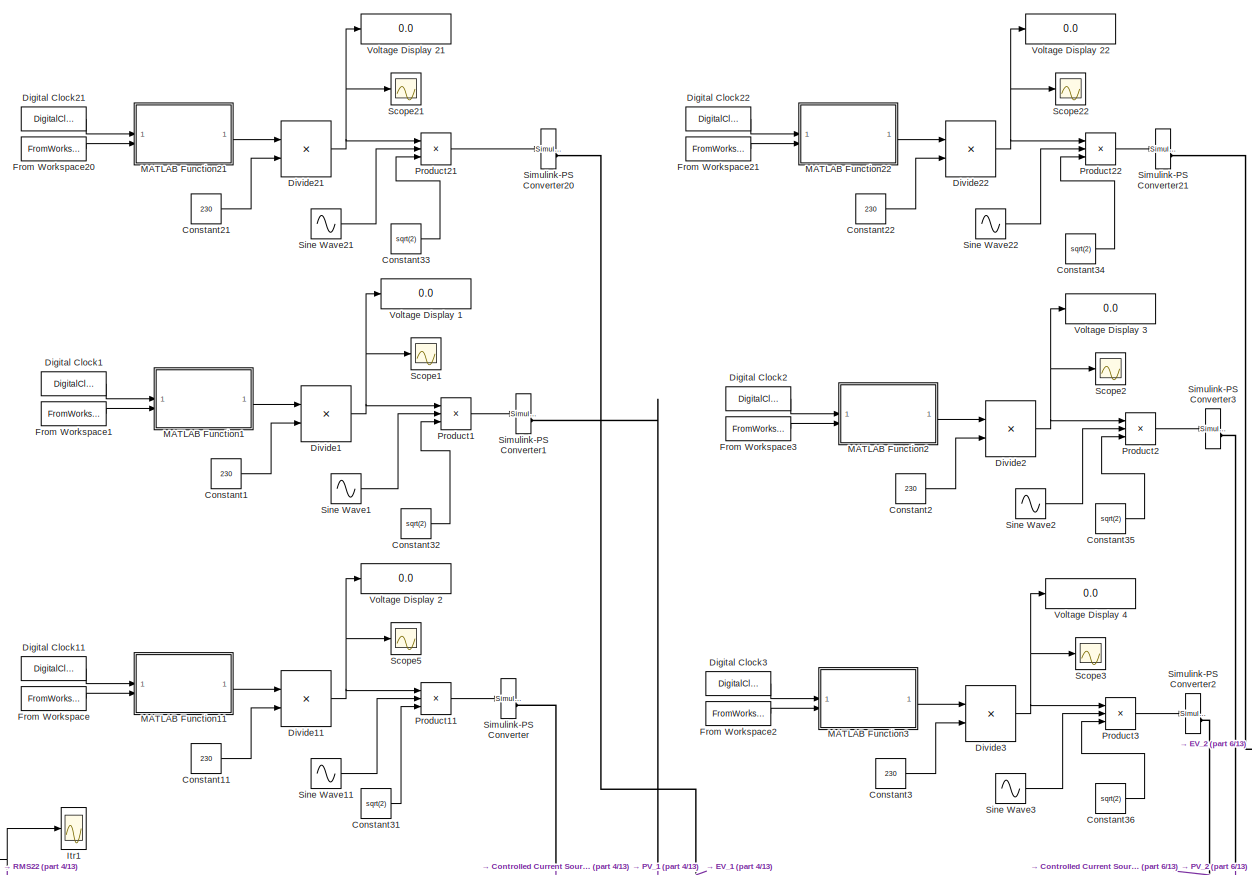
[diagram: root canvas - part 1/13, top center region]
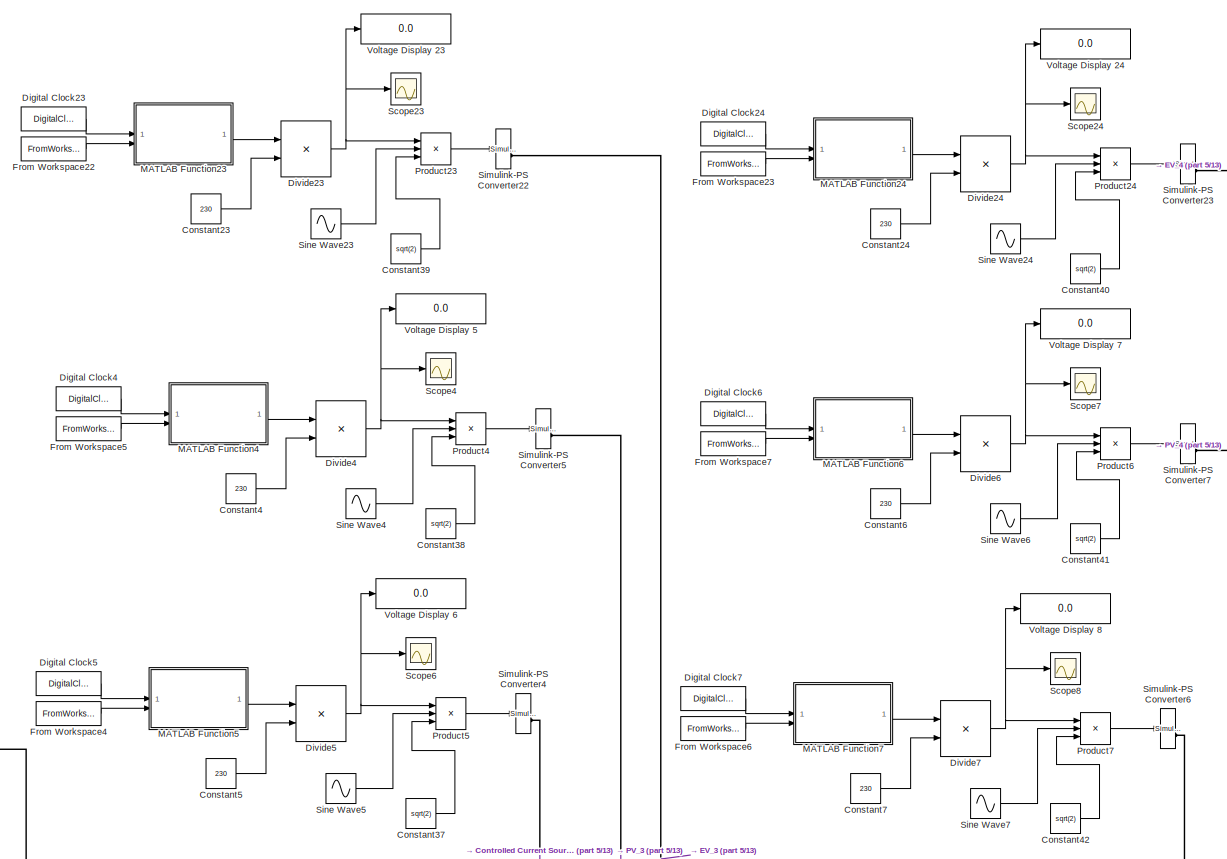
[diagram: root canvas - part 2/13, top center region]
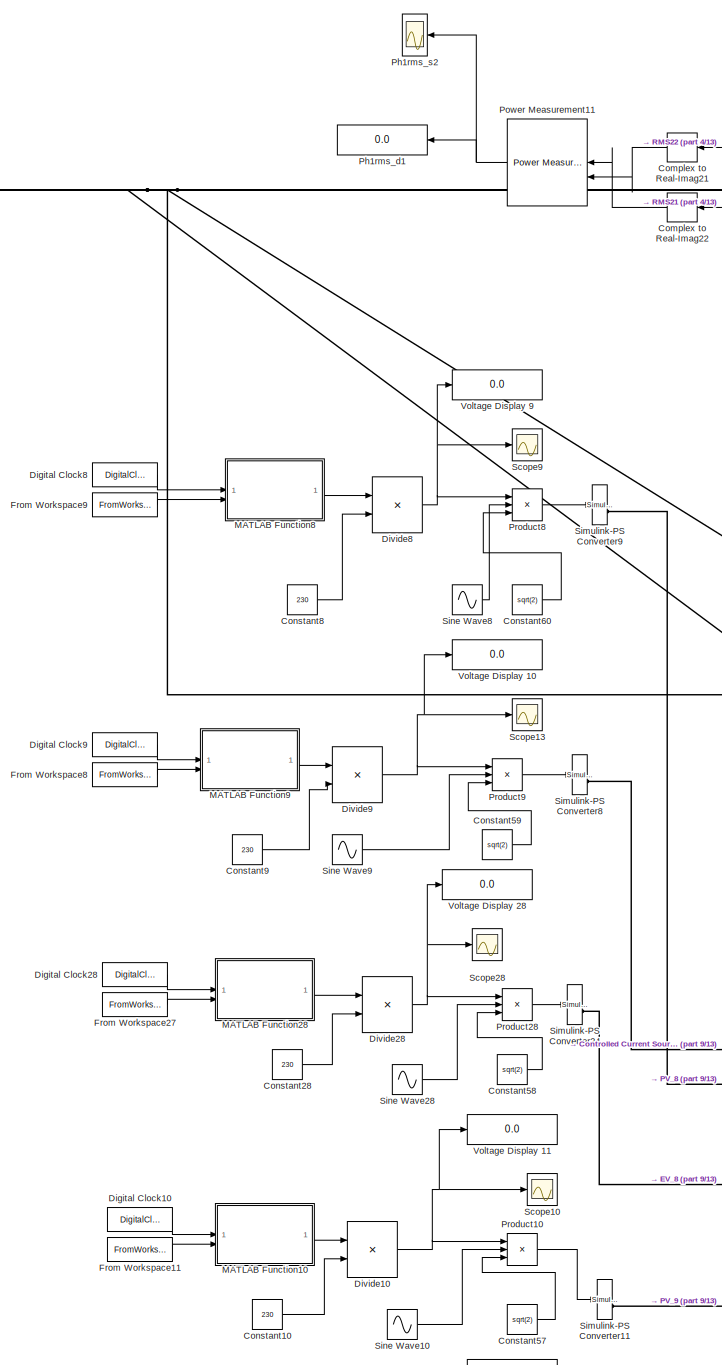
[diagram: root canvas - part 3/13, middle left region]
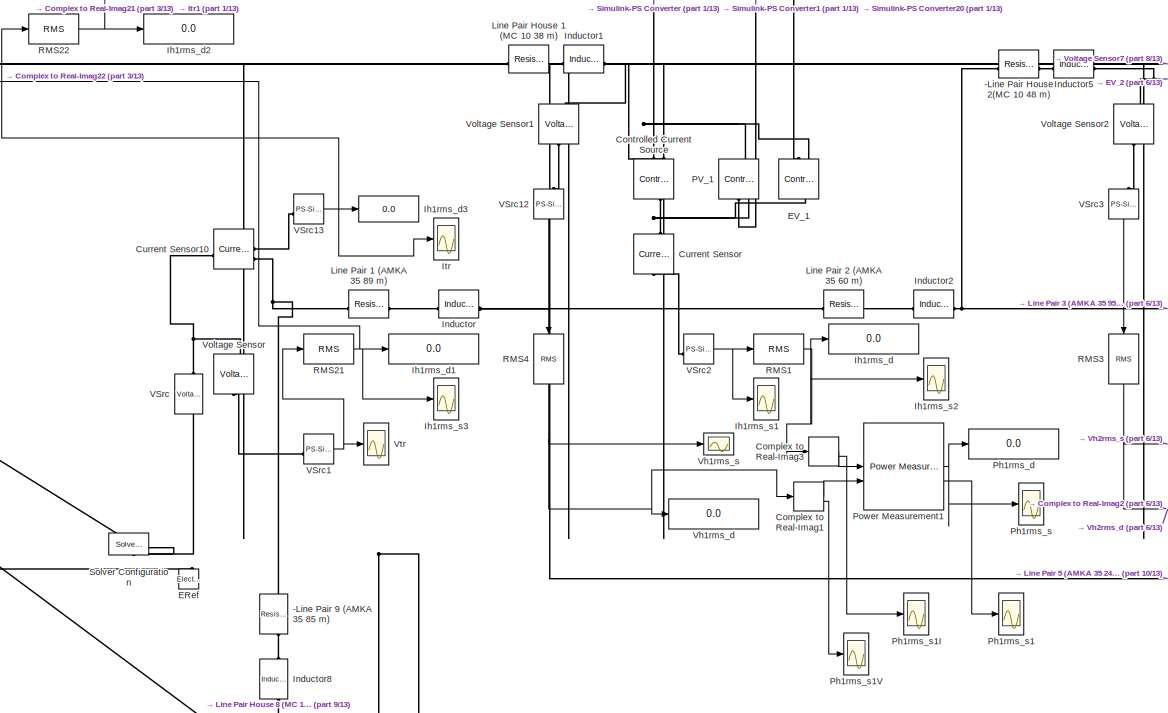
[diagram: root canvas - part 4/13, central region]
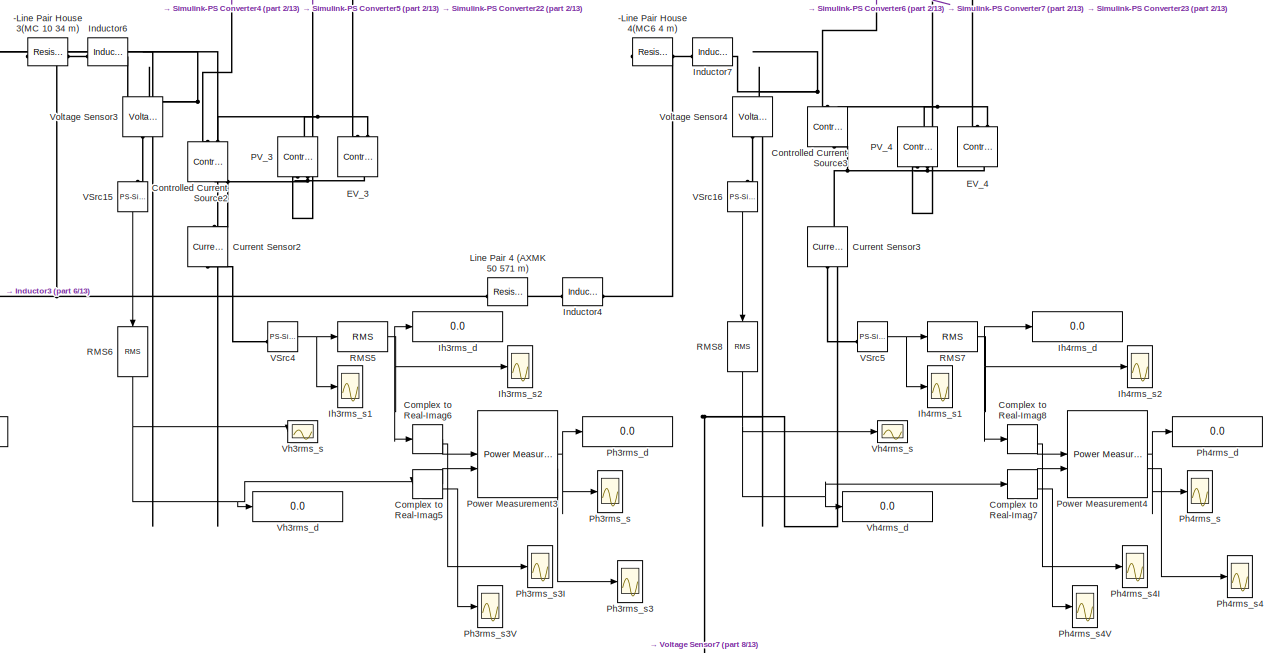
[diagram: root canvas - part 5/13, middle right region]
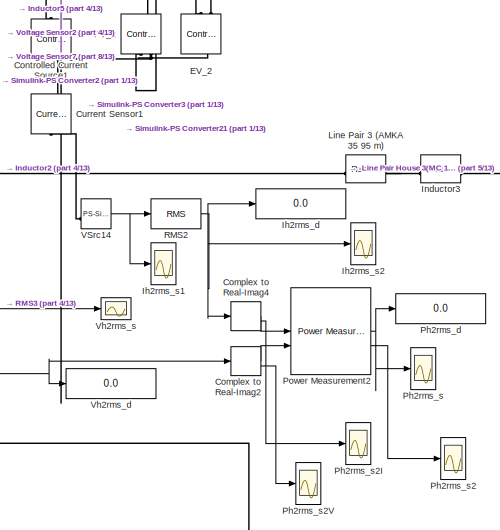
[diagram: root canvas - part 6/13, central region]
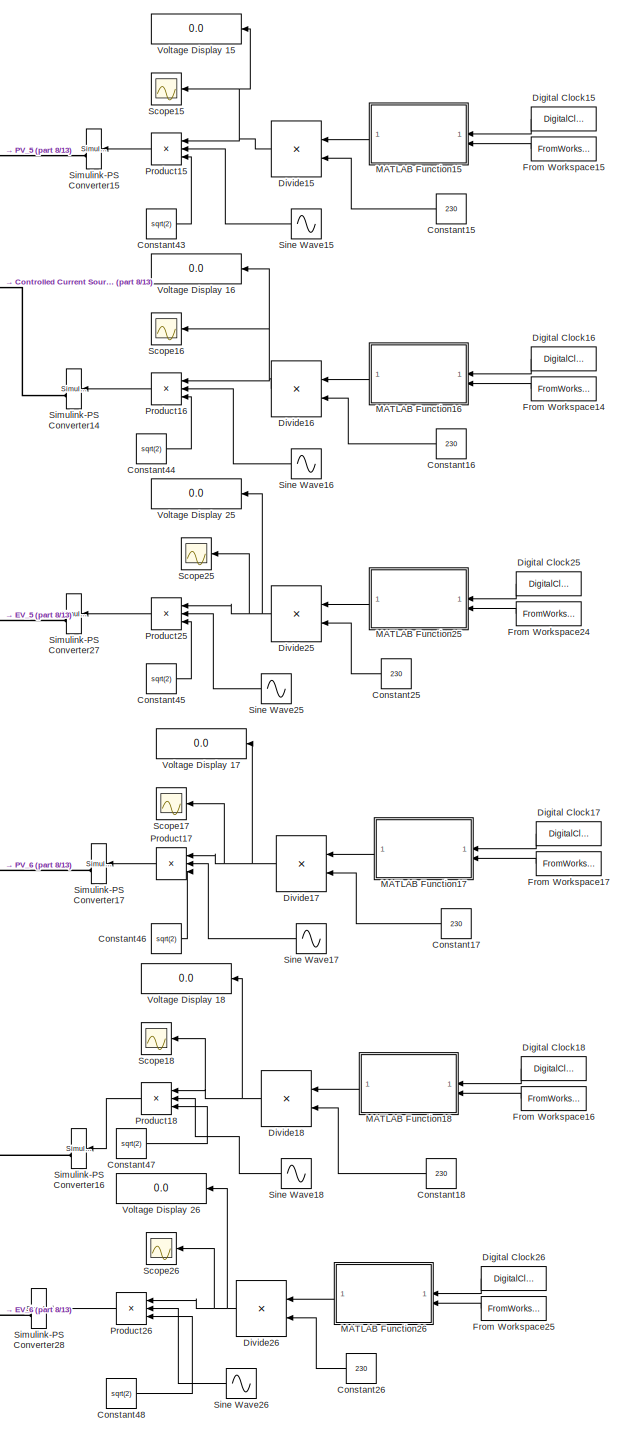
[diagram: root canvas - part 7/13, middle right region]
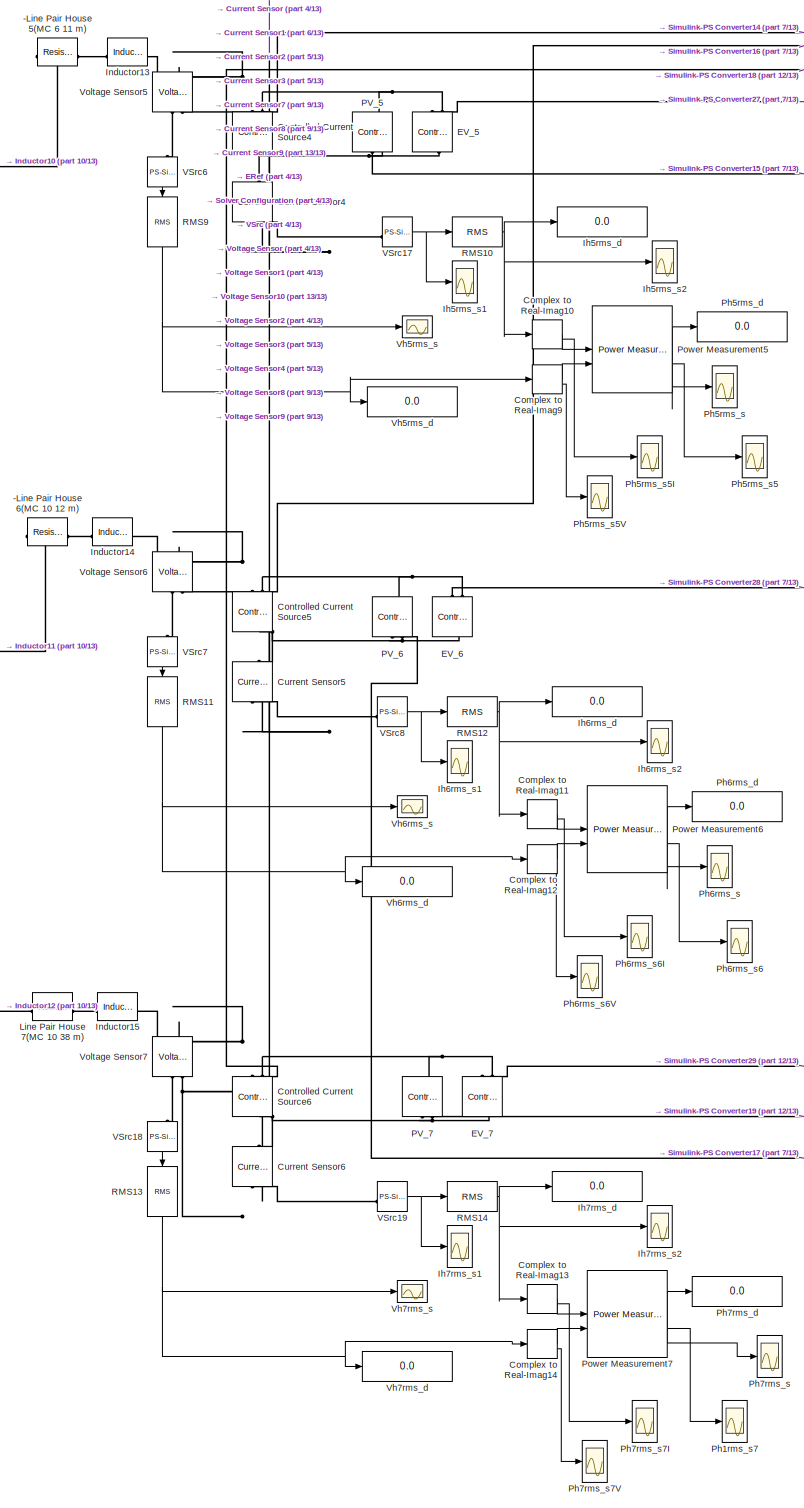
[diagram: root canvas - part 8/13, bottom right region]
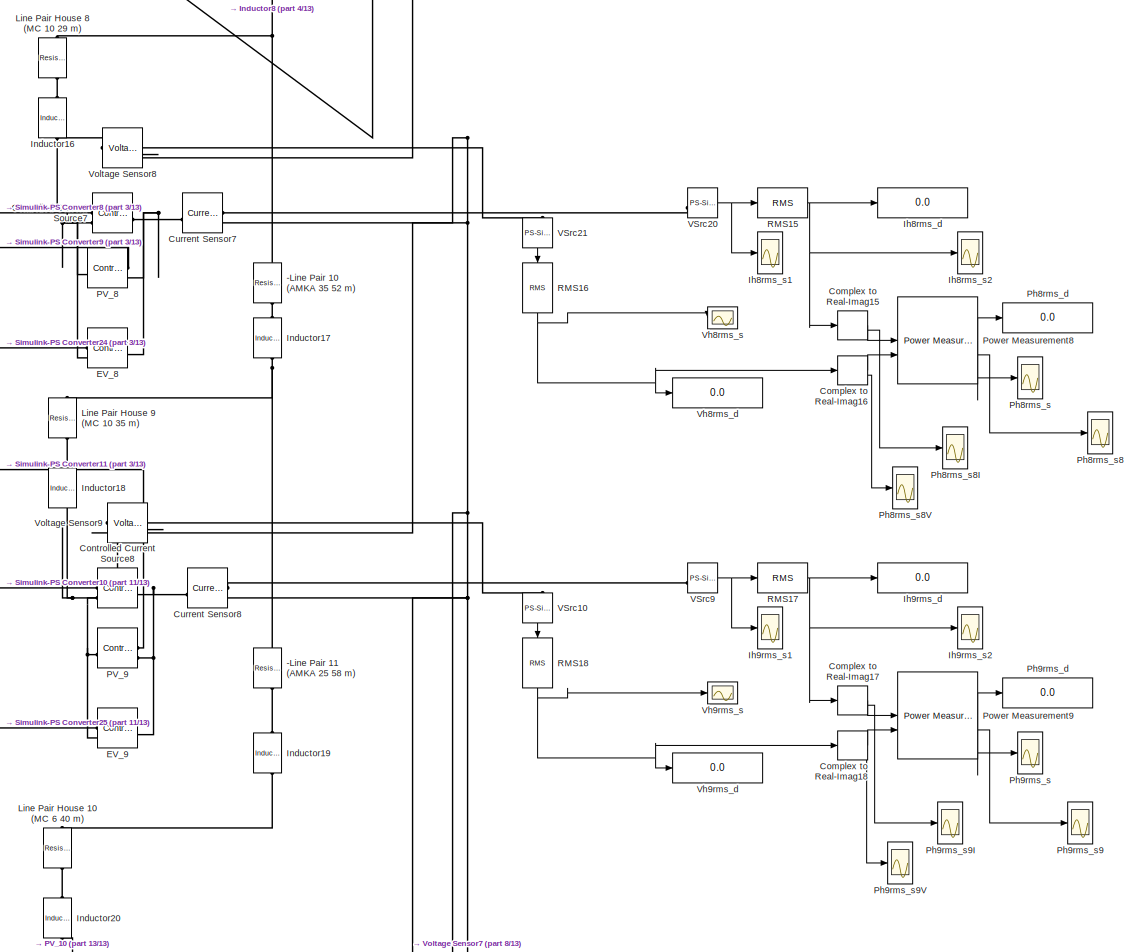
[diagram: root canvas - part 9/13, central region]
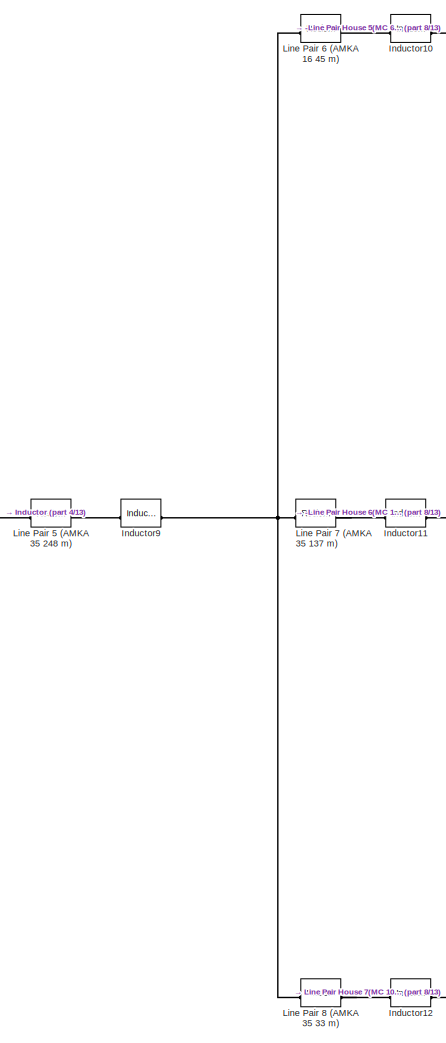
[diagram: root canvas - part 10/13, bottom center region]
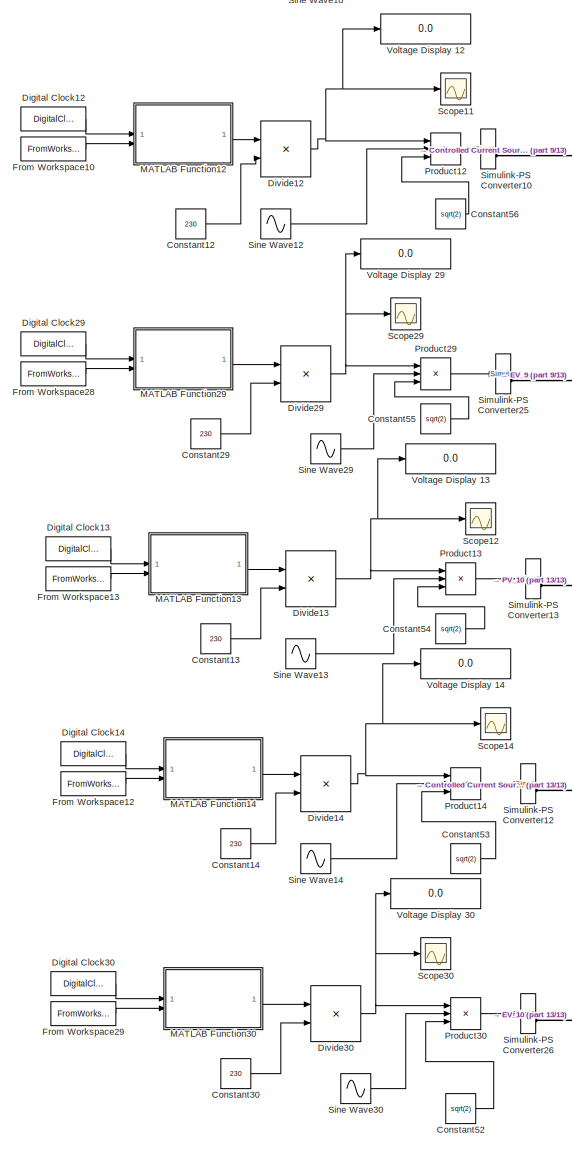
[diagram: root canvas - part 11/13, bottom left region]
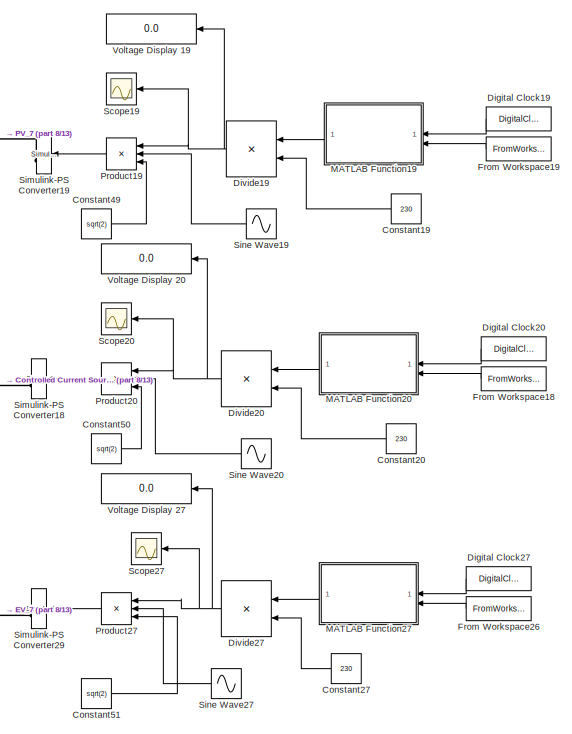
[diagram: root canvas - part 12/13, bottom right region]
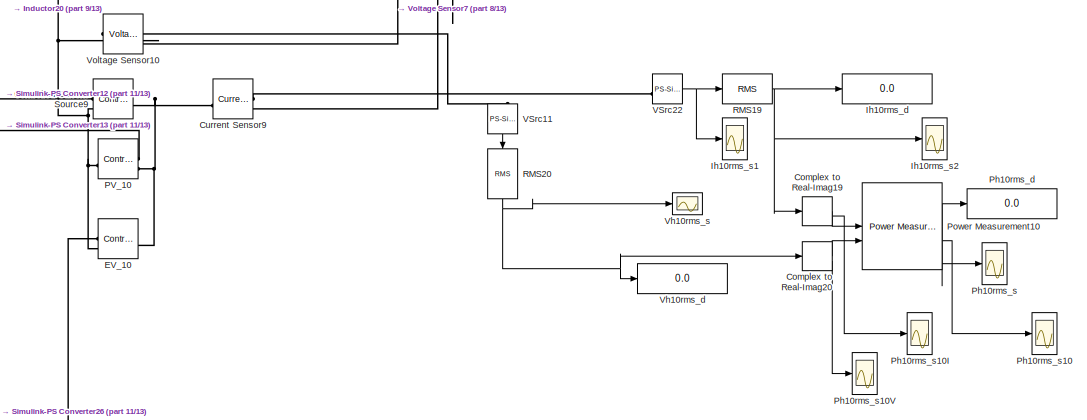
[diagram: root canvas - part 13/13, bottom center region]
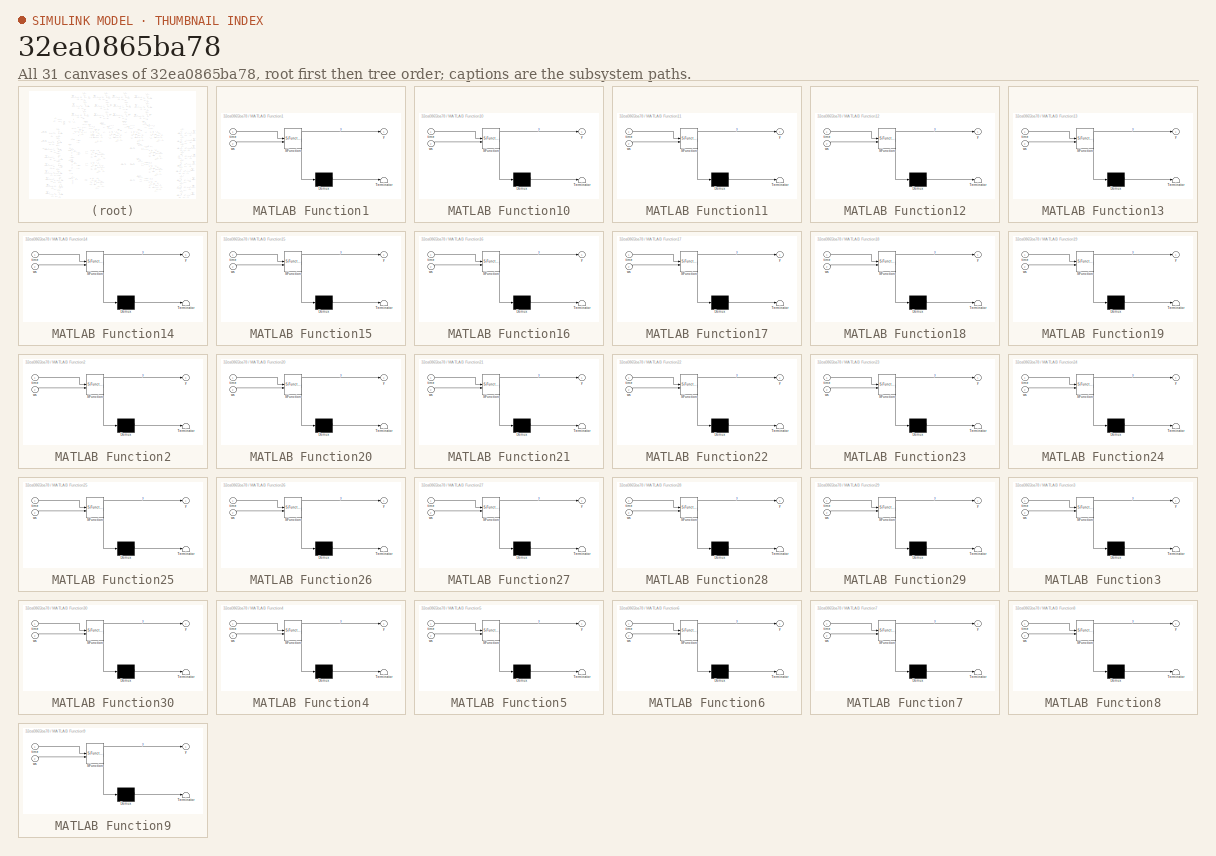
[diagram: thumbnail index - all 31 canvases of the model, root first then tree order]
MODEL slx_32ea0865ba78
KIND model
CONFIG AbsTol = auto
CONFIG EnableMultiTasking = on
CONFIG FixedStep = 1e-3
CONFIG MaxStep = auto
CONFIG MinStep = auto
CONFIG RelTol = 1e-3
CONFIG SampleTimeConstraint = Unconstrained
CONFIG SolverName = VariableStepAuto
CONFIG StartTime = 0.0
CONFIG StopFcn = ee_addSimlogTimeStamp(bdroot)
CONFIG StopTime = 1500
BLOCK [Reference] -Line Pair 10 (AMKA 35 52 m)  REF=fl_lib/Electrical/Electrical Elements/Resistor
  NameLocation = right
  SourceBlock = fl_lib/Electrical/Electrical Elements/Resistor
  SourceType = Resistor
BLOCK [Reference] -Line Pair 11 (AMKA 25 58 m)  REF=fl_lib/Electrical/Electrical Elements/Resistor
  NameLocation = right
  SourceBlock = fl_lib/Electrical/Electrical Elements/Resistor
  SourceType = Resistor
BLOCK [Reference] -Line Pair 9 (AMKA 35 85 m)  REF=fl_lib/Electrical/Electrical Elements/Resistor
  NameLocation = right
  SourceBlock = fl_lib/Electrical/Electrical Elements/Resistor
  SourceType = Resistor
BLOCK [Reference] -Line Pair House 2(MC 10 48 m)  REF=fl_lib/Electrical/Electrical Elements/Resistor
  NameLocation = top
  SourceBlock = fl_lib/Electrical/Electrical Elements/Resistor
  SourceType = Resistor
BLOCK [Reference] -Line Pair House 3(MC 10 34 m)  REF=fl_lib/Electrical/Electrical Elements/Resistor
  NameLocation = top
  SourceBlock = fl_lib/Electrical/Electrical Elements/Resistor
  SourceType = Resistor
BLOCK [Reference] -Line Pair House 4(MC6  4 m)  REF=fl_lib/Electrical/Electrical Elements/Resistor
  NameLocation = top
  SourceBlock = fl_lib/Electrical/Electrical Elements/Resistor
  SourceType = Resistor
BLOCK [Reference] -Line Pair House 5(MC 6 11 m)  REF=fl_lib/Electrical/Electrical Elements/Resistor
  NameLocation = top
  SourceBlock = fl_lib/Electrical/Electrical Elements/Resistor
  SourceType = Resistor
BLOCK [Reference] -Line Pair House 6(MC 10 12 m)  REF=fl_lib/Electrical/Electrical Elements/Resistor
  NameLocation = top
  SourceBlock = fl_lib/Electrical/Electrical Elements/Resistor
  SourceType = Resistor
BLOCK [ComplexToRealImag] Complex to Real-Imag1
BLOCK [ComplexToRealImag] Complex to Real-Imag10
BLOCK [ComplexToRealImag] Complex to Real-Imag11
BLOCK [ComplexToRealImag] Complex to Real-Imag12
BLOCK [ComplexToRealImag] Complex to Real-Imag13
BLOCK [ComplexToRealImag] Complex to Real-Imag14
BLOCK [ComplexToRealImag] Complex to Real-Imag15
BLOCK [ComplexToRealImag] Complex to Real-Imag16
BLOCK [ComplexToRealImag] Complex to Real-Imag17
BLOCK [ComplexToRealImag] Complex to Real-Imag18
BLOCK [ComplexToRealImag] Complex to Real-Imag19
BLOCK [ComplexToRealImag] Complex to Real-Imag2
BLOCK [ComplexToRealImag] Complex to Real-Imag20
BLOCK [ComplexToRealImag] Complex to Real-Imag21
  NameLocation = top
BLOCK [ComplexToRealImag] Complex to Real-Imag22
  NameLocation = top
BLOCK [ComplexToRealImag] Complex to Real-Imag3
BLOCK [ComplexToRealImag] Complex to Real-Imag4
BLOCK [ComplexToRealImag] Complex to Real-Imag5
BLOCK [ComplexToRealImag] Complex to Real-Imag6
BLOCK [ComplexToRealImag] Complex to Real-Imag7
BLOCK [ComplexToRealImag] Complex to Real-Imag8
BLOCK [ComplexToRealImag] Complex to Real-Imag9
BLOCK [Constant] Constant1
  Value = 230
BLOCK [Constant] Constant10
  Value = 230
BLOCK [Constant] Constant11
  Value = 230
BLOCK [Constant] Constant12
  Value = 230
BLOCK [Constant] Constant13
  Value = 230
BLOCK [Constant] Constant14
  Value = 230
BLOCK [Constant] Constant15
  Value = 230
BLOCK [Constant] Constant16
  Value = 230
BLOCK [Constant] Constant17
  Value = 230
BLOCK [Constant] Constant18
  Value = 230
BLOCK [Constant] Constant19
  Value = 230
BLOCK [Constant] Constant2
  Value = 230
BLOCK [Constant] Constant20
  Value = 230
BLOCK [Constant] Constant21
  Value = 230
BLOCK [Constant] Constant22
  Value = 230
BLOCK [Constant] Constant23
  Value = 230
BLOCK [Constant] Constant24
  Value = 230
BLOCK [Constant] Constant25
  Value = 230
BLOCK [Constant] Constant26
  Value = 230
BLOCK [Constant] Constant27
  Value = 230
BLOCK [Constant] Constant28
  Value = 230
BLOCK [Constant] Constant29
  Value = 230
BLOCK [Constant] Constant3
  Value = 230
BLOCK [Constant] Constant30
  Value = 230
BLOCK [Constant] Constant31
  Value = sqrt(2)
BLOCK [Constant] Constant32
  Value = sqrt(2)
BLOCK [Constant] Constant33
  Value = sqrt(2)
BLOCK [Constant] Constant34
  Value = sqrt(2)
BLOCK [Constant] Constant35
  Value = sqrt(2)
BLOCK [Constant] Constant36
  Value = sqrt(2)
BLOCK [Constant] Constant37
  Value = sqrt(2)
BLOCK [Constant] Constant38
  Value = sqrt(2)
BLOCK [Constant] Constant39
  Value = sqrt(2)
BLOCK [Constant] Constant4
  Value = 230
BLOCK [Constant] Constant40
  Value = sqrt(2)
BLOCK [Constant] Constant41
  Value = sqrt(2)
BLOCK [Constant] Constant42
  Value = sqrt(2)
BLOCK [Constant] Constant43
  Value = sqrt(2)
BLOCK [Constant] Constant44
  Value = sqrt(2)
BLOCK [Constant] Constant45
  Value = sqrt(2)
BLOCK [Constant] Constant46
  Value = sqrt(2)
BLOCK [Constant] Constant47
  Value = sqrt(2)
BLOCK [Constant] Constant48
  Value = sqrt(2)
BLOCK [Constant] Constant49
  Value = sqrt(2)
BLOCK [Constant] Constant5
  Value = 230
BLOCK [Constant] Constant50
  Value = sqrt(2)
BLOCK [Constant] Constant51
  Value = sqrt(2)
BLOCK [Constant] Constant52
  Value = sqrt(2)
BLOCK [Constant] Constant53
  Value = sqrt(2)
BLOCK [Constant] Constant54
  Value = sqrt(2)
BLOCK [Constant] Constant55
  Value = sqrt(2)
BLOCK [Constant] Constant56
  Value = sqrt(2)
BLOCK [Constant] Constant57
  Value = sqrt(2)
BLOCK [Constant] Constant58
  Value = sqrt(2)
BLOCK [Constant] Constant59
  Value = sqrt(2)
BLOCK [Constant] Constant6
  Value = 230
BLOCK [Constant] Constant60
  Value = sqrt(2)
BLOCK [Constant] Constant7
  Value = 230
BLOCK [Constant] Constant8
  Value = 230
BLOCK [Constant] Constant9
  Value = 230
BLOCK [Reference] Controlled Current Source  REF=fl_lib/Electrical/Electrical Sources/Controlled Current
Source
  NameLocation = left
  SourceBlock = fl_lib/Electrical/Electrical Sources/Controlled Current\nSource
  SourceType = Controlled Current\nSource
BLOCK [Reference] Controlled Current Source1  REF=fl_lib/Electrical/Electrical Sources/Controlled Current
Source
  NameLocation = left
  SourceBlock = fl_lib/Electrical/Electrical Sources/Controlled Current\nSource
  SourceType = Controlled Current\nSource
BLOCK [Reference] Controlled Current Source2  REF=fl_lib/Electrical/Electrical Sources/Controlled Current
Source
  NameLocation = left
  SourceBlock = fl_lib/Electrical/Electrical Sources/Controlled Current\nSource
  SourceType = Controlled Current\nSource
BLOCK [Reference] Controlled Current Source3  REF=fl_lib/Electrical/Electrical Sources/Controlled Current
Source
  NameLocation = left
  SourceBlock = fl_lib/Electrical/Electrical Sources/Controlled Current\nSource
  SourceType = Controlled Current\nSource
BLOCK [Reference] Controlled Current Source4  REF=fl_lib/Electrical/Electrical Sources/Controlled Current
Source
  NameLocation = left
  SourceBlock = fl_lib/Electrical/Electrical Sources/Controlled Current\nSource
  SourceType = Controlled Current\nSource
BLOCK [Reference] Controlled Current Source5  REF=fl_lib/Electrical/Electrical Sources/Controlled Current
Source
  NameLocation = left
  SourceBlock = fl_lib/Electrical/Electrical Sources/Controlled Current\nSource
  SourceType = Controlled Current\nSource
BLOCK [Reference] Controlled Current Source6  REF=fl_lib/Electrical/Electrical Sources/Controlled Current
Source
  NameLocation = left
  SourceBlock = fl_lib/Electrical/Electrical Sources/Controlled Current\nSource
  SourceType = Controlled Current\nSource
BLOCK [Reference] Controlled Current Source7  REF=fl_lib/Electrical/Electrical Sources/Controlled Current
Source
  SourceBlock = fl_lib/Electrical/Electrical Sources/Controlled Current\nSource
  SourceType = Controlled Current\nSource
BLOCK [Reference] Controlled Current Source8  REF=fl_lib/Electrical/Electrical Sources/Controlled Current
Source
  SourceBlock = fl_lib/Electrical/Electrical Sources/Controlled Current\nSource
  SourceType = Controlled Current\nSource
BLOCK [Reference] Controlled Current Source9  REF=fl_lib/Electrical/Electrical Sources/Controlled Current
Source
  SourceBlock = fl_lib/Electrical/Electrical Sources/Controlled Current\nSource
  SourceType = Controlled Current\nSource
BLOCK [Reference] Current Sensor  REF=fl_lib/Electrical/Electrical Sensors/Current Sensor
  NameLocation = left
  SourceBlock = fl_lib/Electrical/Electrical Sensors/Current Sensor
  SourceType = Current Sensor
BLOCK [Reference] Current Sensor1  REF=fl_lib/Electrical/Electrical Sensors/Current Sensor
  NameLocation = left
  SourceBlock = fl_lib/Electrical/Electrical Sensors/Current Sensor
  SourceType = Current Sensor
BLOCK [Reference] Current Sensor10  REF=fl_lib/Electrical/Electrical Sensors/Current Sensor
  SourceBlock = fl_lib/Electrical/Electrical Sensors/Current Sensor
  SourceType = Current Sensor
BLOCK [Reference] Current Sensor2  REF=fl_lib/Electrical/Electrical Sensors/Current Sensor
  NameLocation = left
  SourceBlock = fl_lib/Electrical/Electrical Sensors/Current Sensor
  SourceType = Current Sensor
BLOCK [Reference] Current Sensor3  REF=fl_lib/Electrical/Electrical Sensors/Current Sensor
  NameLocation = left
  SourceBlock = fl_lib/Electrical/Electrical Sensors/Current Sensor
  SourceType = Current Sensor
BLOCK [Reference] Current Sensor4  REF=fl_lib/Electrical/Electrical Sensors/Current Sensor
  NameLocation = left
  SourceBlock = fl_lib/Electrical/Electrical Sensors/Current Sensor
  SourceType = Current Sensor
BLOCK [Reference] Current Sensor5  REF=fl_lib/Electrical/Electrical Sensors/Current Sensor
  NameLocation = left
  SourceBlock = fl_lib/Electrical/Electrical Sensors/Current Sensor
  SourceType = Current Sensor
BLOCK [Reference] Current Sensor6  REF=fl_lib/Electrical/Electrical Sensors/Current Sensor
  NameLocation = left
  SourceBlock = fl_lib/Electrical/Electrical Sensors/Current Sensor
  SourceType = Current Sensor
BLOCK [Reference] Current Sensor7  REF=fl_lib/Electrical/Electrical Sensors/Current Sensor
  SourceBlock = fl_lib/Electrical/Electrical Sensors/Current Sensor
  SourceType = Current Sensor
BLOCK [Reference] Current Sensor8  REF=fl_lib/Electrical/Electrical Sensors/Current Sensor
  SourceBlock = fl_lib/Electrical/Electrical Sensors/Current Sensor
  SourceType = Current Sensor
BLOCK [Reference] Current Sensor9  REF=fl_lib/Electrical/Electrical Sensors/Current Sensor
  SourceBlock = fl_lib/Electrical/Electrical Sensors/Current Sensor
  SourceType = Current Sensor
BLOCK [DigitalClock] Digital Clock1
BLOCK [DigitalClock] Digital Clock10
BLOCK [DigitalClock] Digital Clock11
BLOCK [DigitalClock] Digital Clock12
BLOCK [DigitalClock] Digital Clock13
BLOCK [DigitalClock] Digital Clock14
BLOCK [DigitalClock] Digital Clock15
BLOCK [DigitalClock] Digital Clock16
BLOCK [DigitalClock] Digital Clock17
BLOCK [DigitalClock] Digital Clock18
BLOCK [DigitalClock] Digital Clock19
BLOCK [DigitalClock] Digital Clock2
BLOCK [DigitalClock] Digital Clock20
BLOCK [DigitalClock] Digital Clock21
BLOCK [DigitalClock] Digital Clock22
BLOCK [DigitalClock] Digital Clock23
BLOCK [DigitalClock] Digital Clock24
BLOCK [DigitalClock] Digital Clock25
BLOCK [DigitalClock] Digital Clock26
BLOCK [DigitalClock] Digital Clock27
BLOCK [DigitalClock] Digital Clock28
BLOCK [DigitalClock] Digital Clock29
BLOCK [DigitalClock] Digital Clock3
BLOCK [DigitalClock] Digital Clock30
BLOCK [DigitalClock] Digital Clock4
BLOCK [DigitalClock] Digital Clock5
BLOCK [DigitalClock] Digital Clock6
BLOCK [DigitalClock] Digital Clock7
BLOCK [DigitalClock] Digital Clock8
BLOCK [DigitalClock] Digital Clock9
BLOCK [Product] Divide1
  Inputs = */
BLOCK [Product] Divide10
  Inputs = */
BLOCK [Product] Divide11
  Inputs = */
BLOCK [Product] Divide12
  Inputs = */
BLOCK [Product] Divide13
  Inputs = */
BLOCK [Product] Divide14
  Inputs = */
BLOCK [Product] Divide15
  Inputs = */
BLOCK [Product] Divide16
  Inputs = */
BLOCK [Product] Divide17
  Inputs = */
BLOCK [Product] Divide18
  Inputs = */
BLOCK [Product] Divide19
  Inputs = */
BLOCK [Product] Divide2
  Inputs = */
BLOCK [Product] Divide20
  Inputs = */
BLOCK [Product] Divide21
  Inputs = */
BLOCK [Product] Divide22
  Inputs = */
BLOCK [Product] Divide23
  Inputs = */
BLOCK [Product] Divide24
  Inputs = */
BLOCK [Product] Divide25
  Inputs = */
BLOCK [Product] Divide26
  Inputs = */
BLOCK [Product] Divide27
  Inputs = */
BLOCK [Product] Divide28
  Inputs = */
BLOCK [Product] Divide29
  Inputs = */
BLOCK [Product] Divide3
  Inputs = */
BLOCK [Product] Divide30
  Inputs = */
BLOCK [Product] Divide4
  Inputs = */
BLOCK [Product] Divide5
  Inputs = */
BLOCK [Product] Divide6
  Inputs = */
BLOCK [Product] Divide7
  Inputs = */
BLOCK [Product] Divide8
  Inputs = */
BLOCK [Product] Divide9
  Inputs = */
BLOCK [Reference] ERef  REF=fl_lib/Electrical/Electrical Elements/Electrical Reference
  NameLocation = left
  SourceBlock = fl_lib/Electrical/Electrical Elements/Electrical Reference
  SourceType = Electrical Reference
BLOCK [Reference] EV_1  REF=fl_lib/Electrical/Electrical Sources/Controlled Current
Source
  NameLocation = right
  SourceBlock = fl_lib/Electrical/Electrical Sources/Controlled Current\nSource
  SourceType = Controlled Current\nSource
BLOCK [Reference] EV_10  REF=fl_lib/Electrical/Electrical Sources/Controlled Current
Source
  NameLocation = top
  SourceBlock = fl_lib/Electrical/Electrical Sources/Controlled Current\nSource
  SourceType = Controlled Current\nSource
BLOCK [Reference] EV_2  REF=fl_lib/Electrical/Electrical Sources/Controlled Current
Source
  NameLocation = right
  SourceBlock = fl_lib/Electrical/Electrical Sources/Controlled Current\nSource
  SourceType = Controlled Current\nSource
BLOCK [Reference] EV_3  REF=fl_lib/Electrical/Electrical Sources/Controlled Current
Source
  NameLocation = right
  SourceBlock = fl_lib/Electrical/Electrical Sources/Controlled Current\nSource
  SourceType = Controlled Current\nSource
BLOCK [Reference] EV_4  REF=fl_lib/Electrical/Electrical Sources/Controlled Current
Source
  NameLocation = right
  SourceBlock = fl_lib/Electrical/Electrical Sources/Controlled Current\nSource
  SourceType = Controlled Current\nSource
BLOCK [Reference] EV_5  REF=fl_lib/Electrical/Electrical Sources/Controlled Current
Source
  NameLocation = right
  SourceBlock = fl_lib/Electrical/Electrical Sources/Controlled Current\nSource
  SourceType = Controlled Current\nSource
BLOCK [Reference] EV_6  REF=fl_lib/Electrical/Electrical Sources/Controlled Current
Source
  NameLocation = right
  SourceBlock = fl_lib/Electrical/Electrical Sources/Controlled Current\nSource
  SourceType = Controlled Current\nSource
BLOCK [Reference] EV_7  REF=fl_lib/Electrical/Electrical Sources/Controlled Current
Source
  NameLocation = right
  SourceBlock = fl_lib/Electrical/Electrical Sources/Controlled Current\nSource
  SourceType = Controlled Current\nSource
BLOCK [Reference] EV_8  REF=fl_lib/Electrical/Electrical Sources/Controlled Current
Source
  NameLocation = top
  SourceBlock = fl_lib/Electrical/Electrical Sources/Controlled Current\nSource
  SourceType = Controlled Current\nSource
BLOCK [Reference] EV_9  REF=fl_lib/Electrical/Electrical Sources/Controlled Current
Source
  NameLocation = top
  SourceBlock = fl_lib/Electrical/Electrical Sources/Controlled Current\nSource
  SourceType = Controlled Current\nSource
BLOCK [FromWorkspace] From Workspace
  Interpolate = off
  OutDataTypeStr = double
  OutputAfterFinalValue = Holding final value
  VariableName = house1_load_array
BLOCK [FromWorkspace] From Workspace1
  Interpolate = off
  OutDataTypeStr = double
  OutputAfterFinalValue = Holding final value
  VariableName = house1_pv_array
BLOCK [FromWorkspace] From Workspace10
  Interpolate = off
  OutDataTypeStr = double
  OutputAfterFinalValue = Holding final value
  VariableName = house9_load_array
BLOCK [FromWorkspace] From Workspace11
  Interpolate = off
  OutDataTypeStr = double
  OutputAfterFinalValue = Holding final value
  VariableName = house9_pv_array
BLOCK [FromWorkspace] From Workspace12
  Interpolate = off
  OutDataTypeStr = double
  OutputAfterFinalValue = Holding final value
  VariableName = house10_load_array
BLOCK [FromWorkspace] From Workspace13
  Interpolate = off
  OutDataTypeStr = double
  OutputAfterFinalValue = Holding final value
  VariableName = house10_pv_array
BLOCK [FromWorkspace] From Workspace14
  Interpolate = off
  OutDataTypeStr = double
  OutputAfterFinalValue = Holding final value
  VariableName = house5_load_array
BLOCK [FromWorkspace] From Workspace15
  Interpolate = off
  OutDataTypeStr = double
  OutputAfterFinalValue = Holding final value
  VariableName = house5_pv_array
BLOCK [FromWorkspace] From Workspace16
  Interpolate = off
  OutDataTypeStr = double
  OutputAfterFinalValue = Holding final value
  VariableName = house6_load_array
BLOCK [FromWorkspace] From Workspace17
  Interpolate = off
  OutDataTypeStr = double
  OutputAfterFinalValue = Holding final value
  VariableName = house6_pv_array
BLOCK [FromWorkspace] From Workspace18
  Interpolate = off
  OutDataTypeStr = double
  OutputAfterFinalValue = Holding final value
  VariableName = house7_load_array
BLOCK [FromWorkspace] From Workspace19
  Interpolate = off
  OutDataTypeStr = double
  OutputAfterFinalValue = Holding final value
  VariableName = house7_pv_array
BLOCK [FromWorkspace] From Workspace2
  Interpolate = off
  OutDataTypeStr = double
  OutputAfterFinalValue = Holding final value
  VariableName = house2_load_array
BLOCK [FromWorkspace] From Workspace20
  Interpolate = off
  OutDataTypeStr = double
  OutputAfterFinalValue = Holding final value
  VariableName = house1_ev_array
BLOCK [FromWorkspace] From Workspace21
  Interpolate = off
  OutDataTypeStr = double
  OutputAfterFinalValue = Holding final value
  VariableName = house2_ev_array
BLOCK [FromWorkspace] From Workspace22
  Interpolate = off
  OutDataTypeStr = double
  OutputAfterFinalValue = Holding final value
  VariableName = house3_ev_array
BLOCK [FromWorkspace] From Workspace23
  Interpolate = off
  OutDataTypeStr = double
  OutputAfterFinalValue = Holding final value
  VariableName = house4_ev_array
BLOCK [FromWorkspace] From Workspace24
  Interpolate = off
  OutDataTypeStr = double
  OutputAfterFinalValue = Holding final value
  VariableName = house5_ev_array
BLOCK [FromWorkspace] From Workspace25
  Interpolate = off
  OutDataTypeStr = double
  OutputAfterFinalValue = Holding final value
  VariableName = house6_ev_array
BLOCK [FromWorkspace] From Workspace26
  Interpolate = off
  OutDataTypeStr = double
  OutputAfterFinalValue = Holding final value
  VariableName = house7_ev_array
BLOCK [FromWorkspace] From Workspace27
  Interpolate = off
  OutDataTypeStr = double
  OutputAfterFinalValue = Holding final value
  VariableName = house8_ev_array
BLOCK [FromWorkspace] From Workspace28
  Interpolate = off
  OutDataTypeStr = double
  OutputAfterFinalValue = Holding final value
  VariableName = house9_ev_array
BLOCK [FromWorkspace] From Workspace29
  Interpolate = off
  OutDataTypeStr = double
  OutputAfterFinalValue = Holding final value
  VariableName = house10_ev_array
BLOCK [FromWorkspace] From Workspace3
  Interpolate = off
  OutDataTypeStr = double
  OutputAfterFinalValue = Holding final value
  VariableName = house2_pv_array
BLOCK [FromWorkspace] From Workspace4
  Interpolate = off
  OutDataTypeStr = double
  OutputAfterFinalValue = Holding final value
  VariableName = house3_load_array
BLOCK [FromWorkspace] From Workspace5
  Interpolate = off
  OutDataTypeStr = double
  OutputAfterFinalValue = Holding final value
  VariableName = house3_pv_array
BLOCK [FromWorkspace] From Workspace6
  Interpolate = off
  OutDataTypeStr = double
  OutputAfterFinalValue = Holding final value
  VariableName = house4_load_array
BLOCK [FromWorkspace] From Workspace7
  Interpolate = off
  OutDataTypeStr = double
  OutputAfterFinalValue = Holding final value
  VariableName = house4_pv_array
BLOCK [FromWorkspace] From Workspace8
  Interpolate = off
  OutDataTypeStr = double
  OutputAfterFinalValue = Holding final value
  VariableName = house8_load_array
BLOCK [FromWorkspace] From Workspace9
  Interpolate = off
  OutDataTypeStr = double
  OutputAfterFinalValue = Holding final value
  VariableName = house8_pv_array
BLOCK [Display] Ih10rms_d
  Decimation = 1
BLOCK [Scope] Ih10rms_s1
  Floating = off
  NumInputPorts = 1
  ScopeSpecificationString = Simulink.scopes.TimeScopeBlockCfg('CurrentConfiguration', extmgr.ConfigurationSet(extmgr.Configuration('Core','General UI',true),extmgr.Configuration('Core','Source UI',true),extmgr.Configuration('Sources','WiredSimulink',true,'DataLoggingSaveFormat','StructureWithTime','DataLoggingDecimation','1','DataLoggingDecimateData',true,'DataLoggingVariableName','ScopeData33'),extmgr.Configuration('Visuals...<+1591ch>
BLOCK [Scope] Ih10rms_s2
  Floating = off
  NumInputPorts = 1
  ScopeSpecificationString = Simulink.scopes.TimeScopeBlockCfg('CurrentConfiguration', extmgr.ConfigurationSet(extmgr.Configuration('Core','General UI',true),extmgr.Configuration('Core','Source UI',true),extmgr.Configuration('Sources','WiredSimulink',true,'DataLoggingSaveFormat','StructureWithTime','DataLoggingDecimation','1','DataLoggingDecimateData',true,'DataLoggingVariableName','ScopeData34'),extmgr.Configuration('Visuals...<+1585ch>
BLOCK [Display] Ih1rms_d
  Decimation = 1
BLOCK [Display] Ih1rms_d1
  Decimation = 1
BLOCK [Display] Ih1rms_d2
  Decimation = 1
BLOCK [Display] Ih1rms_d3
  Decimation = 1
BLOCK [Scope] Ih1rms_s1
  Floating = off
  NumInputPorts = 1
  ScopeSpecificationString = Simulink.scopes.TimeScopeBlockCfg('CurrentConfiguration', extmgr.ConfigurationSet(extmgr.Configuration('Core','General UI',true),extmgr.Configuration('Core','Source UI',true),extmgr.Configuration('Sources','WiredSimulink',true,'DataLoggingSaveFormat','StructureWithTime','DataLoggingDecimation','1','DataLoggingDecimateData',true,'DataLoggingVariableName','ScopeData6'),extmgr.Configuration('Visuals'...<+1587ch>
BLOCK [Scope] Ih1rms_s2
  Floating = off
  NumInputPorts = 1
  ScopeSpecificationString = Simulink.scopes.TimeScopeBlockCfg('CurrentConfiguration', extmgr.ConfigurationSet(extmgr.Configuration('Core','General UI',true),extmgr.Configuration('Core','Source UI',true),extmgr.Configuration('Sources','WiredSimulink',true,'DataLoggingSaveFormat','StructureWithTime','DataLoggingDecimation','1','DataLoggingDecimateData',true,'DataLoggingVariableName','ScopeData4'),extmgr.Configuration('Visuals'...<+1589ch>
BLOCK [Scope] Ih1rms_s3
  Floating = off
  NumInputPorts = 1
  ScopeSpecificationString = Simulink.scopes.TimeScopeBlockCfg('CurrentConfiguration', extmgr.ConfigurationSet(extmgr.Configuration('Core','General UI',true),extmgr.Configuration('Core','Source UI',true),extmgr.Configuration('Sources','WiredSimulink',true,'DataLoggingSaveFormat','StructureWithTime','DataLoggingDecimation','1','DataLoggingDecimateData',true,'DataLoggingVariableName','ScopeData3'),extmgr.Configuration('Visuals'...<+1596ch>
BLOCK [Display] Ih2rms_d
  Decimation = 1
BLOCK [Scope] Ih2rms_s1
  Floating = off
  NumInputPorts = 1
  ScopeSpecificationString = Simulink.scopes.TimeScopeBlockCfg('CurrentConfiguration', extmgr.ConfigurationSet(extmgr.Configuration('Core','General UI',true),extmgr.Configuration('Core','Source UI',true),extmgr.Configuration('Sources','WiredSimulink',true,'DataLoggingSaveFormat','StructureWithTime','DataLoggingDecimation','1','DataLoggingDecimateData',true,'DataLoggingVariableName','ScopeData2'),extmgr.Configuration('Visuals'...<+1590ch>
BLOCK [Scope] Ih2rms_s2
  Floating = off
  NumInputPorts = 1
  ScopeSpecificationString = Simulink.scopes.TimeScopeBlockCfg('CurrentConfiguration', extmgr.ConfigurationSet(extmgr.Configuration('Core','General UI',true),extmgr.Configuration('Core','Source UI',true),extmgr.Configuration('Sources','WiredSimulink',true,'DataLoggingSaveFormat','StructureWithTime','DataLoggingDecimation','1','DataLoggingDecimateData',true,'DataLoggingVariableName','ScopeData1'),extmgr.Configuration('Visuals'...<+1592ch>
BLOCK [Display] Ih3rms_d
  Decimation = 1
BLOCK [Scope] Ih3rms_s1
  Floating = off
  NumInputPorts = 1
  ScopeSpecificationString = Simulink.scopes.TimeScopeBlockCfg('CurrentConfiguration', extmgr.ConfigurationSet(extmgr.Configuration('Core','General UI',true),extmgr.Configuration('Core','Source UI',true),extmgr.Configuration('Sources','WiredSimulink',true,'DataLoggingSaveFormat','StructureWithTime','DataLoggingDecimation','1','DataLoggingDecimateData',true,'DataLoggingVariableName','ScopeData6'),extmgr.Configuration('Visuals'...<+1590ch>
BLOCK [Scope] Ih3rms_s2
  Floating = off
  NumInputPorts = 1
  ScopeSpecificationString = Simulink.scopes.TimeScopeBlockCfg('CurrentConfiguration', extmgr.ConfigurationSet(extmgr.Configuration('Core','General UI',true),extmgr.Configuration('Core','Source UI',true),extmgr.Configuration('Sources','WiredSimulink',true,'DataLoggingSaveFormat','StructureWithTime','DataLoggingDecimation','1','DataLoggingDecimateData',true,'DataLoggingVariableName','ScopeData5'),extmgr.Configuration('Visuals'...<+2232ch>
BLOCK [Display] Ih4rms_d
  Decimation = 1
BLOCK [Scope] Ih4rms_s1
  Floating = off
  NumInputPorts = 1
  ScopeSpecificationString = Simulink.scopes.TimeScopeBlockCfg('CurrentConfiguration', extmgr.ConfigurationSet(extmgr.Configuration('Core','General UI',true),extmgr.Configuration('Core','Source UI',true),extmgr.Configuration('Sources','WiredSimulink',true,'DataLoggingSaveFormat','StructureWithTime','DataLoggingDecimation','1','DataLoggingDecimateData',true,'DataLoggingVariableName','ScopeData9'),extmgr.Configuration('Visuals'...<+1590ch>
BLOCK [Scope] Ih4rms_s2
  Floating = off
  NumInputPorts = 1
  ScopeSpecificationString = Simulink.scopes.TimeScopeBlockCfg('CurrentConfiguration', extmgr.ConfigurationSet(extmgr.Configuration('Core','General UI',true),extmgr.Configuration('Core','Source UI',true),extmgr.Configuration('Sources','WiredSimulink',true,'DataLoggingSaveFormat','StructureWithTime','DataLoggingDecimation','1','DataLoggingDecimateData',true,'DataLoggingVariableName','ScopeData10'),extmgr.Configuration('Visuals...<+1585ch>
BLOCK [Display] Ih5rms_d
  Decimation = 1
BLOCK [Scope] Ih5rms_s1
  Floating = off
  NumInputPorts = 1
  ScopeSpecificationString = Simulink.scopes.TimeScopeBlockCfg('CurrentConfiguration', extmgr.ConfigurationSet(extmgr.Configuration('Core','General UI',true),extmgr.Configuration('Core','Source UI',true),extmgr.Configuration('Sources','WiredSimulink',true,'DataLoggingSaveFormat','StructureWithTime','DataLoggingDecimation','1','DataLoggingDecimateData',true,'DataLoggingVariableName','ScopeData13'),extmgr.Configuration('Visuals...<+1591ch>
BLOCK [Scope] Ih5rms_s2
  Floating = off
  NumInputPorts = 1
  ScopeSpecificationString = Simulink.scopes.TimeScopeBlockCfg('CurrentConfiguration', extmgr.ConfigurationSet(extmgr.Configuration('Core','General UI',true),extmgr.Configuration('Core','Source UI',true),extmgr.Configuration('Sources','WiredSimulink',true,'DataLoggingSaveFormat','StructureWithTime','DataLoggingDecimation','1','DataLoggingDecimateData',true,'DataLoggingVariableName','ScopeData14'),extmgr.Configuration('Visuals...<+1585ch>
BLOCK [Display] Ih6rms_d
  Decimation = 1
BLOCK [Scope] Ih6rms_s1
  Floating = off
  NumInputPorts = 1
  ScopeSpecificationString = Simulink.scopes.TimeScopeBlockCfg('CurrentConfiguration', extmgr.ConfigurationSet(extmgr.Configuration('Core','General UI',true),extmgr.Configuration('Core','Source UI',true),extmgr.Configuration('Sources','WiredSimulink',true,'DataLoggingSaveFormat','StructureWithTime','DataLoggingDecimation','1','DataLoggingDecimateData',true,'DataLoggingVariableName','ScopeData17'),extmgr.Configuration('Visuals...<+1591ch>
BLOCK [Scope] Ih6rms_s2
  Floating = off
  NumInputPorts = 1
  ScopeSpecificationString = Simulink.scopes.TimeScopeBlockCfg('CurrentConfiguration', extmgr.ConfigurationSet(extmgr.Configuration('Core','General UI',true),extmgr.Configuration('Core','Source UI',true),extmgr.Configuration('Sources','WiredSimulink',true,'DataLoggingSaveFormat','StructureWithTime','DataLoggingDecimation','1','DataLoggingDecimateData',true,'DataLoggingVariableName','ScopeData18'),extmgr.Configuration('Visuals...<+1585ch>
BLOCK [Display] Ih7rms_d
  Decimation = 1
BLOCK [Scope] Ih7rms_s1
  Floating = off
  NumInputPorts = 1
  ScopeSpecificationString = Simulink.scopes.TimeScopeBlockCfg('CurrentConfiguration', extmgr.ConfigurationSet(extmgr.Configuration('Core','General UI',true),extmgr.Configuration('Core','Source UI',true),extmgr.Configuration('Sources','WiredSimulink',true,'DataLoggingSaveFormat','StructureWithTime','DataLoggingDecimation','1','DataLoggingDecimateData',true,'DataLoggingVariableName','ScopeData21'),extmgr.Configuration('Visuals...<+1591ch>
BLOCK [Scope] Ih7rms_s2
  Floating = off
  NumInputPorts = 1
  ScopeSpecificationString = Simulink.scopes.TimeScopeBlockCfg('CurrentConfiguration', extmgr.ConfigurationSet(extmgr.Configuration('Core','General UI',true),extmgr.Configuration('Core','Source UI',true),extmgr.Configuration('Sources','WiredSimulink',true,'DataLoggingSaveFormat','StructureWithTime','DataLoggingDecimation','1','DataLoggingDecimateData',true,'DataLoggingVariableName','ScopeData22'),extmgr.Configuration('Visuals...<+1585ch>
BLOCK [Display] Ih8rms_d
  Decimation = 1
BLOCK [Scope] Ih8rms_s1
  Floating = off
  NumInputPorts = 1
  ScopeSpecificationString = Simulink.scopes.TimeScopeBlockCfg('CurrentConfiguration', extmgr.ConfigurationSet(extmgr.Configuration('Core','General UI',true),extmgr.Configuration('Core','Source UI',true),extmgr.Configuration('Sources','WiredSimulink',true,'DataLoggingSaveFormat','StructureWithTime','DataLoggingDecimation','1','DataLoggingDecimateData',true,'DataLoggingVariableName','ScopeData25'),extmgr.Configuration('Visuals...<+1591ch>
BLOCK [Scope] Ih8rms_s2
  Floating = off
  NumInputPorts = 1
  ScopeSpecificationString = Simulink.scopes.TimeScopeBlockCfg('CurrentConfiguration', extmgr.ConfigurationSet(extmgr.Configuration('Core','General UI',true),extmgr.Configuration('Core','Source UI',true),extmgr.Configuration('Sources','WiredSimulink',true,'DataLoggingSaveFormat','StructureWithTime','DataLoggingDecimation','1','DataLoggingDecimateData',true,'DataLoggingVariableName','ScopeData26'),extmgr.Configuration('Visuals...<+1584ch>
BLOCK [Display] Ih9rms_d
  Decimation = 1
BLOCK [Scope] Ih9rms_s1
  Floating = off
  NumInputPorts = 1
  ScopeSpecificationString = Simulink.scopes.TimeScopeBlockCfg('CurrentConfiguration', extmgr.ConfigurationSet(extmgr.Configuration('Core','General UI',true),extmgr.Configuration('Core','Source UI',true),extmgr.Configuration('Sources','WiredSimulink',true,'DataLoggingSaveFormat','StructureWithTime','DataLoggingDecimation','1','DataLoggingDecimateData',true,'DataLoggingVariableName','ScopeData29'),extmgr.Configuration('Visuals...<+1591ch>
BLOCK [Scope] Ih9rms_s2
  Floating = off
  NumInputPorts = 1
  ScopeSpecificationString = Simulink.scopes.TimeScopeBlockCfg('CurrentConfiguration', extmgr.ConfigurationSet(extmgr.Configuration('Core','General UI',true),extmgr.Configuration('Core','Source UI',true),extmgr.Configuration('Sources','WiredSimulink',true,'DataLoggingSaveFormat','StructureWithTime','DataLoggingDecimation','1','DataLoggingDecimateData',true,'DataLoggingVariableName','ScopeData30'),extmgr.Configuration('Visuals...<+1585ch>
BLOCK [Reference] Inductor  REF=ee_lib/Passive/Inductor
  SourceBlock = ee_lib/Passive/Inductor
  SourceType = Inductor
BLOCK [Reference] Inductor1  REF=ee_lib/Passive/Inductor
  SourceBlock = ee_lib/Passive/Inductor
  SourceType = Inductor
BLOCK [Reference] Inductor10  REF=ee_lib/Passive/Inductor
  SourceBlock = ee_lib/Passive/Inductor
  SourceType = Inductor
BLOCK [Reference] Inductor11  REF=ee_lib/Passive/Inductor
  SourceBlock = ee_lib/Passive/Inductor
  SourceType = Inductor
BLOCK [Reference] Inductor12  REF=ee_lib/Passive/Inductor
  SourceBlock = ee_lib/Passive/Inductor
  SourceType = Inductor
BLOCK [Reference] Inductor13  REF=ee_lib/Passive/Inductor
  SourceBlock = ee_lib/Passive/Inductor
  SourceType = Inductor
BLOCK [Reference] Inductor14  REF=ee_lib/Passive/Inductor
  SourceBlock = ee_lib/Passive/Inductor
  SourceType = Inductor
BLOCK [Reference] Inductor15  REF=ee_lib/Passive/Inductor
  SourceBlock = ee_lib/Passive/Inductor
  SourceType = Inductor
BLOCK [Reference] Inductor16  REF=ee_lib/Passive/Inductor
  NameLocation = left
  SourceBlock = ee_lib/Passive/Inductor
  SourceType = Inductor
BLOCK [Reference] Inductor17  REF=ee_lib/Passive/Inductor
  NameLocation = left
  SourceBlock = ee_lib/Passive/Inductor
  SourceType = Inductor
BLOCK [Reference] Inductor18  REF=ee_lib/Passive/Inductor
  NameLocation = left
  SourceBlock = ee_lib/Passive/Inductor
  SourceType = Inductor
BLOCK [Reference] Inductor19  REF=ee_lib/Passive/Inductor
  NameLocation = left
  SourceBlock = ee_lib/Passive/Inductor
  SourceType = Inductor
BLOCK [Reference] Inductor2  REF=ee_lib/Passive/Inductor
  SourceBlock = ee_lib/Passive/Inductor
  SourceType = Inductor
BLOCK [Reference] Inductor20  REF=ee_lib/Passive/Inductor
  NameLocation = left
  SourceBlock = ee_lib/Passive/Inductor
  SourceType = Inductor
BLOCK [Reference] Inductor3  REF=ee_lib/Passive/Inductor
  SourceBlock = ee_lib/Passive/Inductor
  SourceType = Inductor
BLOCK [Reference] Inductor4  REF=ee_lib/Passive/Inductor
  SourceBlock = ee_lib/Passive/Inductor
  SourceType = Inductor
BLOCK [Reference] Inductor5  REF=ee_lib/Passive/Inductor
  SourceBlock = ee_lib/Passive/Inductor
  SourceType = Inductor
BLOCK [Reference] Inductor6  REF=ee_lib/Passive/Inductor
  SourceBlock = ee_lib/Passive/Inductor
  SourceType = Inductor
BLOCK [Reference] Inductor7  REF=ee_lib/Passive/Inductor
  SourceBlock = ee_lib/Passive/Inductor
  SourceType = Inductor
BLOCK [Reference] Inductor8  REF=ee_lib/Passive/Inductor
  NameLocation = left
  SourceBlock = ee_lib/Passive/Inductor
  SourceType = Inductor
BLOCK [Reference] Inductor9  REF=ee_lib/Passive/Inductor
  SourceBlock = ee_lib/Passive/Inductor
  SourceType = Inductor
BLOCK [Scope] Itr
  Floating = off
  NumInputPorts = 1
  ScopeSpecificationString = Simulink.scopes.TimeScopeBlockCfg('CurrentConfiguration', extmgr.ConfigurationSet(extmgr.Configuration('Core','General UI',true),extmgr.Configuration('Core','Source UI',true),extmgr.Configuration('Sources','WiredSimulink',true,'DataLoggingSaveFormat','StructureWithTime','DataLoggingDecimation','1','DataLoggingDecimateData',true,'DataLoggingVariableName','ScopeData1'),extmgr.Configuration('Visuals'...<+1583ch>
BLOCK [Scope] Itr1
  Floating = off
  NumInputPorts = 1
  ScopeSpecificationString = Simulink.scopes.TimeScopeBlockCfg('CurrentConfiguration', extmgr.ConfigurationSet(extmgr.Configuration('Core','General UI',true),extmgr.Configuration('Core','Source UI',true),extmgr.Configuration('Sources','WiredSimulink',true,'DataLoggingSaveFormat','StructureWithTime','DataLoggingDecimation','1','DataLoggingDecimateData',true,'DataLoggingVariableName','ScopeData1'),extmgr.Configuration('Visuals'...<+1583ch>
BLOCK [Reference] Line Pair 1 (AMKA 35 89 m)  REF=fl_lib/Electrical/Electrical Elements/Resistor
  NameLocation = top
  SourceBlock = fl_lib/Electrical/Electrical Elements/Resistor
  SourceType = Resistor
BLOCK [Reference] Line Pair 2 (AMKA 35 60 m)  REF=fl_lib/Electrical/Electrical Elements/Resistor
  NameLocation = top
  SourceBlock = fl_lib/Electrical/Electrical Elements/Resistor
  SourceType = Resistor
BLOCK [Reference] Line Pair 3 (AMKA 35 95 m)  REF=fl_lib/Electrical/Electrical Elements/Resistor
  NameLocation = top
  SourceBlock = fl_lib/Electrical/Electrical Elements/Resistor
  SourceType = Resistor
BLOCK [Reference] Line Pair 4 (AXMK 50 571 m)  REF=fl_lib/Electrical/Electrical Elements/Resistor
  NameLocation = top
  SourceBlock = fl_lib/Electrical/Electrical Elements/Resistor
  SourceType = Resistor
BLOCK [Reference] Line Pair 5 (AMKA 35 248 m)  REF=fl_lib/Electrical/Electrical Elements/Resistor
  NameLocation = top
  SourceBlock = fl_lib/Electrical/Electrical Elements/Resistor
  SourceType = Resistor
BLOCK [Reference] Line Pair 6 (AMKA 16 45 m)  REF=fl_lib/Electrical/Electrical Elements/Resistor
  NameLocation = top
  SourceBlock = fl_lib/Electrical/Electrical Elements/Resistor
  SourceType = Resistor
BLOCK [Reference] Line Pair 7 (AMKA 35 137 m)  REF=fl_lib/Electrical/Electrical Elements/Resistor
  NameLocation = top
  SourceBlock = fl_lib/Electrical/Electrical Elements/Resistor
  SourceType = Resistor
BLOCK [Reference] Line Pair 8 (AMKA 35 33 m)  REF=fl_lib/Electrical/Electrical Elements/Resistor
  NameLocation = top
  SourceBlock = fl_lib/Electrical/Electrical Elements/Resistor
  SourceType = Resistor
BLOCK [Reference] Line Pair House 1 (MC 10 38 m)  REF=fl_lib/Electrical/Electrical Elements/Resistor
  NameLocation = top
  SourceBlock = fl_lib/Electrical/Electrical Elements/Resistor
  SourceType = Resistor
BLOCK [Reference] Line Pair House 10 (MC 6 40 m)  REF=fl_lib/Electrical/Electrical Elements/Resistor
  NameLocation = right
  SourceBlock = fl_lib/Electrical/Electrical Elements/Resistor
  SourceType = Resistor
BLOCK [Reference] Line Pair House 7(MC 10 38 m)  REF=fl_lib/Electrical/Electrical Elements/Resistor
  NameLocation = top
  SourceBlock = fl_lib/Electrical/Electrical Elements/Resistor
  SourceType = Resistor
BLOCK [Reference] Line Pair House 8 (MC 10 29 m)  REF=fl_lib/Electrical/Electrical Elements/Resistor
  NameLocation = right
  SourceBlock = fl_lib/Electrical/Electrical Elements/Resistor
  SourceType = Resistor
BLOCK [Reference] Line Pair House 9 (MC 10 35 m)  REF=fl_lib/Electrical/Electrical Elements/Resistor
  NameLocation = right
  SourceBlock = fl_lib/Electrical/Electrical Elements/Resistor
  SourceType = Resistor
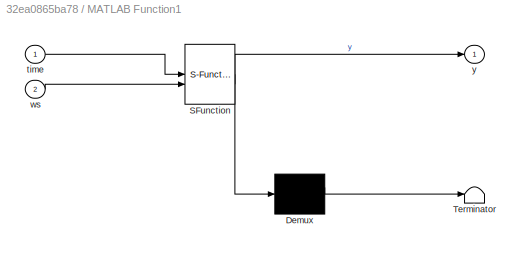
BLOCK [SubSystem] MATLAB Function1
  ErrorFcn = Stateflow.Translate.translate
  PermitHierarchicalResolution = ExplicitOnly
  SFBlockType = MATLAB Function
  TreatAsAtomicUnit = on
BLOCK [Demux] MATLAB Function1/ Demux 
  Outputs = 1
BLOCK [S-Function] MATLAB Function1/ SFunction 
  EnableBusSupport = on
  FunctionName = sf_sfun
  PortCounts = [2 2]
  SFcnIsStateOwnerBlock = off
  SFunctionDeploymentMode = off
  Tag = Stateflow S-Function 1
BLOCK [Terminator] MATLAB Function1/ Terminator 
BLOCK [Inport] MATLAB Function1/time
BLOCK [Inport] MATLAB Function1/ws
  Port = 2
BLOCK [Outport] MATLAB Function1/y
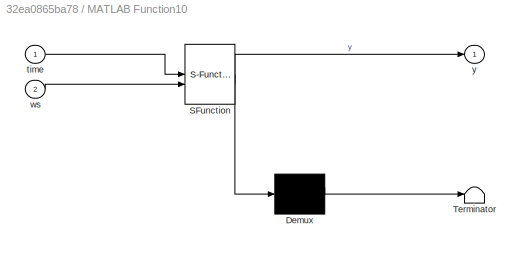
BLOCK [SubSystem] MATLAB Function10
  ErrorFcn = Stateflow.Translate.translate
  PermitHierarchicalResolution = ExplicitOnly
  SFBlockType = MATLAB Function
  TreatAsAtomicUnit = on
BLOCK [Demux] MATLAB Function10/ Demux 
  Outputs = 1
BLOCK [S-Function] MATLAB Function10/ SFunction 
  EnableBusSupport = on
  FunctionName = sf_sfun
  PortCounts = [2 2]
  SFcnIsStateOwnerBlock = off
  SFunctionDeploymentMode = off
  Tag = Stateflow S-Function 8
BLOCK [Terminator] MATLAB Function10/ Terminator 
BLOCK [Inport] MATLAB Function10/time
BLOCK [Inport] MATLAB Function10/ws
  Port = 2
BLOCK [Outport] MATLAB Function10/y
BLOCK [SubSystem] MATLAB Function11
  ErrorFcn = Stateflow.Translate.translate
  PermitHierarchicalResolution = ExplicitOnly
  SFBlockType = MATLAB Function
  TreatAsAtomicUnit = on
BLOCK [Demux] MATLAB Function11/ Demux 
  Outputs = 1
BLOCK [S-Function] MATLAB Function11/ SFunction 
  EnableBusSupport = on
  FunctionName = sf_sfun
  PortCounts = [2 2]
  SFcnIsStateOwnerBlock = off
  SFunctionDeploymentMode = off
  Tag = Stateflow S-Function 12
BLOCK [Terminator] MATLAB Function11/ Terminator 
BLOCK [Inport] MATLAB Function11/time
BLOCK [Inport] MATLAB Function11/ws
  Port = 2
BLOCK [Outport] MATLAB Function11/y
BLOCK [SubSystem] MATLAB Function12
  ErrorFcn = Stateflow.Translate.translate
  PermitHierarchicalResolution = ExplicitOnly
  SFBlockType = MATLAB Function
  TreatAsAtomicUnit = on
BLOCK [Demux] MATLAB Function12/ Demux 
  Outputs = 1
BLOCK [S-Function] MATLAB Function12/ SFunction 
  EnableBusSupport = on
  FunctionName = sf_sfun
  PortCounts = [2 2]
  SFcnIsStateOwnerBlock = off
  SFunctionDeploymentMode = off
  Tag = Stateflow S-Function 9
BLOCK [Terminator] MATLAB Function12/ Terminator 
BLOCK [Inport] MATLAB Function12/time
BLOCK [Inport] MATLAB Function12/ws
  Port = 2
BLOCK [Outport] MATLAB Function12/y
BLOCK [SubSystem] MATLAB Function13
  ErrorFcn = Stateflow.Translate.translate
  PermitHierarchicalResolution = ExplicitOnly
  SFBlockType = MATLAB Function
  TreatAsAtomicUnit = on
BLOCK [Demux] MATLAB Function13/ Demux 
  Outputs = 1
BLOCK [S-Function] MATLAB Function13/ SFunction 
  EnableBusSupport = on
  FunctionName = sf_sfun
  PortCounts = [2 2]
  SFcnIsStateOwnerBlock = off
  SFunctionDeploymentMode = off
  Tag = Stateflow S-Function 10
BLOCK [Terminator] MATLAB Function13/ Terminator 
BLOCK [Inport] MATLAB Function13/time
BLOCK [Inport] MATLAB Function13/ws
  Port = 2
BLOCK [Outport] MATLAB Function13/y
BLOCK [SubSystem] MATLAB Function14
  ErrorFcn = Stateflow.Translate.translate
  PermitHierarchicalResolution = ExplicitOnly
  SFBlockType = MATLAB Function
  TreatAsAtomicUnit = on
BLOCK [Demux] MATLAB Function14/ Demux 
  Outputs = 1
BLOCK [S-Function] MATLAB Function14/ SFunction 
  EnableBusSupport = on
  FunctionName = sf_sfun
  PortCounts = [2 2]
  SFcnIsStateOwnerBlock = off
  SFunctionDeploymentMode = off
  Tag = Stateflow S-Function 11
BLOCK [Terminator] MATLAB Function14/ Terminator 
BLOCK [Inport] MATLAB Function14/time
BLOCK [Inport] MATLAB Function14/ws
  Port = 2
BLOCK [Outport] MATLAB Function14/y
BLOCK [SubSystem] MATLAB Function15
  ErrorFcn = Stateflow.Translate.translate
  PermitHierarchicalResolution = ExplicitOnly
  SFBlockType = MATLAB Function
  TreatAsAtomicUnit = on
BLOCK [Demux] MATLAB Function15/ Demux 
  Outputs = 1
BLOCK [S-Function] MATLAB Function15/ SFunction 
  EnableBusSupport = on
  FunctionName = sf_sfun
  PortCounts = [2 2]
  SFcnIsStateOwnerBlock = off
  SFunctionDeploymentMode = off
  Tag = Stateflow S-Function 13
BLOCK [Terminator] MATLAB Function15/ Terminator 
BLOCK [Inport] MATLAB Function15/time
BLOCK [Inport] MATLAB Function15/ws
  Port = 2
BLOCK [Outport] MATLAB Function15/y
BLOCK [SubSystem] MATLAB Function16
  ErrorFcn = Stateflow.Translate.translate
  PermitHierarchicalResolution = ExplicitOnly
  SFBlockType = MATLAB Function
  TreatAsAtomicUnit = on
BLOCK [Demux] MATLAB Function16/ Demux 
  Outputs = 1
BLOCK [S-Function] MATLAB Function16/ SFunction 
  EnableBusSupport = on
  FunctionName = sf_sfun
  PortCounts = [2 2]
  SFcnIsStateOwnerBlock = off
  SFunctionDeploymentMode = off
  Tag = Stateflow S-Function 14
BLOCK [Terminator] MATLAB Function16/ Terminator 
BLOCK [Inport] MATLAB Function16/time
BLOCK [Inport] MATLAB Function16/ws
  Port = 2
BLOCK [Outport] MATLAB Function16/y
BLOCK [SubSystem] MATLAB Function17
  ErrorFcn = Stateflow.Translate.translate
  PermitHierarchicalResolution = ExplicitOnly
  SFBlockType = MATLAB Function
  TreatAsAtomicUnit = on
BLOCK [Demux] MATLAB Function17/ Demux 
  Outputs = 1
BLOCK [S-Function] MATLAB Function17/ SFunction 
  EnableBusSupport = on
  FunctionName = sf_sfun
  PortCounts = [2 2]
  SFcnIsStateOwnerBlock = off
  SFunctionDeploymentMode = off
  Tag = Stateflow S-Function 17
BLOCK [Terminator] MATLAB Function17/ Terminator 
BLOCK [Inport] MATLAB Function17/time
BLOCK [Inport] MATLAB Function17/ws
  Port = 2
BLOCK [Outport] MATLAB Function17/y
BLOCK [SubSystem] MATLAB Function18
  ErrorFcn = Stateflow.Translate.translate
  PermitHierarchicalResolution = ExplicitOnly
  SFBlockType = MATLAB Function
  TreatAsAtomicUnit = on
BLOCK [Demux] MATLAB Function18/ Demux 
  Outputs = 1
BLOCK [S-Function] MATLAB Function18/ SFunction 
  EnableBusSupport = on
  FunctionName = sf_sfun
  PortCounts = [2 2]
  SFcnIsStateOwnerBlock = off
  SFunctionDeploymentMode = off
  Tag = Stateflow S-Function 18
BLOCK [Terminator] MATLAB Function18/ Terminator 
BLOCK [Inport] MATLAB Function18/time
BLOCK [Inport] MATLAB Function18/ws
  Port = 2
BLOCK [Outport] MATLAB Function18/y
BLOCK [SubSystem] MATLAB Function19
  ErrorFcn = Stateflow.Translate.translate
  PermitHierarchicalResolution = ExplicitOnly
  SFBlockType = MATLAB Function
  TreatAsAtomicUnit = on
BLOCK [Demux] MATLAB Function19/ Demux 
  Outputs = 1
BLOCK [S-Function] MATLAB Function19/ SFunction 
  EnableBusSupport = on
  FunctionName = sf_sfun
  PortCounts = [2 2]
  SFcnIsStateOwnerBlock = off
  SFunctionDeploymentMode = off
  Tag = Stateflow S-Function 19
BLOCK [Terminator] MATLAB Function19/ Terminator 
BLOCK [Inport] MATLAB Function19/time
BLOCK [Inport] MATLAB Function19/ws
  Port = 2
BLOCK [Outport] MATLAB Function19/y
BLOCK [SubSystem] MATLAB Function2
  ErrorFcn = Stateflow.Translate.translate
  PermitHierarchicalResolution = ExplicitOnly
  SFBlockType = MATLAB Function
  TreatAsAtomicUnit = on
BLOCK [Demux] MATLAB Function2/ Demux 
  Outputs = 1
BLOCK [S-Function] MATLAB Function2/ SFunction 
  EnableBusSupport = on
  FunctionName = sf_sfun
  PortCounts = [2 2]
  SFcnIsStateOwnerBlock = off
  SFunctionDeploymentMode = off
  Tag = Stateflow S-Function 2
BLOCK [Terminator] MATLAB Function2/ Terminator 
BLOCK [Inport] MATLAB Function2/time
BLOCK [Inport] MATLAB Function2/ws
  Port = 2
BLOCK [Outport] MATLAB Function2/y
BLOCK [SubSystem] MATLAB Function20
  ErrorFcn = Stateflow.Translate.translate
  PermitHierarchicalResolution = ExplicitOnly
  SFBlockType = MATLAB Function
  TreatAsAtomicUnit = on
BLOCK [Demux] MATLAB Function20/ Demux 
  Outputs = 1
BLOCK [S-Function] MATLAB Function20/ SFunction 
  EnableBusSupport = on
  FunctionName = sf_sfun
  PortCounts = [2 2]
  SFcnIsStateOwnerBlock = off
  SFunctionDeploymentMode = off
  Tag = Stateflow S-Function 20
BLOCK [Terminator] MATLAB Function20/ Terminator 
BLOCK [Inport] MATLAB Function20/time
BLOCK [Inport] MATLAB Function20/ws
  Port = 2
BLOCK [Outport] MATLAB Function20/y
BLOCK [SubSystem] MATLAB Function21
  ErrorFcn = Stateflow.Translate.translate
  PermitHierarchicalResolution = ExplicitOnly
  SFBlockType = MATLAB Function
  TreatAsAtomicUnit = on
BLOCK [Demux] MATLAB Function21/ Demux 
  Outputs = 1
BLOCK [S-Function] MATLAB Function21/ SFunction 
  EnableBusSupport = on
  FunctionName = sf_sfun
  PortCounts = [2 2]
  SFcnIsStateOwnerBlock = off
  SFunctionDeploymentMode = off
  Tag = Stateflow S-Function 21
BLOCK [Terminator] MATLAB Function21/ Terminator 
BLOCK [Inport] MATLAB Function21/time
BLOCK [Inport] MATLAB Function21/ws
  Port = 2
BLOCK [Outport] MATLAB Function21/y
BLOCK [SubSystem] MATLAB Function22
  ErrorFcn = Stateflow.Translate.translate
  PermitHierarchicalResolution = ExplicitOnly
  SFBlockType = MATLAB Function
  TreatAsAtomicUnit = on
BLOCK [Demux] MATLAB Function22/ Demux 
  Outputs = 1
BLOCK [S-Function] MATLAB Function22/ SFunction 
  EnableBusSupport = on
  FunctionName = sf_sfun
  PortCounts = [2 2]
  SFcnIsStateOwnerBlock = off
  SFunctionDeploymentMode = off
  Tag = Stateflow S-Function 22
BLOCK [Terminator] MATLAB Function22/ Terminator 
BLOCK [Inport] MATLAB Function22/time
BLOCK [Inport] MATLAB Function22/ws
  Port = 2
BLOCK [Outport] MATLAB Function22/y
BLOCK [SubSystem] MATLAB Function23
  ErrorFcn = Stateflow.Translate.translate
  PermitHierarchicalResolution = ExplicitOnly
  SFBlockType = MATLAB Function
  TreatAsAtomicUnit = on
BLOCK [Demux] MATLAB Function23/ Demux 
  Outputs = 1
BLOCK [S-Function] MATLAB Function23/ SFunction 
  EnableBusSupport = on
  FunctionName = sf_sfun
  PortCounts = [2 2]
  SFcnIsStateOwnerBlock = off
  SFunctionDeploymentMode = off
  Tag = Stateflow S-Function 23
BLOCK [Terminator] MATLAB Function23/ Terminator 
BLOCK [Inport] MATLAB Function23/time
BLOCK [Inport] MATLAB Function23/ws
  Port = 2
BLOCK [Outport] MATLAB Function23/y
BLOCK [SubSystem] MATLAB Function24
  ErrorFcn = Stateflow.Translate.translate
  PermitHierarchicalResolution = ExplicitOnly
  SFBlockType = MATLAB Function
  TreatAsAtomicUnit = on
BLOCK [Demux] MATLAB Function24/ Demux 
  Outputs = 1
BLOCK [S-Function] MATLAB Function24/ SFunction 
  EnableBusSupport = on
  FunctionName = sf_sfun
  PortCounts = [2 2]
  SFcnIsStateOwnerBlock = off
  SFunctionDeploymentMode = off
  Tag = Stateflow S-Function 24
BLOCK [Terminator] MATLAB Function24/ Terminator 
BLOCK [Inport] MATLAB Function24/time
BLOCK [Inport] MATLAB Function24/ws
  Port = 2
BLOCK [Outport] MATLAB Function24/y
BLOCK [SubSystem] MATLAB Function25
  ErrorFcn = Stateflow.Translate.translate
  PermitHierarchicalResolution = ExplicitOnly
  SFBlockType = MATLAB Function
  TreatAsAtomicUnit = on
BLOCK [Demux] MATLAB Function25/ Demux 
  Outputs = 1
BLOCK [S-Function] MATLAB Function25/ SFunction 
  EnableBusSupport = on
  FunctionName = sf_sfun
  PortCounts = [2 2]
  SFcnIsStateOwnerBlock = off
  SFunctionDeploymentMode = off
  Tag = Stateflow S-Function 25
BLOCK [Terminator] MATLAB Function25/ Terminator 
BLOCK [Inport] MATLAB Function25/time
BLOCK [Inport] MATLAB Function25/ws
  Port = 2
BLOCK [Outport] MATLAB Function25/y
BLOCK [SubSystem] MATLAB Function26
  ErrorFcn = Stateflow.Translate.translate
  PermitHierarchicalResolution = ExplicitOnly
  SFBlockType = MATLAB Function
  TreatAsAtomicUnit = on
BLOCK [Demux] MATLAB Function26/ Demux 
  Outputs = 1
BLOCK [S-Function] MATLAB Function26/ SFunction 
  EnableBusSupport = on
  FunctionName = sf_sfun
  PortCounts = [2 2]
  SFcnIsStateOwnerBlock = off
  SFunctionDeploymentMode = off
  Tag = Stateflow S-Function 26
BLOCK [Terminator] MATLAB Function26/ Terminator 
BLOCK [Inport] MATLAB Function26/time
BLOCK [Inport] MATLAB Function26/ws
  Port = 2
BLOCK [Outport] MATLAB Function26/y
BLOCK [SubSystem] MATLAB Function27
  ErrorFcn = Stateflow.Translate.translate
  PermitHierarchicalResolution = ExplicitOnly
  SFBlockType = MATLAB Function
  TreatAsAtomicUnit = on
BLOCK [Demux] MATLAB Function27/ Demux 
  Outputs = 1
BLOCK [S-Function] MATLAB Function27/ SFunction 
  EnableBusSupport = on
  FunctionName = sf_sfun
  PortCounts = [2 2]
  SFcnIsStateOwnerBlock = off
  SFunctionDeploymentMode = off
  Tag = Stateflow S-Function 27
BLOCK [Terminator] MATLAB Function27/ Terminator 
BLOCK [Inport] MATLAB Function27/time
BLOCK [Inport] MATLAB Function27/ws
  Port = 2
BLOCK [Outport] MATLAB Function27/y
BLOCK [SubSystem] MATLAB Function28
  ErrorFcn = Stateflow.Translate.translate
  PermitHierarchicalResolution = ExplicitOnly
  SFBlockType = MATLAB Function
  TreatAsAtomicUnit = on
BLOCK [Demux] MATLAB Function28/ Demux 
  Outputs = 1
BLOCK [S-Function] MATLAB Function28/ SFunction 
  EnableBusSupport = on
  FunctionName = sf_sfun
  PortCounts = [2 2]
  SFcnIsStateOwnerBlock = off
  SFunctionDeploymentMode = off
  Tag = Stateflow S-Function 28
BLOCK [Terminator] MATLAB Function28/ Terminator 
BLOCK [Inport] MATLAB Function28/time
BLOCK [Inport] MATLAB Function28/ws
  Port = 2
BLOCK [Outport] MATLAB Function28/y
BLOCK [SubSystem] MATLAB Function29
  ErrorFcn = Stateflow.Translate.translate
  PermitHierarchicalResolution = ExplicitOnly
  SFBlockType = MATLAB Function
  TreatAsAtomicUnit = on
BLOCK [Demux] MATLAB Function29/ Demux 
  Outputs = 1
BLOCK [S-Function] MATLAB Function29/ SFunction 
  EnableBusSupport = on
  FunctionName = sf_sfun
  PortCounts = [2 2]
  SFcnIsStateOwnerBlock = off
  SFunctionDeploymentMode = off
  Tag = Stateflow S-Function 29
BLOCK [Terminator] MATLAB Function29/ Terminator 
BLOCK [Inport] MATLAB Function29/time
BLOCK [Inport] MATLAB Function29/ws
  Port = 2
BLOCK [Outport] MATLAB Function29/y
BLOCK [SubSystem] MATLAB Function3
  ErrorFcn = Stateflow.Translate.translate
  PermitHierarchicalResolution = ExplicitOnly
  SFBlockType = MATLAB Function
  TreatAsAtomicUnit = on
BLOCK [Demux] MATLAB Function3/ Demux 
  Outputs = 1
BLOCK [S-Function] MATLAB Function3/ SFunction 
  EnableBusSupport = on
  FunctionName = sf_sfun
  PortCounts = [2 2]
  SFcnIsStateOwnerBlock = off
  SFunctionDeploymentMode = off
  Tag = Stateflow S-Function 3
BLOCK [Terminator] MATLAB Function3/ Terminator 
BLOCK [Inport] MATLAB Function3/time
BLOCK [Inport] MATLAB Function3/ws
  Port = 2
BLOCK [Outport] MATLAB Function3/y
BLOCK [SubSystem] MATLAB Function30
  ErrorFcn = Stateflow.Translate.translate
  PermitHierarchicalResolution = ExplicitOnly
  SFBlockType = MATLAB Function
  TreatAsAtomicUnit = on
BLOCK [Demux] MATLAB Function30/ Demux 
  Outputs = 1
BLOCK [S-Function] MATLAB Function30/ SFunction 
  EnableBusSupport = on
  FunctionName = sf_sfun
  PortCounts = [2 2]
  SFcnIsStateOwnerBlock = off
  SFunctionDeploymentMode = off
  Tag = Stateflow S-Function 30
BLOCK [Terminator] MATLAB Function30/ Terminator 
BLOCK [Inport] MATLAB Function30/time
BLOCK [Inport] MATLAB Function30/ws
  Port = 2
BLOCK [Outport] MATLAB Function30/y
BLOCK [SubSystem] MATLAB Function4
  ErrorFcn = Stateflow.Translate.translate
  PermitHierarchicalResolution = ExplicitOnly
  SFBlockType = MATLAB Function
  TreatAsAtomicUnit = on
BLOCK [Demux] MATLAB Function4/ Demux 
  Outputs = 1
BLOCK [S-Function] MATLAB Function4/ SFunction 
  EnableBusSupport = on
  FunctionName = sf_sfun
  PortCounts = [2 2]
  SFcnIsStateOwnerBlock = off
  SFunctionDeploymentMode = off
  Tag = Stateflow S-Function 4
BLOCK [Terminator] MATLAB Function4/ Terminator 
BLOCK [Inport] MATLAB Function4/time
BLOCK [Inport] MATLAB Function4/ws
  Port = 2
BLOCK [Outport] MATLAB Function4/y
BLOCK [SubSystem] MATLAB Function5
  ErrorFcn = Stateflow.Translate.translate
  PermitHierarchicalResolution = ExplicitOnly
  SFBlockType = MATLAB Function
  TreatAsAtomicUnit = on
BLOCK [Demux] MATLAB Function5/ Demux 
  Outputs = 1
BLOCK [S-Function] MATLAB Function5/ SFunction 
  EnableBusSupport = on
  FunctionName = sf_sfun
  PortCounts = [2 2]
  SFcnIsStateOwnerBlock = off
  SFunctionDeploymentMode = off
  Tag = Stateflow S-Function 5
BLOCK [Terminator] MATLAB Function5/ Terminator 
BLOCK [Inport] MATLAB Function5/time
BLOCK [Inport] MATLAB Function5/ws
  Port = 2
BLOCK [Outport] MATLAB Function5/y
BLOCK [SubSystem] MATLAB Function6
  ErrorFcn = Stateflow.Translate.translate
  PermitHierarchicalResolution = ExplicitOnly
  SFBlockType = MATLAB Function
  TreatAsAtomicUnit = on
BLOCK [Demux] MATLAB Function6/ Demux 
  Outputs = 1
BLOCK [S-Function] MATLAB Function6/ SFunction 
  EnableBusSupport = on
  FunctionName = sf_sfun
  PortCounts = [2 2]
  SFcnIsStateOwnerBlock = off
  SFunctionDeploymentMode = off
  Tag = Stateflow S-Function 6
BLOCK [Terminator] MATLAB Function6/ Terminator 
BLOCK [Inport] MATLAB Function6/time
BLOCK [Inport] MATLAB Function6/ws
  Port = 2
BLOCK [Outport] MATLAB Function6/y
BLOCK [SubSystem] MATLAB Function7
  ErrorFcn = Stateflow.Translate.translate
  PermitHierarchicalResolution = ExplicitOnly
  SFBlockType = MATLAB Function
  TreatAsAtomicUnit = on
BLOCK [Demux] MATLAB Function7/ Demux 
  Outputs = 1
BLOCK [S-Function] MATLAB Function7/ SFunction 
  EnableBusSupport = on
  FunctionName = sf_sfun
  PortCounts = [2 2]
  SFcnIsStateOwnerBlock = off
  SFunctionDeploymentMode = off
  Tag = Stateflow S-Function 7
BLOCK [Terminator] MATLAB Function7/ Terminator 
BLOCK [Inport] MATLAB Function7/time
BLOCK [Inport] MATLAB Function7/ws
  Port = 2
BLOCK [Outport] MATLAB Function7/y
BLOCK [SubSystem] MATLAB Function8
  ErrorFcn = Stateflow.Translate.translate
  PermitHierarchicalResolution = ExplicitOnly
  SFBlockType = MATLAB Function
  TreatAsAtomicUnit = on
BLOCK [Demux] MATLAB Function8/ Demux 
  Outputs = 1
BLOCK [S-Function] MATLAB Function8/ SFunction 
  EnableBusSupport = on
  FunctionName = sf_sfun
  PortCounts = [2 2]
  SFcnIsStateOwnerBlock = off
  SFunctionDeploymentMode = off
  Tag = Stateflow S-Function 15
BLOCK [Terminator] MATLAB Function8/ Terminator 
BLOCK [Inport] MATLAB Function8/time
BLOCK [Inport] MATLAB Function8/ws
  Port = 2
BLOCK [Outport] MATLAB Function8/y
BLOCK [SubSystem] MATLAB Function9
  ErrorFcn = Stateflow.Translate.translate
  PermitHierarchicalResolution = ExplicitOnly
  SFBlockType = MATLAB Function
  TreatAsAtomicUnit = on
BLOCK [Demux] MATLAB Function9/ Demux 
  Outputs = 1
BLOCK [S-Function] MATLAB Function9/ SFunction 
  EnableBusSupport = on
  FunctionName = sf_sfun
  PortCounts = [2 2]
  SFcnIsStateOwnerBlock = off
  SFunctionDeploymentMode = off
  Tag = Stateflow S-Function 16
BLOCK [Terminator] MATLAB Function9/ Terminator 
BLOCK [Inport] MATLAB Function9/time
BLOCK [Inport] MATLAB Function9/ws
  Port = 2
BLOCK [Outport] MATLAB Function9/y
BLOCK [Reference] PV_1  REF=fl_lib/Electrical/Electrical Sources/Controlled Current
Source
  NameLocation = left
  SourceBlock = fl_lib/Electrical/Electrical Sources/Controlled Current\nSource
  SourceType = Controlled Current\nSource
BLOCK [Reference] PV_10  REF=fl_lib/Electrical/Electrical Sources/Controlled Current
Source
  SourceBlock = fl_lib/Electrical/Electrical Sources/Controlled Current\nSource
  SourceType = Controlled Current\nSource
BLOCK [Reference] PV_2  REF=fl_lib/Electrical/Electrical Sources/Controlled Current
Source
  NameLocation = left
  SourceBlock = fl_lib/Electrical/Electrical Sources/Controlled Current\nSource
  SourceType = Controlled Current\nSource
BLOCK [Reference] PV_3  REF=fl_lib/Electrical/Electrical Sources/Controlled Current
Source
  NameLocation = left
  SourceBlock = fl_lib/Electrical/Electrical Sources/Controlled Current\nSource
  SourceType = Controlled Current\nSource
BLOCK [Reference] PV_4  REF=fl_lib/Electrical/Electrical Sources/Controlled Current
Source
  NameLocation = left
  SourceBlock = fl_lib/Electrical/Electrical Sources/Controlled Current\nSource
  SourceType = Controlled Current\nSource
BLOCK [Reference] PV_5  REF=fl_lib/Electrical/Electrical Sources/Controlled Current
Source
  NameLocation = left
  SourceBlock = fl_lib/Electrical/Electrical Sources/Controlled Current\nSource
  SourceType = Controlled Current\nSource
BLOCK [Reference] PV_6  REF=fl_lib/Electrical/Electrical Sources/Controlled Current
Source
  NameLocation = left
  SourceBlock = fl_lib/Electrical/Electrical Sources/Controlled Current\nSource
  SourceType = Controlled Current\nSource
BLOCK [Reference] PV_7  REF=fl_lib/Electrical/Electrical Sources/Controlled Current
Source
  NameLocation = left
  SourceBlock = fl_lib/Electrical/Electrical Sources/Controlled Current\nSource
  SourceType = Controlled Current\nSource
BLOCK [Reference] PV_8  REF=fl_lib/Electrical/Electrical Sources/Controlled Current
Source
  SourceBlock = fl_lib/Electrical/Electrical Sources/Controlled Current\nSource
  SourceType = Controlled Current\nSource
BLOCK [Reference] PV_9  REF=fl_lib/Electrical/Electrical Sources/Controlled Current
Source
  SourceBlock = fl_lib/Electrical/Electrical Sources/Controlled Current\nSource
  SourceType = Controlled Current\nSource
BLOCK [Display] Ph10rms_d
  Decimation = 1
BLOCK [Scope] Ph10rms_s
  Floating = off
  NumInputPorts = 1
  ScopeSpecificationString = Simulink.scopes.TimeScopeBlockCfg('CurrentConfiguration', extmgr.ConfigurationSet(extmgr.Configuration('Core','General UI',true),extmgr.Configuration('Core','Source UI',true),extmgr.Configuration('Sources','WiredSimulink',true,'DataLoggingSaveFormat','StructureWithTime','DataLoggingDecimation','1','DataLoggingDecimateData',true,'DataLoggingVariableName','ScopeData35'),extmgr.Configuration('Visuals...<+1585ch>
BLOCK [Scope] Ph10rms_s10
  Floating = off
  NumInputPorts = 1
  ScopeSpecificationString = Simulink.scopes.TimeScopeBlockCfg('CurrentConfiguration', extmgr.ConfigurationSet(extmgr.Configuration('Core','General UI',true),extmgr.Configuration('Core','Source UI',true),extmgr.Configuration('Sources','WiredSimulink',true,'DataLoggingSaveFormat','StructureWithTime','DataLoggingDecimation','1','DataLoggingDecimateData',true,'DataLoggingVariableName','ScopeData41'),extmgr.Configuration('Visuals...<+1623ch>
BLOCK [Scope] Ph10rms_s10I
  Floating = off
  NumInputPorts = 1
  ScopeSpecificationString = Simulink.scopes.TimeScopeBlockCfg('CurrentConfiguration', extmgr.ConfigurationSet(extmgr.Configuration('Core','General UI',true),extmgr.Configuration('Core','Source UI',true),extmgr.Configuration('Sources','WiredSimulink',true,'DataLoggingSaveFormat','StructureWithTime','DataLoggingDecimation','1','DataLoggingDecimateData',true,'DataLoggingVariableName','ScopeData19'),extmgr.Configuration('Visuals...<+1627ch>
BLOCK [Scope] Ph10rms_s10V
  Floating = off
  NumInputPorts = 1
  ScopeSpecificationString = Simulink.scopes.TimeScopeBlockCfg('CurrentConfiguration', extmgr.ConfigurationSet(extmgr.Configuration('Core','General UI',true),extmgr.Configuration('Core','Source UI',true),extmgr.Configuration('Sources','WiredSimulink',true,'DataLoggingSaveFormat','StructureWithTime','DataLoggingDecimation','1','DataLoggingDecimateData',true,'DataLoggingVariableName','ScopeData20'),extmgr.Configuration('Visuals...<+1627ch>
BLOCK [Display] Ph1rms_d
  Decimation = 1
BLOCK [Display] Ph1rms_d1
  Decimation = 1
  NameLocation = top
BLOCK [Scope] Ph1rms_s
  Floating = off
  NumInputPorts = 1
  ScopeSpecificationString = Simulink.scopes.TimeScopeBlockCfg('CurrentConfiguration', extmgr.ConfigurationSet(extmgr.Configuration('Core','General UI',true),extmgr.Configuration('Core','Source UI',true),extmgr.Configuration('Sources','WiredSimulink',true,'DataLoggingSaveFormat','StructureWithTime','DataLoggingDecimation','1','DataLoggingDecimateData',true,'DataLoggingVariableName','ScopeData5'),extmgr.Configuration('Visuals'...<+1617ch>
BLOCK [Scope] Ph1rms_s1
  Floating = off
  NumInputPorts = 1
  ScopeSpecificationString = Simulink.scopes.TimeScopeBlockCfg('CurrentConfiguration', extmgr.ConfigurationSet(extmgr.Configuration('Core','General UI',true),extmgr.Configuration('Core','Source UI',true),extmgr.Configuration('Sources','WiredSimulink',true,'DataLoggingSaveFormat','StructureWithTime','DataLoggingDecimation','1','DataLoggingDecimateData',true,'DataLoggingVariableName','ScopeData32'),extmgr.Configuration('Visuals...<+1623ch>
BLOCK [Scope] Ph1rms_s1I
  Floating = off
  NumInputPorts = 1
  ScopeSpecificationString = Simulink.scopes.TimeScopeBlockCfg('CurrentConfiguration', extmgr.ConfigurationSet(extmgr.Configuration('Core','General UI',true),extmgr.Configuration('Core','Source UI',true),extmgr.Configuration('Sources','WiredSimulink',true,'DataLoggingSaveFormat','StructureWithTime','DataLoggingDecimation','1','DataLoggingDecimateData',true,'DataLoggingVariableName','ScopeData27'),extmgr.Configuration('Visuals...<+1627ch>
BLOCK [Scope] Ph1rms_s1V
  Floating = off
  NumInputPorts = 1
  ScopeSpecificationString = Simulink.scopes.TimeScopeBlockCfg('CurrentConfiguration', extmgr.ConfigurationSet(extmgr.Configuration('Core','General UI',true),extmgr.Configuration('Core','Source UI',true),extmgr.Configuration('Sources','WiredSimulink',true,'DataLoggingSaveFormat','StructureWithTime','DataLoggingDecimation','1','DataLoggingDecimateData',true,'DataLoggingVariableName','ScopeData1'),extmgr.Configuration('Visuals'...<+1625ch>
BLOCK [Scope] Ph1rms_s2
  Floating = off
  NameLocation = top
  NumInputPorts = 1
  ScopeSpecificationString = Simulink.scopes.TimeScopeBlockCfg('CurrentConfiguration', extmgr.ConfigurationSet(extmgr.Configuration('Core','General UI',true),extmgr.Configuration('Core','Source UI',true),extmgr.Configuration('Sources','WiredSimulink',true,'DataLoggingSaveFormat','StructureWithTime','DataLoggingDecimation','1','DataLoggingDecimateData',true,'DataLoggingVariableName','ScopeData2'),extmgr.Configuration('Visuals'...<+1622ch>
BLOCK [Scope] Ph1rms_s7
  Floating = off
  NumInputPorts = 1
  ScopeSpecificationString = Simulink.scopes.TimeScopeBlockCfg('CurrentConfiguration', extmgr.ConfigurationSet(extmgr.Configuration('Core','General UI',true),extmgr.Configuration('Core','Source UI',true),extmgr.Configuration('Sources','WiredSimulink',true,'DataLoggingSaveFormat','StructureWithTime','DataLoggingDecimation','1','DataLoggingDecimateData',true,'DataLoggingVariableName','ScopeData38'),extmgr.Configuration('Visuals...<+1623ch>
BLOCK [Display] Ph2rms_d
  Decimation = 1
BLOCK [Scope] Ph2rms_s
  Floating = off
  NumInputPorts = 1
  ScopeSpecificationString = Simulink.scopes.TimeScopeBlockCfg('CurrentConfiguration', extmgr.ConfigurationSet(extmgr.Configuration('Core','General UI',true),extmgr.Configuration('Core','Source UI',true),extmgr.Configuration('Sources','WiredSimulink',true,'DataLoggingSaveFormat','StructureWithTime','DataLoggingDecimation','1','DataLoggingDecimateData',true,'DataLoggingVariableName','ScopeData3'),extmgr.Configuration('Visuals'...<+1622ch>
BLOCK [Scope] Ph2rms_s2
  Floating = off
  NumInputPorts = 1
  ScopeSpecificationString = Simulink.scopes.TimeScopeBlockCfg('CurrentConfiguration', extmgr.ConfigurationSet(extmgr.Configuration('Core','General UI',true),extmgr.Configuration('Core','Source UI',true),extmgr.Configuration('Sources','WiredSimulink',true,'DataLoggingSaveFormat','StructureWithTime','DataLoggingDecimation','1','DataLoggingDecimateData',true,'DataLoggingVariableName','ScopeData33'),extmgr.Configuration('Visuals...<+1623ch>
BLOCK [Scope] Ph2rms_s2I
  Floating = off
  NumInputPorts = 1
  ScopeSpecificationString = Simulink.scopes.TimeScopeBlockCfg('CurrentConfiguration', extmgr.ConfigurationSet(extmgr.Configuration('Core','General UI',true),extmgr.Configuration('Core','Source UI',true),extmgr.Configuration('Sources','WiredSimulink',true,'DataLoggingSaveFormat','StructureWithTime','DataLoggingDecimation','1','DataLoggingDecimateData',true,'DataLoggingVariableName','ScopeData25'),extmgr.Configuration('Visuals...<+1627ch>
BLOCK [Scope] Ph2rms_s2V
  Floating = off
  NumInputPorts = 1
  ScopeSpecificationString = Simulink.scopes.TimeScopeBlockCfg('CurrentConfiguration', extmgr.ConfigurationSet(extmgr.Configuration('Core','General UI',true),extmgr.Configuration('Core','Source UI',true),extmgr.Configuration('Sources','WiredSimulink',true,'DataLoggingSaveFormat','StructureWithTime','DataLoggingDecimation','1','DataLoggingDecimateData',true,'DataLoggingVariableName','ScopeData26'),extmgr.Configuration('Visuals...<+1627ch>
BLOCK [Display] Ph3rms_d
  Decimation = 1
BLOCK [Scope] Ph3rms_s
  Floating = off
  NumInputPorts = 1
  ScopeSpecificationString = Simulink.scopes.TimeScopeBlockCfg('CurrentConfiguration', extmgr.ConfigurationSet(extmgr.Configuration('Core','General UI',true),extmgr.Configuration('Core','Source UI',true),extmgr.Configuration('Sources','WiredSimulink',true,'DataLoggingSaveFormat','StructureWithTime','DataLoggingDecimation','1','DataLoggingDecimateData',true,'DataLoggingVariableName','ScopeData7'),extmgr.Configuration('Visuals'...<+1584ch>
BLOCK [Scope] Ph3rms_s3
  Floating = off
  NumInputPorts = 1
  ScopeSpecificationString = Simulink.scopes.TimeScopeBlockCfg('CurrentConfiguration', extmgr.ConfigurationSet(extmgr.Configuration('Core','General UI',true),extmgr.Configuration('Core','Source UI',true),extmgr.Configuration('Sources','WiredSimulink',true,'DataLoggingSaveFormat','StructureWithTime','DataLoggingDecimation','1','DataLoggingDecimateData',true,'DataLoggingVariableName','ScopeData34'),extmgr.Configuration('Visuals...<+1623ch>
BLOCK [Scope] Ph3rms_s3I
  Floating = off
  NumInputPorts = 1
  ScopeSpecificationString = Simulink.scopes.TimeScopeBlockCfg('CurrentConfiguration', extmgr.ConfigurationSet(extmgr.Configuration('Core','General UI',true),extmgr.Configuration('Core','Source UI',true),extmgr.Configuration('Sources','WiredSimulink',true,'DataLoggingSaveFormat','StructureWithTime','DataLoggingDecimation','1','DataLoggingDecimateData',true,'DataLoggingVariableName','ScopeData28'),extmgr.Configuration('Visuals...<+1627ch>
BLOCK [Scope] Ph3rms_s3V
  Floating = off
  NumInputPorts = 1
  ScopeSpecificationString = Simulink.scopes.TimeScopeBlockCfg('CurrentConfiguration', extmgr.ConfigurationSet(extmgr.Configuration('Core','General UI',true),extmgr.Configuration('Core','Source UI',true),extmgr.Configuration('Sources','WiredSimulink',true,'DataLoggingSaveFormat','StructureWithTime','DataLoggingDecimation','1','DataLoggingDecimateData',true,'DataLoggingVariableName','ScopeData29'),extmgr.Configuration('Visuals...<+1627ch>
BLOCK [Display] Ph4rms_d
  Decimation = 1
BLOCK [Scope] Ph4rms_s
  Floating = off
  NumInputPorts = 1
  ScopeSpecificationString = Simulink.scopes.TimeScopeBlockCfg('CurrentConfiguration', extmgr.ConfigurationSet(extmgr.Configuration('Core','General UI',true),extmgr.Configuration('Core','Source UI',true),extmgr.Configuration('Sources','WiredSimulink',true,'DataLoggingSaveFormat','StructureWithTime','DataLoggingDecimation','1','DataLoggingDecimateData',true,'DataLoggingVariableName','ScopeData11'),extmgr.Configuration('Visuals...<+1585ch>
BLOCK [Scope] Ph4rms_s4
  Floating = off
  NumInputPorts = 1
  ScopeSpecificationString = Simulink.scopes.TimeScopeBlockCfg('CurrentConfiguration', extmgr.ConfigurationSet(extmgr.Configuration('Core','General UI',true),extmgr.Configuration('Core','Source UI',true),extmgr.Configuration('Sources','WiredSimulink',true,'DataLoggingSaveFormat','StructureWithTime','DataLoggingDecimation','1','DataLoggingDecimateData',true,'DataLoggingVariableName','ScopeData35'),extmgr.Configuration('Visuals...<+1623ch>
BLOCK [Scope] Ph4rms_s4I
  Floating = off
  NumInputPorts = 1
  ScopeSpecificationString = Simulink.scopes.TimeScopeBlockCfg('CurrentConfiguration', extmgr.ConfigurationSet(extmgr.Configuration('Core','General UI',true),extmgr.Configuration('Core','Source UI',true),extmgr.Configuration('Sources','WiredSimulink',true,'DataLoggingSaveFormat','StructureWithTime','DataLoggingDecimation','1','DataLoggingDecimateData',true,'DataLoggingVariableName','ScopeData30'),extmgr.Configuration('Visuals...<+1627ch>
BLOCK [Scope] Ph4rms_s4V
  Floating = off
  NumInputPorts = 1
  ScopeSpecificationString = Simulink.scopes.TimeScopeBlockCfg('CurrentConfiguration', extmgr.ConfigurationSet(extmgr.Configuration('Core','General UI',true),extmgr.Configuration('Core','Source UI',true),extmgr.Configuration('Sources','WiredSimulink',true,'DataLoggingSaveFormat','StructureWithTime','DataLoggingDecimation','1','DataLoggingDecimateData',true,'DataLoggingVariableName','ScopeData31'),extmgr.Configuration('Visuals...<+1627ch>
BLOCK [Display] Ph5rms_d
  Decimation = 1
BLOCK [Scope] Ph5rms_s
  Floating = off
  NumInputPorts = 1
  ScopeSpecificationString = Simulink.scopes.TimeScopeBlockCfg('CurrentConfiguration', extmgr.ConfigurationSet(extmgr.Configuration('Core','General UI',true),extmgr.Configuration('Core','Source UI',true),extmgr.Configuration('Sources','WiredSimulink',true,'DataLoggingSaveFormat','StructureWithTime','DataLoggingDecimation','1','DataLoggingDecimateData',true,'DataLoggingVariableName','ScopeData15'),extmgr.Configuration('Visuals...<+1585ch>
BLOCK [Scope] Ph5rms_s5
  Floating = off
  NumInputPorts = 1
  ScopeSpecificationString = Simulink.scopes.TimeScopeBlockCfg('CurrentConfiguration', extmgr.ConfigurationSet(extmgr.Configuration('Core','General UI',true),extmgr.Configuration('Core','Source UI',true),extmgr.Configuration('Sources','WiredSimulink',true,'DataLoggingSaveFormat','StructureWithTime','DataLoggingDecimation','1','DataLoggingDecimateData',true,'DataLoggingVariableName','ScopeData36'),extmgr.Configuration('Visuals...<+1623ch>
BLOCK [Scope] Ph5rms_s5I
  Floating = off
  NumInputPorts = 1
  ScopeSpecificationString = Simulink.scopes.TimeScopeBlockCfg('CurrentConfiguration', extmgr.ConfigurationSet(extmgr.Configuration('Core','General UI',true),extmgr.Configuration('Core','Source UI',true),extmgr.Configuration('Sources','WiredSimulink',true,'DataLoggingSaveFormat','StructureWithTime','DataLoggingDecimation','1','DataLoggingDecimateData',true,'DataLoggingVariableName','ScopeData13'),extmgr.Configuration('Visuals...<+1627ch>
BLOCK [Scope] Ph5rms_s5V
  Floating = off
  NumInputPorts = 1
  ScopeSpecificationString = Simulink.scopes.TimeScopeBlockCfg('CurrentConfiguration', extmgr.ConfigurationSet(extmgr.Configuration('Core','General UI',true),extmgr.Configuration('Core','Source UI',true),extmgr.Configuration('Sources','WiredSimulink',true,'DataLoggingSaveFormat','StructureWithTime','DataLoggingDecimation','1','DataLoggingDecimateData',true,'DataLoggingVariableName','ScopeData14'),extmgr.Configuration('Visuals...<+1627ch>
BLOCK [Display] Ph6rms_d
  Decimation = 1
BLOCK [Scope] Ph6rms_s
  Floating = off
  NumInputPorts = 1
  ScopeSpecificationString = Simulink.scopes.TimeScopeBlockCfg('CurrentConfiguration', extmgr.ConfigurationSet(extmgr.Configuration('Core','General UI',true),extmgr.Configuration('Core','Source UI',true),extmgr.Configuration('Sources','WiredSimulink',true,'DataLoggingSaveFormat','StructureWithTime','DataLoggingDecimation','1','DataLoggingDecimateData',true,'DataLoggingVariableName','ScopeData19'),extmgr.Configuration('Visuals...<+1585ch>
BLOCK [Scope] Ph6rms_s6
  Floating = off
  NumInputPorts = 1
  ScopeSpecificationString = Simulink.scopes.TimeScopeBlockCfg('CurrentConfiguration', extmgr.ConfigurationSet(extmgr.Configuration('Core','General UI',true),extmgr.Configuration('Core','Source UI',true),extmgr.Configuration('Sources','WiredSimulink',true,'DataLoggingSaveFormat','StructureWithTime','DataLoggingDecimation','1','DataLoggingDecimateData',true,'DataLoggingVariableName','ScopeData37'),extmgr.Configuration('Visuals...<+1623ch>
BLOCK [Scope] Ph6rms_s6I
  Floating = off
  NumInputPorts = 1
  ScopeSpecificationString = Simulink.scopes.TimeScopeBlockCfg('CurrentConfiguration', extmgr.ConfigurationSet(extmgr.Configuration('Core','General UI',true),extmgr.Configuration('Core','Source UI',true),extmgr.Configuration('Sources','WiredSimulink',true,'DataLoggingSaveFormat','StructureWithTime','DataLoggingDecimation','1','DataLoggingDecimateData',true,'DataLoggingVariableName','ScopeData15'),extmgr.Configuration('Visuals...<+1627ch>
BLOCK [Scope] Ph6rms_s6V
  Floating = off
  NumInputPorts = 1
  ScopeSpecificationString = Simulink.scopes.TimeScopeBlockCfg('CurrentConfiguration', extmgr.ConfigurationSet(extmgr.Configuration('Core','General UI',true),extmgr.Configuration('Core','Source UI',true),extmgr.Configuration('Sources','WiredSimulink',true,'DataLoggingSaveFormat','StructureWithTime','DataLoggingDecimation','1','DataLoggingDecimateData',true,'DataLoggingVariableName','ScopeData16'),extmgr.Configuration('Visuals...<+1627ch>
BLOCK [Display] Ph7rms_d
  Decimation = 1
BLOCK [Scope] Ph7rms_s
  Floating = off
  NumInputPorts = 1
  ScopeSpecificationString = Simulink.scopes.TimeScopeBlockCfg('CurrentConfiguration', extmgr.ConfigurationSet(extmgr.Configuration('Core','General UI',true),extmgr.Configuration('Core','Source UI',true),extmgr.Configuration('Sources','WiredSimulink',true,'DataLoggingSaveFormat','StructureWithTime','DataLoggingDecimation','1','DataLoggingDecimateData',true,'DataLoggingVariableName','ScopeData23'),extmgr.Configuration('Visuals...<+1585ch>
BLOCK [Scope] Ph7rms_s7I
  Floating = off
  NumInputPorts = 1
  ScopeSpecificationString = Simulink.scopes.TimeScopeBlockCfg('CurrentConfiguration', extmgr.ConfigurationSet(extmgr.Configuration('Core','General UI',true),extmgr.Configuration('Core','Source UI',true),extmgr.Configuration('Sources','WiredSimulink',true,'DataLoggingSaveFormat','StructureWithTime','DataLoggingDecimation','1','DataLoggingDecimateData',true,'DataLoggingVariableName','ScopeData17'),extmgr.Configuration('Visuals...<+1627ch>
BLOCK [Scope] Ph7rms_s7V
  Floating = off
  NumInputPorts = 1
  ScopeSpecificationString = Simulink.scopes.TimeScopeBlockCfg('CurrentConfiguration', extmgr.ConfigurationSet(extmgr.Configuration('Core','General UI',true),extmgr.Configuration('Core','Source UI',true),extmgr.Configuration('Sources','WiredSimulink',true,'DataLoggingSaveFormat','StructureWithTime','DataLoggingDecimation','1','DataLoggingDecimateData',true,'DataLoggingVariableName','ScopeData18'),extmgr.Configuration('Visuals...<+1627ch>
BLOCK [Display] Ph8rms_d
  Decimation = 1
BLOCK [Scope] Ph8rms_s
  Floating = off
  NumInputPorts = 1
  ScopeSpecificationString = Simulink.scopes.TimeScopeBlockCfg('CurrentConfiguration', extmgr.ConfigurationSet(extmgr.Configuration('Core','General UI',true),extmgr.Configuration('Core','Source UI',true),extmgr.Configuration('Sources','WiredSimulink',true,'DataLoggingSaveFormat','StructureWithTime','DataLoggingDecimation','1','DataLoggingDecimateData',true,'DataLoggingVariableName','ScopeData27'),extmgr.Configuration('Visuals...<+1585ch>
BLOCK [Scope] Ph8rms_s8
  Floating = off
  NumInputPorts = 1
  ScopeSpecificationString = Simulink.scopes.TimeScopeBlockCfg('CurrentConfiguration', extmgr.ConfigurationSet(extmgr.Configuration('Core','General UI',true),extmgr.Configuration('Core','Source UI',true),extmgr.Configuration('Sources','WiredSimulink',true,'DataLoggingSaveFormat','StructureWithTime','DataLoggingDecimation','1','DataLoggingDecimateData',true,'DataLoggingVariableName','ScopeData39'),extmgr.Configuration('Visuals...<+1623ch>
BLOCK [Scope] Ph8rms_s8I
  Floating = off
  NumInputPorts = 1
  ScopeSpecificationString = Simulink.scopes.TimeScopeBlockCfg('CurrentConfiguration', extmgr.ConfigurationSet(extmgr.Configuration('Core','General UI',true),extmgr.Configuration('Core','Source UI',true),extmgr.Configuration('Sources','WiredSimulink',true,'DataLoggingSaveFormat','StructureWithTime','DataLoggingDecimation','1','DataLoggingDecimateData',true,'DataLoggingVariableName','ScopeData23'),extmgr.Configuration('Visuals...<+1627ch>
BLOCK [Scope] Ph8rms_s8V
  Floating = off
  NumInputPorts = 1
  ScopeSpecificationString = Simulink.scopes.TimeScopeBlockCfg('CurrentConfiguration', extmgr.ConfigurationSet(extmgr.Configuration('Core','General UI',true),extmgr.Configuration('Core','Source UI',true),extmgr.Configuration('Sources','WiredSimulink',true,'DataLoggingSaveFormat','StructureWithTime','DataLoggingDecimation','1','DataLoggingDecimateData',true,'DataLoggingVariableName','ScopeData24'),extmgr.Configuration('Visuals...<+1627ch>
BLOCK [Display] Ph9rms_d
  Decimation = 1
BLOCK [Scope] Ph9rms_s
  Floating = off
  NumInputPorts = 1
  ScopeSpecificationString = Simulink.scopes.TimeScopeBlockCfg('CurrentConfiguration', extmgr.ConfigurationSet(extmgr.Configuration('Core','General UI',true),extmgr.Configuration('Core','Source UI',true),extmgr.Configuration('Sources','WiredSimulink',true,'DataLoggingSaveFormat','StructureWithTime','DataLoggingDecimation','1','DataLoggingDecimateData',true,'DataLoggingVariableName','ScopeData31'),extmgr.Configuration('Visuals...<+1585ch>
BLOCK [Scope] Ph9rms_s9
  Floating = off
  NumInputPorts = 1
  ScopeSpecificationString = Simulink.scopes.TimeScopeBlockCfg('CurrentConfiguration', extmgr.ConfigurationSet(extmgr.Configuration('Core','General UI',true),extmgr.Configuration('Core','Source UI',true),extmgr.Configuration('Sources','WiredSimulink',true,'DataLoggingSaveFormat','StructureWithTime','DataLoggingDecimation','1','DataLoggingDecimateData',true,'DataLoggingVariableName','ScopeData40'),extmgr.Configuration('Visuals...<+1623ch>
BLOCK [Scope] Ph9rms_s9I
  Floating = off
  NumInputPorts = 1
  ScopeSpecificationString = Simulink.scopes.TimeScopeBlockCfg('CurrentConfiguration', extmgr.ConfigurationSet(extmgr.Configuration('Core','General UI',true),extmgr.Configuration('Core','Source UI',true),extmgr.Configuration('Sources','WiredSimulink',true,'DataLoggingSaveFormat','StructureWithTime','DataLoggingDecimation','1','DataLoggingDecimateData',true,'DataLoggingVariableName','ScopeData21'),extmgr.Configuration('Visuals...<+1627ch>
BLOCK [Scope] Ph9rms_s9V
  Floating = off
  NumInputPorts = 1
  ScopeSpecificationString = Simulink.scopes.TimeScopeBlockCfg('CurrentConfiguration', extmgr.ConfigurationSet(extmgr.Configuration('Core','General UI',true),extmgr.Configuration('Core','Source UI',true),extmgr.Configuration('Sources','WiredSimulink',true,'DataLoggingSaveFormat','StructureWithTime','DataLoggingDecimation','1','DataLoggingDecimateData',true,'DataLoggingVariableName','ScopeData22'),extmgr.Configuration('Visuals...<+1627ch>
BLOCK [Reference] Power Measurement1  REF=eePowerMeasurement/Power
Measurement
  SourceBlock = eePowerMeasurement/Power\nMeasurement
  SourceType = Power Measurement
BLOCK [Reference] Power Measurement10  REF=eePowerMeasurement/Power
Measurement
  SourceBlock = eePowerMeasurement/Power\nMeasurement
  SourceType = Power Measurement
BLOCK [Reference] Power Measurement11  REF=eePowerMeasurement/Power
Measurement
  NameLocation = top
  SourceBlock = eePowerMeasurement/Power\nMeasurement
  SourceType = Power Measurement
BLOCK [Reference] Power Measurement2  REF=eePowerMeasurement/Power
Measurement
  SourceBlock = eePowerMeasurement/Power\nMeasurement
  SourceType = Power Measurement
BLOCK [Reference] Power Measurement3  REF=eePowerMeasurement/Power
Measurement
  SourceBlock = eePowerMeasurement/Power\nMeasurement
  SourceType = Power Measurement
BLOCK [Reference] Power Measurement4  REF=eePowerMeasurement/Power
Measurement
  SourceBlock = eePowerMeasurement/Power\nMeasurement
  SourceType = Power Measurement
BLOCK [Reference] Power Measurement5  REF=eePowerMeasurement/Power
Measurement
  SourceBlock = eePowerMeasurement/Power\nMeasurement
  SourceType = Power Measurement
BLOCK [Reference] Power Measurement6  REF=eePowerMeasurement/Power
Measurement
  SourceBlock = eePowerMeasurement/Power\nMeasurement
  SourceType = Power Measurement
BLOCK [Reference] Power Measurement7  REF=eePowerMeasurement/Power
Measurement
  SourceBlock = eePowerMeasurement/Power\nMeasurement
  SourceType = Power Measurement
BLOCK [Reference] Power Measurement8  REF=eePowerMeasurement/Power
Measurement
  SourceBlock = eePowerMeasurement/Power\nMeasurement
  SourceType = Power Measurement
BLOCK [Reference] Power Measurement9  REF=eePowerMeasurement/Power
Measurement
  SourceBlock = eePowerMeasurement/Power\nMeasurement
  SourceType = Power Measurement
BLOCK [Product] Product1
  Inputs = 3
BLOCK [Product] Product10
  Inputs = 3
BLOCK [Product] Product11
  Inputs = 3
BLOCK [Product] Product12
  Inputs = 3
BLOCK [Product] Product13
  Inputs = 3
BLOCK [Product] Product14
  Inputs = 3
BLOCK [Product] Product15
  Inputs = 3
BLOCK [Product] Product16
  Inputs = 3
BLOCK [Product] Product17
  Inputs = 3
BLOCK [Product] Product18
  Inputs = 3
BLOCK [Product] Product19
  Inputs = 3
BLOCK [Product] Product2
  Inputs = 3
BLOCK [Product] Product20
  Inputs = 3
BLOCK [Product] Product21
  Inputs = 3
BLOCK [Product] Product22
  Inputs = 3
BLOCK [Product] Product23
  Inputs = 3
BLOCK [Product] Product24
  Inputs = 3
BLOCK [Product] Product25
  Inputs = 3
BLOCK [Product] Product26
  Inputs = 3
BLOCK [Product] Product27
  Inputs = 3
BLOCK [Product] Product28
  Inputs = 3
BLOCK [Product] Product29
  Inputs = 3
BLOCK [Product] Product3
  Inputs = 3
BLOCK [Product] Product30
  Inputs = 3
BLOCK [Product] Product4
  Inputs = 3
BLOCK [Product] Product5
  Inputs = 3
BLOCK [Product] Product6
  Inputs = 3
BLOCK [Product] Product7
  Inputs = 3
BLOCK [Product] Product8
  Inputs = 3
BLOCK [Product] Product9
  Inputs = 3
BLOCK [Reference] RMS1  REF=spsRMSLib/RMS
  SourceBlock = spsRMSLib/RMS
  SourceType = RMS
BLOCK [Reference] RMS10  REF=spsRMSLib/RMS
  SourceBlock = spsRMSLib/RMS
  SourceType = RMS
BLOCK [Reference] RMS11  REF=spsRMSLib/RMS
  NameLocation = left
  SourceBlock = spsRMSLib/RMS
  SourceType = RMS
BLOCK [Reference] RMS12  REF=spsRMSLib/RMS
  SourceBlock = spsRMSLib/RMS
  SourceType = RMS
BLOCK [Reference] RMS13  REF=spsRMSLib/RMS
  NameLocation = left
  SourceBlock = spsRMSLib/RMS
  SourceType = RMS
BLOCK [Reference] RMS14  REF=spsRMSLib/RMS
  SourceBlock = spsRMSLib/RMS
  SourceType = RMS
BLOCK [Reference] RMS15  REF=spsRMSLib/RMS
  SourceBlock = spsRMSLib/RMS
  SourceType = RMS
BLOCK [Reference] RMS16  REF=spsRMSLib/RMS
  NameLocation = left
  SourceBlock = spsRMSLib/RMS
  SourceType = RMS
BLOCK [Reference] RMS17  REF=spsRMSLib/RMS
  SourceBlock = spsRMSLib/RMS
  SourceType = RMS
BLOCK [Reference] RMS18  REF=spsRMSLib/RMS
  NameLocation = left
  SourceBlock = spsRMSLib/RMS
  SourceType = RMS
BLOCK [Reference] RMS19  REF=spsRMSLib/RMS
  SourceBlock = spsRMSLib/RMS
  SourceType = RMS
BLOCK [Reference] RMS2  REF=spsRMSLib/RMS
  SourceBlock = spsRMSLib/RMS
  SourceType = RMS
BLOCK [Reference] RMS20  REF=spsRMSLib/RMS
  NameLocation = left
  SourceBlock = spsRMSLib/RMS
  SourceType = RMS
BLOCK [Reference] RMS21  REF=spsRMSLib/RMS
  SourceBlock = spsRMSLib/RMS
  SourceType = RMS
BLOCK [Reference] RMS22  REF=spsRMSLib/RMS
  SourceBlock = spsRMSLib/RMS
  SourceType = RMS
BLOCK [Reference] RMS3  REF=spsRMSLib/RMS
  NameLocation = left
  SourceBlock = spsRMSLib/RMS
  SourceType = RMS
BLOCK [Reference] RMS4  REF=spsRMSLib/RMS
  NameLocation = left
  SourceBlock = spsRMSLib/RMS
  SourceType = RMS
BLOCK [Reference] RMS5  REF=spsRMSLib/RMS
  SourceBlock = spsRMSLib/RMS
  SourceType = RMS
BLOCK [Reference] RMS6  REF=spsRMSLib/RMS
  NameLocation = left
  SourceBlock = spsRMSLib/RMS
  SourceType = RMS
BLOCK [Reference] RMS7  REF=spsRMSLib/RMS
  SourceBlock = spsRMSLib/RMS
  SourceType = RMS
BLOCK [Reference] RMS8  REF=spsRMSLib/RMS
  NameLocation = left
  SourceBlock = spsRMSLib/RMS
  SourceType = RMS
BLOCK [Reference] RMS9  REF=spsRMSLib/RMS
  NameLocation = left
  SourceBlock = spsRMSLib/RMS
  SourceType = RMS
BLOCK [Scope] Scope1
  Floating = off
  NumInputPorts = 1
  ScopeSpecificationString = Simulink.scopes.TimeScopeBlockCfg('CurrentConfiguration', extmgr.ConfigurationSet(extmgr.Configuration('Core','General UI',true),extmgr.Configuration('Core','Source UI',true),extmgr.Configuration('Sources','WiredSimulink',true,'DataLoggingVariableName','ScopeData2'),extmgr.Configuration('Visuals','Time Domain',true,'SerializedDisplays',{struct('MinYLimReal','-0.52459','MaxYLimReal','4.72128','YLab...<+1391ch>
BLOCK [Scope] Scope10
  Floating = off
  NumInputPorts = 1
  ScopeSpecificationString = Simulink.scopes.TimeScopeBlockCfg('CurrentConfiguration', extmgr.ConfigurationSet(extmgr.Configuration('Core','General UI',true),extmgr.Configuration('Core','Source UI',true),extmgr.Configuration('Sources','WiredSimulink',true,'DataLoggingVariableName','ScopeData1'),extmgr.Configuration('Visuals','Time Domain',true,'SerializedDisplays',{struct('MinYLimReal','-0.0288','MaxYLimReal','0.25924','YLabe...<+1390ch>
BLOCK [Scope] Scope11
  Floating = off
  NumInputPorts = 1
  ScopeSpecificationString = Simulink.scopes.TimeScopeBlockCfg('CurrentConfiguration', extmgr.ConfigurationSet(extmgr.Configuration('Core','General UI',true),extmgr.Configuration('Core','Source UI',true),extmgr.Configuration('Sources','WiredSimulink',true,'DataLoggingVariableName','ScopeData2'),extmgr.Configuration('Visuals','Time Domain',true,'SerializedDisplays',{struct('MinYLimReal','-0.0288','MaxYLimReal','0.25924','YLabe...<+1390ch>
BLOCK [Scope] Scope12
  Floating = off
  NumInputPorts = 1
  ScopeSpecificationString = Simulink.scopes.TimeScopeBlockCfg('CurrentConfiguration', extmgr.ConfigurationSet(extmgr.Configuration('Core','General UI',true),extmgr.Configuration('Core','Source UI',true),extmgr.Configuration('Sources','WiredSimulink',true,'DataLoggingVariableName','ScopeData3'),extmgr.Configuration('Visuals','Time Domain',true,'SerializedDisplays',{struct('MinYLimReal','-0.0288','MaxYLimReal','0.25924','YLabe...<+1390ch>
BLOCK [Scope] Scope13
  Floating = off
  NumInputPorts = 1
  ScopeSpecificationString = Simulink.scopes.TimeScopeBlockCfg('CurrentConfiguration', extmgr.ConfigurationSet(extmgr.Configuration('Core','General UI',true),extmgr.Configuration('Core','Source UI',true),extmgr.Configuration('Sources','WiredSimulink',true,'DataLoggingVariableName','ScopeData4'),extmgr.Configuration('Visuals','Time Domain',true,'SerializedDisplays',{struct('MinYLimReal','-0.0288','MaxYLimReal','0.25924','YLabe...<+1390ch>
BLOCK [Scope] Scope14
  Floating = off
  NumInputPorts = 1
  ScopeSpecificationString = Simulink.scopes.TimeScopeBlockCfg('CurrentConfiguration', extmgr.ConfigurationSet(extmgr.Configuration('Core','General UI',true),extmgr.Configuration('Core','Source UI',true),extmgr.Configuration('Sources','WiredSimulink',true,'DataLoggingVariableName','ScopeData5'),extmgr.Configuration('Visuals','Time Domain',true,'SerializedDisplays',{struct('MinYLimReal','-0.0288','MaxYLimReal','0.25924','YLabe...<+1390ch>
BLOCK [Scope] Scope15
  Floating = off
  NumInputPorts = 1
  ScopeSpecificationString = Simulink.scopes.TimeScopeBlockCfg('CurrentConfiguration', extmgr.ConfigurationSet(extmgr.Configuration('Core','General UI',true),extmgr.Configuration('Core','Source UI',true),extmgr.Configuration('Sources','WiredSimulink',true,'DataLoggingVariableName','ScopeData6'),extmgr.Configuration('Visuals','Time Domain',true,'SerializedDisplays',{struct('MinYLimReal','-0.0288','MaxYLimReal','0.25924','YLabe...<+1390ch>
BLOCK [Scope] Scope16
  Floating = off
  NumInputPorts = 1
  ScopeSpecificationString = Simulink.scopes.TimeScopeBlockCfg('CurrentConfiguration', extmgr.ConfigurationSet(extmgr.Configuration('Core','General UI',true),extmgr.Configuration('Core','Source UI',true),extmgr.Configuration('Sources','WiredSimulink',true,'DataLoggingVariableName','ScopeData7'),extmgr.Configuration('Visuals','Time Domain',true,'SerializedDisplays',{struct('MinYLimReal','-0.0288','MaxYLimReal','0.25924','YLabe...<+1390ch>
BLOCK [Scope] Scope17
  Floating = off
  NumInputPorts = 1
  ScopeSpecificationString = Simulink.scopes.TimeScopeBlockCfg('CurrentConfiguration', extmgr.ConfigurationSet(extmgr.Configuration('Core','General UI',true),extmgr.Configuration('Core','Source UI',true),extmgr.Configuration('Sources','WiredSimulink',true,'DataLoggingVariableName','ScopeData9'),extmgr.Configuration('Visuals','Time Domain',true,'SerializedDisplays',{struct('MinYLimReal','-0.0288','MaxYLimReal','0.25924','YLabe...<+1390ch>
BLOCK [Scope] Scope18
  Floating = off
  NumInputPorts = 1
  ScopeSpecificationString = Simulink.scopes.TimeScopeBlockCfg('CurrentConfiguration', extmgr.ConfigurationSet(extmgr.Configuration('Core','General UI',true),extmgr.Configuration('Core','Source UI',true),extmgr.Configuration('Sources','WiredSimulink',true,'DataLoggingVariableName','ScopeData10'),extmgr.Configuration('Visuals','Time Domain',true,'SerializedDisplays',{struct('MinYLimReal','-0.0288','MaxYLimReal','0.25924','YLab...<+1391ch>
BLOCK [Scope] Scope19
  Floating = off
  NumInputPorts = 1
  ScopeSpecificationString = Simulink.scopes.TimeScopeBlockCfg('CurrentConfiguration', extmgr.ConfigurationSet(extmgr.Configuration('Core','General UI',true),extmgr.Configuration('Core','Source UI',true),extmgr.Configuration('Sources','WiredSimulink',true,'DataLoggingVariableName','ScopeData11'),extmgr.Configuration('Visuals','Time Domain',true,'SerializedDisplays',{struct('MinYLimReal','-0.0288','MaxYLimReal','0.25924','YLab...<+1391ch>
BLOCK [Scope] Scope2
  Floating = off
  NumInputPorts = 1
  ScopeSpecificationString = Simulink.scopes.TimeScopeBlockCfg('CurrentConfiguration', extmgr.ConfigurationSet(extmgr.Configuration('Core','General UI',true),extmgr.Configuration('Core','Source UI',true),extmgr.Configuration('Sources','WiredSimulink',true,'DataLoggingVariableName','ScopeData1'),extmgr.Configuration('Visuals','Time Domain',true,'SerializedDisplays',{struct('MinYLimReal','-0.0288','MaxYLimReal','0.25924','YLabe...<+1390ch>
BLOCK [Scope] Scope20
  Floating = off
  NumInputPorts = 1
  ScopeSpecificationString = Simulink.scopes.TimeScopeBlockCfg('CurrentConfiguration', extmgr.ConfigurationSet(extmgr.Configuration('Core','General UI',true),extmgr.Configuration('Core','Source UI',true),extmgr.Configuration('Sources','WiredSimulink',true,'DataLoggingVariableName','ScopeData12'),extmgr.Configuration('Visuals','Time Domain',true,'SerializedDisplays',{struct('MinYLimReal','-0.0288','MaxYLimReal','0.25924','YLab...<+1391ch>
BLOCK [Scope] Scope21
  Floating = off
  NumInputPorts = 1
  ScopeSpecificationString = Simulink.scopes.TimeScopeBlockCfg('CurrentConfiguration', extmgr.ConfigurationSet(extmgr.Configuration('Core','General UI',true),extmgr.Configuration('Core','Source UI',true),extmgr.Configuration('Sources','WiredSimulink',true,'DataLoggingVariableName','ScopeData1'),extmgr.Configuration('Visuals','Time Domain',true,'SerializedDisplays',{struct('MinYLimReal','-0.52459','MaxYLimReal','4.72128','YLab...<+1391ch>
BLOCK [Scope] Scope22
  Floating = off
  NumInputPorts = 1
  ScopeSpecificationString = Simulink.scopes.TimeScopeBlockCfg('CurrentConfiguration', extmgr.ConfigurationSet(extmgr.Configuration('Core','General UI',true),extmgr.Configuration('Core','Source UI',true),extmgr.Configuration('Sources','WiredSimulink',true,'DataLoggingVariableName','ScopeData2'),extmgr.Configuration('Visuals','Time Domain',true,'SerializedDisplays',{struct('MinYLimReal','-0.52459','MaxYLimReal','4.72128','YLab...<+1391ch>
BLOCK [Scope] Scope23
  Floating = off
  NumInputPorts = 1
  ScopeSpecificationString = Simulink.scopes.TimeScopeBlockCfg('CurrentConfiguration', extmgr.ConfigurationSet(extmgr.Configuration('Core','General UI',true),extmgr.Configuration('Core','Source UI',true),extmgr.Configuration('Sources','WiredSimulink',true,'DataLoggingVariableName','ScopeData3'),extmgr.Configuration('Visuals','Time Domain',true,'SerializedDisplays',{struct('MinYLimReal','-1.00000','MaxYLimReal','1.00000','YLab...<+1421ch>
BLOCK [Scope] Scope24
  Floating = off
  NumInputPorts = 1
  ScopeSpecificationString = Simulink.scopes.TimeScopeBlockCfg('CurrentConfiguration', extmgr.ConfigurationSet(extmgr.Configuration('Core','General UI',true),extmgr.Configuration('Core','Source UI',true),extmgr.Configuration('Sources','WiredSimulink',true,'DataLoggingVariableName','ScopeData4'),extmgr.Configuration('Visuals','Time Domain',true,'SerializedDisplays',{struct('MinYLimReal','-0.52459','MaxYLimReal','4.72128','YLab...<+1391ch>
BLOCK [Scope] Scope25
  Floating = off
  NumInputPorts = 1
  ScopeSpecificationString = Simulink.scopes.TimeScopeBlockCfg('CurrentConfiguration', extmgr.ConfigurationSet(extmgr.Configuration('Core','General UI',true),extmgr.Configuration('Core','Source UI',true),extmgr.Configuration('Sources','WiredSimulink',true,'DataLoggingVariableName','ScopeData5'),extmgr.Configuration('Visuals','Time Domain',true,'SerializedDisplays',{struct('MinYLimReal','-0.52459','MaxYLimReal','4.72128','YLab...<+1391ch>
BLOCK [Scope] Scope26
  Floating = off
  NumInputPorts = 1
  ScopeSpecificationString = Simulink.scopes.TimeScopeBlockCfg('CurrentConfiguration', extmgr.ConfigurationSet(extmgr.Configuration('Core','General UI',true),extmgr.Configuration('Core','Source UI',true),extmgr.Configuration('Sources','WiredSimulink',true,'DataLoggingVariableName','ScopeData6'),extmgr.Configuration('Visuals','Time Domain',true,'SerializedDisplays',{struct('MinYLimReal','-0.52459','MaxYLimReal','4.72128','YLab...<+1391ch>
BLOCK [Scope] Scope27
  Floating = off
  NumInputPorts = 1
  ScopeSpecificationString = Simulink.scopes.TimeScopeBlockCfg('CurrentConfiguration', extmgr.ConfigurationSet(extmgr.Configuration('Core','General UI',true),extmgr.Configuration('Core','Source UI',true),extmgr.Configuration('Sources','WiredSimulink',true,'DataLoggingVariableName','ScopeData7'),extmgr.Configuration('Visuals','Time Domain',true,'SerializedDisplays',{struct('MinYLimReal','-0.52459','MaxYLimReal','4.72128','YLab...<+1391ch>
BLOCK [Scope] Scope28
  Floating = off
  NumInputPorts = 1
  ScopeSpecificationString = Simulink.scopes.TimeScopeBlockCfg('CurrentConfiguration', extmgr.ConfigurationSet(extmgr.Configuration('Core','General UI',true),extmgr.Configuration('Core','Source UI',true),extmgr.Configuration('Sources','WiredSimulink',true,'DataLoggingVariableName','ScopeData8'),extmgr.Configuration('Visuals','Time Domain',true,'SerializedDisplays',{struct('MinYLimReal','-0.52459','MaxYLimReal','4.72128','YLab...<+1391ch>
BLOCK [Scope] Scope29
  Floating = off
  NumInputPorts = 1
  ScopeSpecificationString = Simulink.scopes.TimeScopeBlockCfg('CurrentConfiguration', extmgr.ConfigurationSet(extmgr.Configuration('Core','General UI',true),extmgr.Configuration('Core','Source UI',true),extmgr.Configuration('Sources','WiredSimulink',true,'DataLoggingVariableName','ScopeData9'),extmgr.Configuration('Visuals','Time Domain',true,'SerializedDisplays',{struct('MinYLimReal','-0.52459','MaxYLimReal','4.72128','YLab...<+1391ch>
BLOCK [Scope] Scope3
  Floating = off
  NumInputPorts = 1
  ScopeSpecificationString = Simulink.scopes.TimeScopeBlockCfg('CurrentConfiguration', extmgr.ConfigurationSet(extmgr.Configuration('Core','General UI',true),extmgr.Configuration('Core','Source UI',true),extmgr.Configuration('Sources','WiredSimulink',true,'DataLoggingVariableName','ScopeData2'),extmgr.Configuration('Visuals','Time Domain',true,'SerializedDisplays',{struct('MinYLimReal','-0.0288','MaxYLimReal','0.25924','YLabe...<+1390ch>
BLOCK [Scope] Scope30
  Floating = off
  NumInputPorts = 1
  ScopeSpecificationString = Simulink.scopes.TimeScopeBlockCfg('CurrentConfiguration', extmgr.ConfigurationSet(extmgr.Configuration('Core','General UI',true),extmgr.Configuration('Core','Source UI',true),extmgr.Configuration('Sources','WiredSimulink',true,'DataLoggingVariableName','ScopeData10'),extmgr.Configuration('Visuals','Time Domain',true,'SerializedDisplays',{struct('MinYLimReal','-0.52459','MaxYLimReal','4.72128','YLa...<+1392ch>
BLOCK [Scope] Scope4
  Floating = off
  NumInputPorts = 1
  ScopeSpecificationString = Simulink.scopes.TimeScopeBlockCfg('CurrentConfiguration', extmgr.ConfigurationSet(extmgr.Configuration('Core','General UI',true),extmgr.Configuration('Core','Source UI',true),extmgr.Configuration('Sources','WiredSimulink',true,'DataLoggingVariableName','ScopeData3'),extmgr.Configuration('Visuals','Time Domain',true,'SerializedDisplays',{struct('MinYLimReal','-0.34022','MaxYLimReal','3.06196','YLab...<+1420ch>
BLOCK [Scope] Scope5
  Floating = off
  NumInputPorts = 1
  ScopeSpecificationString = Simulink.scopes.TimeScopeBlockCfg('CurrentConfiguration', extmgr.ConfigurationSet(extmgr.Configuration('Core','General UI',true),extmgr.Configuration('Core','Source UI',true),extmgr.Configuration('Sources','WiredSimulink',true,'DataLoggingVariableName','ScopeData1'),extmgr.Configuration('Visuals','Time Domain',true,'SerializedDisplays',{struct('MinYLimReal','0.16914','MaxYLimReal','0.97711','YLabe...<+1433ch>
BLOCK [Scope] Scope6
  Floating = off
  NumInputPorts = 1
  ScopeSpecificationString = Simulink.scopes.TimeScopeBlockCfg('CurrentConfiguration', extmgr.ConfigurationSet(extmgr.Configuration('Core','General UI',true),extmgr.Configuration('Core','Source UI',true),extmgr.Configuration('Sources','WiredSimulink',true,'DataLoggingVariableName','ScopeData4'),extmgr.Configuration('Visuals','Time Domain',true,'SerializedDisplays',{struct('MinYLimReal','-0.0288','MaxYLimReal','0.25924','YLabe...<+1390ch>
BLOCK [Scope] Scope7
  Floating = off
  NumInputPorts = 1
  ScopeSpecificationString = Simulink.scopes.TimeScopeBlockCfg('CurrentConfiguration', extmgr.ConfigurationSet(extmgr.Configuration('Core','General UI',true),extmgr.Configuration('Core','Source UI',true),extmgr.Configuration('Sources','WiredSimulink',true,'DataLoggingVariableName','ScopeData5'),extmgr.Configuration('Visuals','Time Domain',true,'SerializedDisplays',{struct('MinYLimReal','-0.0288','MaxYLimReal','0.25924','YLabe...<+1390ch>
BLOCK [Scope] Scope8
  Floating = off
  NumInputPorts = 1
  ScopeSpecificationString = Simulink.scopes.TimeScopeBlockCfg('CurrentConfiguration', extmgr.ConfigurationSet(extmgr.Configuration('Core','General UI',true),extmgr.Configuration('Core','Source UI',true),extmgr.Configuration('Sources','WiredSimulink',true,'DataLoggingVariableName','ScopeData6'),extmgr.Configuration('Visuals','Time Domain',true,'SerializedDisplays',{struct('MinYLimReal','-0.0288','MaxYLimReal','0.25924','YLabe...<+1390ch>
BLOCK [Scope] Scope9
  Floating = off
  NumInputPorts = 1
  ScopeSpecificationString = Simulink.scopes.TimeScopeBlockCfg('CurrentConfiguration', extmgr.ConfigurationSet(extmgr.Configuration('Core','General UI',true),extmgr.Configuration('Core','Source UI',true),extmgr.Configuration('Sources','WiredSimulink',true,'DataLoggingVariableName','ScopeData8'),extmgr.Configuration('Visuals','Time Domain',true,'SerializedDisplays',{struct('MinYLimReal','-0.0288','MaxYLimReal','0.25924','YLabe...<+1390ch>
BLOCK [Reference] Simulink-PS Converter  REF=nesl_utility/Simulink-PS
Converter
  SourceBlock = nesl_utility/Simulink-PS\nConverter
  SourceType = Simulink-PS\nConverter
BLOCK [Reference] Simulink-PS Converter1  REF=nesl_utility/Simulink-PS
Converter
  SourceBlock = nesl_utility/Simulink-PS\nConverter
  SourceType = Simulink-PS\nConverter
BLOCK [Reference] Simulink-PS Converter10  REF=nesl_utility/Simulink-PS
Converter
  SourceBlock = nesl_utility/Simulink-PS\nConverter
  SourceType = Simulink-PS\nConverter
BLOCK [Reference] Simulink-PS Converter11  REF=nesl_utility/Simulink-PS
Converter
  SourceBlock = nesl_utility/Simulink-PS\nConverter
  SourceType = Simulink-PS\nConverter
BLOCK [Reference] Simulink-PS Converter12  REF=nesl_utility/Simulink-PS
Converter
  SourceBlock = nesl_utility/Simulink-PS\nConverter
  SourceType = Simulink-PS\nConverter
BLOCK [Reference] Simulink-PS Converter13  REF=nesl_utility/Simulink-PS
Converter
  SourceBlock = nesl_utility/Simulink-PS\nConverter
  SourceType = Simulink-PS\nConverter
BLOCK [Reference] Simulink-PS Converter14  REF=nesl_utility/Simulink-PS
Converter
  SourceBlock = nesl_utility/Simulink-PS\nConverter
  SourceType = Simulink-PS\nConverter
BLOCK [Reference] Simulink-PS Converter15  REF=nesl_utility/Simulink-PS
Converter
  SourceBlock = nesl_utility/Simulink-PS\nConverter
  SourceType = Simulink-PS\nConverter
BLOCK [Reference] Simulink-PS Converter16  REF=nesl_utility/Simulink-PS
Converter
  SourceBlock = nesl_utility/Simulink-PS\nConverter
  SourceType = Simulink-PS\nConverter
BLOCK [Reference] Simulink-PS Converter17  REF=nesl_utility/Simulink-PS
Converter
  SourceBlock = nesl_utility/Simulink-PS\nConverter
  SourceType = Simulink-PS\nConverter
BLOCK [Reference] Simulink-PS Converter18  REF=nesl_utility/Simulink-PS
Converter
  SourceBlock = nesl_utility/Simulink-PS\nConverter
  SourceType = Simulink-PS\nConverter
BLOCK [Reference] Simulink-PS Converter19  REF=nesl_utility/Simulink-PS
Converter
  SourceBlock = nesl_utility/Simulink-PS\nConverter
  SourceType = Simulink-PS\nConverter
BLOCK [Reference] Simulink-PS Converter2  REF=nesl_utility/Simulink-PS
Converter
  SourceBlock = nesl_utility/Simulink-PS\nConverter
  SourceType = Simulink-PS\nConverter
BLOCK [Reference] Simulink-PS Converter20  REF=nesl_utility/Simulink-PS
Converter
  SourceBlock = nesl_utility/Simulink-PS\nConverter
  SourceType = Simulink-PS\nConverter
BLOCK [Reference] Simulink-PS Converter21  REF=nesl_utility/Simulink-PS
Converter
  SourceBlock = nesl_utility/Simulink-PS\nConverter
  SourceType = Simulink-PS\nConverter
BLOCK [Reference] Simulink-PS Converter22  REF=nesl_utility/Simulink-PS
Converter
  SourceBlock = nesl_utility/Simulink-PS\nConverter
  SourceType = Simulink-PS\nConverter
BLOCK [Reference] Simulink-PS Converter23  REF=nesl_utility/Simulink-PS
Converter
  SourceBlock = nesl_utility/Simulink-PS\nConverter
  SourceType = Simulink-PS\nConverter
BLOCK [Reference] Simulink-PS Converter24  REF=nesl_utility/Simulink-PS
Converter
  SourceBlock = nesl_utility/Simulink-PS\nConverter
  SourceType = Simulink-PS\nConverter
BLOCK [Reference] Simulink-PS Converter25  REF=nesl_utility/Simulink-PS
Converter
  SourceBlock = nesl_utility/Simulink-PS\nConverter
  SourceType = Simulink-PS\nConverter
BLOCK [Reference] Simulink-PS Converter26  REF=nesl_utility/Simulink-PS
Converter
  SourceBlock = nesl_utility/Simulink-PS\nConverter
  SourceType = Simulink-PS\nConverter
BLOCK [Reference] Simulink-PS Converter27  REF=nesl_utility/Simulink-PS
Converter
  SourceBlock = nesl_utility/Simulink-PS\nConverter
  SourceType = Simulink-PS\nConverter
BLOCK [Reference] Simulink-PS Converter28  REF=nesl_utility/Simulink-PS
Converter
  SourceBlock = nesl_utility/Simulink-PS\nConverter
  SourceType = Simulink-PS\nConverter
BLOCK [Reference] Simulink-PS Converter29  REF=nesl_utility/Simulink-PS
Converter
  SourceBlock = nesl_utility/Simulink-PS\nConverter
  SourceType = Simulink-PS\nConverter
BLOCK [Reference] Simulink-PS Converter3  REF=nesl_utility/Simulink-PS
Converter
  SourceBlock = nesl_utility/Simulink-PS\nConverter
  SourceType = Simulink-PS\nConverter
BLOCK [Reference] Simulink-PS Converter4  REF=nesl_utility/Simulink-PS
Converter
  SourceBlock = nesl_utility/Simulink-PS\nConverter
  SourceType = Simulink-PS\nConverter
BLOCK [Reference] Simulink-PS Converter5  REF=nesl_utility/Simulink-PS
Converter
  SourceBlock = nesl_utility/Simulink-PS\nConverter
  SourceType = Simulink-PS\nConverter
BLOCK [Reference] Simulink-PS Converter6  REF=nesl_utility/Simulink-PS
Converter
  SourceBlock = nesl_utility/Simulink-PS\nConverter
  SourceType = Simulink-PS\nConverter
BLOCK [Reference] Simulink-PS Converter7  REF=nesl_utility/Simulink-PS
Converter
  SourceBlock = nesl_utility/Simulink-PS\nConverter
  SourceType = Simulink-PS\nConverter
BLOCK [Reference] Simulink-PS Converter8  REF=nesl_utility/Simulink-PS
Converter
  SourceBlock = nesl_utility/Simulink-PS\nConverter
  SourceType = Simulink-PS\nConverter
BLOCK [Reference] Simulink-PS Converter9  REF=nesl_utility/Simulink-PS
Converter
  SourceBlock = nesl_utility/Simulink-PS\nConverter
  SourceType = Simulink-PS\nConverter
BLOCK [Sin] Sine Wave1
  Frequency = 50
  SampleTime = .002
  SineType = Sample based
BLOCK [Sin] Sine Wave10
  Frequency = 50
  SampleTime = .002
  SineType = Sample based
BLOCK [Sin] Sine Wave11
  Frequency = 50
  SampleTime = .002
  SineType = Sample based
BLOCK [Sin] Sine Wave12
  Frequency = 50
  SampleTime = .002
  SineType = Sample based
BLOCK [Sin] Sine Wave13
  Frequency = 50
  SampleTime = .002
  SineType = Sample based
BLOCK [Sin] Sine Wave14
  Frequency = 50
  SampleTime = .002
  SineType = Sample based
BLOCK [Sin] Sine Wave15
  Frequency = 50
  SampleTime = .002
  SineType = Sample based
BLOCK [Sin] Sine Wave16
  Frequency = 50
  SampleTime = .002
  SineType = Sample based
BLOCK [Sin] Sine Wave17
  Frequency = 50
  SampleTime = .002
  SineType = Sample based
BLOCK [Sin] Sine Wave18
  Frequency = 50
  SampleTime = .002
  SineType = Sample based
BLOCK [Sin] Sine Wave19
  Frequency = 50
  SampleTime = .002
  SineType = Sample based
BLOCK [Sin] Sine Wave2
  Frequency = 50
  SampleTime = .002
  SineType = Sample based
BLOCK [Sin] Sine Wave20
  Frequency = 50
  SampleTime = .002
  SineType = Sample based
BLOCK [Sin] Sine Wave21
  Frequency = 50
  SampleTime = .002
  SineType = Sample based
BLOCK [Sin] Sine Wave22
  Frequency = 50
  SampleTime = .002
  SineType = Sample based
BLOCK [Sin] Sine Wave23
  Frequency = 50
  SampleTime = .002
  SineType = Sample based
BLOCK [Sin] Sine Wave24
  Frequency = 50
  SampleTime = .002
  SineType = Sample based
BLOCK [Sin] Sine Wave25
  Frequency = 50
  SampleTime = .002
  SineType = Sample based
BLOCK [Sin] Sine Wave26
  Frequency = 50
  SampleTime = .002
  SineType = Sample based
BLOCK [Sin] Sine Wave27
  Frequency = 50
  SampleTime = .002
  SineType = Sample based
BLOCK [Sin] Sine Wave28
  Frequency = 50
  SampleTime = .002
  SineType = Sample based
BLOCK [Sin] Sine Wave29
  Frequency = 50
  SampleTime = .002
  SineType = Sample based
BLOCK [Sin] Sine Wave3
  Frequency = 50
  SampleTime = .002
  SineType = Sample based
BLOCK [Sin] Sine Wave30
  Frequency = 50
  SampleTime = .002
  SineType = Sample based
BLOCK [Sin] Sine Wave4
  Frequency = 50
  SampleTime = .002
  SineType = Sample based
BLOCK [Sin] Sine Wave5
  Frequency = 50
  SampleTime = .002
  SineType = Sample based
BLOCK [Sin] Sine Wave6
  Frequency = 50
  SampleTime = .002
  SineType = Sample based
BLOCK [Sin] Sine Wave7
  Frequency = 50
  SampleTime = .002
  SineType = Sample based
BLOCK [Sin] Sine Wave8
  Frequency = 50
  SampleTime = .002
  SineType = Sample based
BLOCK [Sin] Sine Wave9
  Frequency = 50
  SampleTime = .002
  SineType = Sample based
BLOCK [Reference] Solver Configuration  REF=nesl_utility/Solver
Configuration
  SourceBlock = nesl_utility/Solver\nConfiguration
  SourceType = Solver\nConfiguration
BLOCK [Reference] VSrc  REF=ee_lib/Sources/Voltage Source
  AttributesFormatString = %<dc_voltage>%<dc_voltage_unit>+\n%<ac_voltage>%<ac_voltage_unit>@\n%<ac_frequency>%<ac_frequency_unit>
  NameLocation = left
  SourceBlock = ee_lib/Sources/Voltage Source
  SourceType = Voltage Source
BLOCK [Reference] VSrc1  REF=nesl_utility/PS-Simulink
Converter
  NameLocation = top
  SourceBlock = nesl_utility/PS-Simulink\nConverter
  SourceType = PS-Simulink\nConverter
BLOCK [Reference] VSrc10  REF=nesl_utility/PS-Simulink
Converter
  NameLocation = right
  SourceBlock = nesl_utility/PS-Simulink\nConverter
  SourceType = PS-Simulink\nConverter
BLOCK [Reference] VSrc11  REF=nesl_utility/PS-Simulink
Converter
  NameLocation = right
  SourceBlock = nesl_utility/PS-Simulink\nConverter
  SourceType = PS-Simulink\nConverter
BLOCK [Reference] VSrc12  REF=nesl_utility/PS-Simulink
Converter
  NameLocation = right
  SourceBlock = nesl_utility/PS-Simulink\nConverter
  SourceType = PS-Simulink\nConverter
BLOCK [Reference] VSrc13  REF=nesl_utility/PS-Simulink
Converter
  NameLocation = top
  SourceBlock = nesl_utility/PS-Simulink\nConverter
  SourceType = PS-Simulink\nConverter
BLOCK [Reference] VSrc14  REF=nesl_utility/PS-Simulink
Converter
  NameLocation = top
  SourceBlock = nesl_utility/PS-Simulink\nConverter
  SourceType = PS-Simulink\nConverter
BLOCK [Reference] VSrc15  REF=nesl_utility/PS-Simulink
Converter
  NameLocation = right
  SourceBlock = nesl_utility/PS-Simulink\nConverter
  SourceType = PS-Simulink\nConverter
BLOCK [Reference] VSrc16  REF=nesl_utility/PS-Simulink
Converter
  NameLocation = right
  SourceBlock = nesl_utility/PS-Simulink\nConverter
  SourceType = PS-Simulink\nConverter
BLOCK [Reference] VSrc17  REF=nesl_utility/PS-Simulink
Converter
  NameLocation = top
  SourceBlock = nesl_utility/PS-Simulink\nConverter
  SourceType = PS-Simulink\nConverter
BLOCK [Reference] VSrc18  REF=nesl_utility/PS-Simulink
Converter
  NameLocation = right
  SourceBlock = nesl_utility/PS-Simulink\nConverter
  SourceType = PS-Simulink\nConverter
BLOCK [Reference] VSrc19  REF=nesl_utility/PS-Simulink
Converter
  NameLocation = top
  SourceBlock = nesl_utility/PS-Simulink\nConverter
  SourceType = PS-Simulink\nConverter
BLOCK [Reference] VSrc2  REF=nesl_utility/PS-Simulink
Converter
  NameLocation = top
  SourceBlock = nesl_utility/PS-Simulink\nConverter
  SourceType = PS-Simulink\nConverter
BLOCK [Reference] VSrc20  REF=nesl_utility/PS-Simulink
Converter
  NameLocation = top
  SourceBlock = nesl_utility/PS-Simulink\nConverter
  SourceType = PS-Simulink\nConverter
BLOCK [Reference] VSrc21  REF=nesl_utility/PS-Simulink
Converter
  NameLocation = right
  SourceBlock = nesl_utility/PS-Simulink\nConverter
  SourceType = PS-Simulink\nConverter
BLOCK [Reference] VSrc22  REF=nesl_utility/PS-Simulink
Converter
  NameLocation = top
  SourceBlock = nesl_utility/PS-Simulink\nConverter
  SourceType = PS-Simulink\nConverter
BLOCK [Reference] VSrc3  REF=nesl_utility/PS-Simulink
Converter
  NameLocation = right
  SourceBlock = nesl_utility/PS-Simulink\nConverter
  SourceType = PS-Simulink\nConverter
BLOCK [Reference] VSrc4  REF=nesl_utility/PS-Simulink
Converter
  NameLocation = top
  SourceBlock = nesl_utility/PS-Simulink\nConverter
  SourceType = PS-Simulink\nConverter
BLOCK [Reference] VSrc5  REF=nesl_utility/PS-Simulink
Converter
  NameLocation = top
  SourceBlock = nesl_utility/PS-Simulink\nConverter
  SourceType = PS-Simulink\nConverter
BLOCK [Reference] VSrc6  REF=nesl_utility/PS-Simulink
Converter
  NameLocation = right
  SourceBlock = nesl_utility/PS-Simulink\nConverter
  SourceType = PS-Simulink\nConverter
BLOCK [Reference] VSrc7  REF=nesl_utility/PS-Simulink
Converter
  NameLocation = right
  SourceBlock = nesl_utility/PS-Simulink\nConverter
  SourceType = PS-Simulink\nConverter
BLOCK [Reference] VSrc8  REF=nesl_utility/PS-Simulink
Converter
  NameLocation = top
  SourceBlock = nesl_utility/PS-Simulink\nConverter
  SourceType = PS-Simulink\nConverter
BLOCK [Reference] VSrc9  REF=nesl_utility/PS-Simulink
Converter
  NameLocation = top
  SourceBlock = nesl_utility/PS-Simulink\nConverter
  SourceType = PS-Simulink\nConverter
BLOCK [Display] Vh10rms_d
  Decimation = 1
BLOCK [Scope] Vh10rms_s
  Floating = off
  NumInputPorts = 1
  ScopeSpecificationString = Simulink.scopes.TimeScopeBlockCfg('CurrentConfiguration', extmgr.ConfigurationSet(extmgr.Configuration('Core','General UI',true),extmgr.Configuration('Core','Source UI',true),extmgr.Configuration('Sources','WiredSimulink',true,'DataLoggingSaveFormat','StructureWithTime','DataLoggingDecimation','1','DataLoggingDecimateData',true,'DataLoggingVariableName','ScopeData36'),extmgr.Configuration('Visuals...<+1606ch>
BLOCK [Display] Vh1rms_d
  Decimation = 1
BLOCK [Scope] Vh1rms_s
  Floating = off
  NumInputPorts = 1
  ScopeSpecificationString = Simulink.scopes.TimeScopeBlockCfg('CurrentConfiguration', extmgr.ConfigurationSet(extmgr.Configuration('Core','General UI',true),extmgr.Configuration('Core','Source UI',true),extmgr.Configuration('Sources','WiredSimulink',true,'DataLoggingSaveFormat','StructureWithTime','DataLoggingDecimation','1','DataLoggingDecimateData',true,'DataLoggingVariableName','ScopeData3'),extmgr.Configuration('Visuals'...<+1598ch>
BLOCK [Display] Vh2rms_d
  Decimation = 1
BLOCK [Scope] Vh2rms_s
  Floating = off
  NumInputPorts = 1
  ScopeSpecificationString = Simulink.scopes.TimeScopeBlockCfg('CurrentConfiguration', extmgr.ConfigurationSet(extmgr.Configuration('Core','General UI',true),extmgr.Configuration('Core','Source UI',true),extmgr.Configuration('Sources','WiredSimulink',true,'DataLoggingSaveFormat','StructureWithTime','DataLoggingDecimation','1','DataLoggingDecimateData',true,'DataLoggingVariableName','ScopeData4'),extmgr.Configuration('Visuals'...<+1603ch>
BLOCK [Display] Vh3rms_d
  Decimation = 1
BLOCK [Scope] Vh3rms_s
  Floating = off
  NumInputPorts = 1
  ScopeSpecificationString = Simulink.scopes.TimeScopeBlockCfg('CurrentConfiguration', extmgr.ConfigurationSet(extmgr.Configuration('Core','General UI',true),extmgr.Configuration('Core','Source UI',true),extmgr.Configuration('Sources','WiredSimulink',true,'DataLoggingSaveFormat','StructureWithTime','DataLoggingDecimation','1','DataLoggingDecimateData',true,'DataLoggingVariableName','ScopeData8'),extmgr.Configuration('Visuals'...<+1603ch>
BLOCK [Display] Vh4rms_d
  Decimation = 1
BLOCK [Scope] Vh4rms_s
  Floating = off
  NumInputPorts = 1
  ScopeSpecificationString = Simulink.scopes.TimeScopeBlockCfg('CurrentConfiguration', extmgr.ConfigurationSet(extmgr.Configuration('Core','General UI',true),extmgr.Configuration('Core','Source UI',true),extmgr.Configuration('Sources','WiredSimulink',true,'DataLoggingSaveFormat','StructureWithTime','DataLoggingDecimation','1','DataLoggingDecimateData',true,'DataLoggingVariableName','ScopeData12'),extmgr.Configuration('Visuals...<+1604ch>
BLOCK [Display] Vh5rms_d
  Decimation = 1
BLOCK [Scope] Vh5rms_s
  Floating = off
  NumInputPorts = 1
  ScopeSpecificationString = Simulink.scopes.TimeScopeBlockCfg('CurrentConfiguration', extmgr.ConfigurationSet(extmgr.Configuration('Core','General UI',true),extmgr.Configuration('Core','Source UI',true),extmgr.Configuration('Sources','WiredSimulink',true,'DataLoggingSaveFormat','StructureWithTime','DataLoggingDecimation','1','DataLoggingDecimateData',true,'DataLoggingVariableName','ScopeData16'),extmgr.Configuration('Visuals...<+1606ch>
BLOCK [Display] Vh6rms_d
  Decimation = 1
BLOCK [Scope] Vh6rms_s
  Floating = off
  NumInputPorts = 1
  ScopeSpecificationString = Simulink.scopes.TimeScopeBlockCfg('CurrentConfiguration', extmgr.ConfigurationSet(extmgr.Configuration('Core','General UI',true),extmgr.Configuration('Core','Source UI',true),extmgr.Configuration('Sources','WiredSimulink',true,'DataLoggingSaveFormat','StructureWithTime','DataLoggingDecimation','1','DataLoggingDecimateData',true,'DataLoggingVariableName','ScopeData20'),extmgr.Configuration('Visuals...<+1606ch>
BLOCK [Display] Vh7rms_d
  Decimation = 1
BLOCK [Scope] Vh7rms_s
  Floating = off
  NumInputPorts = 1
  ScopeSpecificationString = Simulink.scopes.TimeScopeBlockCfg('CurrentConfiguration', extmgr.ConfigurationSet(extmgr.Configuration('Core','General UI',true),extmgr.Configuration('Core','Source UI',true),extmgr.Configuration('Sources','WiredSimulink',true,'DataLoggingSaveFormat','StructureWithTime','DataLoggingDecimation','1','DataLoggingDecimateData',true,'DataLoggingVariableName','ScopeData24'),extmgr.Configuration('Visuals...<+1597ch>
BLOCK [Display] Vh8rms_d
  Decimation = 1
BLOCK [Scope] Vh8rms_s
  Floating = off
  NumInputPorts = 1
  ScopeSpecificationString = Simulink.scopes.TimeScopeBlockCfg('CurrentConfiguration', extmgr.ConfigurationSet(extmgr.Configuration('Core','General UI',true),extmgr.Configuration('Core','Source UI',true),extmgr.Configuration('Sources','WiredSimulink',true,'DataLoggingSaveFormat','StructureWithTime','DataLoggingDecimation','1','DataLoggingDecimateData',true,'DataLoggingVariableName','ScopeData28'),extmgr.Configuration('Visuals...<+1606ch>
BLOCK [Display] Vh9rms_d
  Decimation = 1
BLOCK [Scope] Vh9rms_s
  Floating = off
  NumInputPorts = 1
  ScopeSpecificationString = Simulink.scopes.TimeScopeBlockCfg('CurrentConfiguration', extmgr.ConfigurationSet(extmgr.Configuration('Core','General UI',true),extmgr.Configuration('Core','Source UI',true),extmgr.Configuration('Sources','WiredSimulink',true,'DataLoggingSaveFormat','StructureWithTime','DataLoggingDecimation','1','DataLoggingDecimateData',true,'DataLoggingVariableName','ScopeData32'),extmgr.Configuration('Visuals...<+1606ch>
BLOCK [Display] Voltage Display 1
  Decimation = 1
BLOCK [Display] Voltage Display 10
  Decimation = 1
BLOCK [Display] Voltage Display 11
  Decimation = 1
BLOCK [Display] Voltage Display 12
  Decimation = 1
BLOCK [Display] Voltage Display 13
  Decimation = 1
BLOCK [Display] Voltage Display 14
  Decimation = 1
BLOCK [Display] Voltage Display 15
  Decimation = 1
BLOCK [Display] Voltage Display 16
  Decimation = 1
BLOCK [Display] Voltage Display 17
  Decimation = 1
BLOCK [Display] Voltage Display 18
  Decimation = 1
BLOCK [Display] Voltage Display 19
  Decimation = 1
BLOCK [Display] Voltage Display 2
  Decimation = 1
BLOCK [Display] Voltage Display 20
  Decimation = 1
BLOCK [Display] Voltage Display 21
  Decimation = 1
BLOCK [Display] Voltage Display 22
  Decimation = 1
BLOCK [Display] Voltage Display 23
  Decimation = 1
BLOCK [Display] Voltage Display 24
  Decimation = 1
BLOCK [Display] Voltage Display 25
  Decimation = 1
BLOCK [Display] Voltage Display 26
  Decimation = 1
BLOCK [Display] Voltage Display 27
  Decimation = 1
BLOCK [Display] Voltage Display 28
  Decimation = 1
BLOCK [Display] Voltage Display 29
  Decimation = 1
BLOCK [Display] Voltage Display 3
  Decimation = 1
BLOCK [Display] Voltage Display 30
  Decimation = 1
BLOCK [Display] Voltage Display 4
  Decimation = 1
BLOCK [Display] Voltage Display 5
  Decimation = 1
BLOCK [Display] Voltage Display 6
  Decimation = 1
BLOCK [Display] Voltage Display 7
  Decimation = 1
BLOCK [Display] Voltage Display 8
  Decimation = 1
BLOCK [Display] Voltage Display 9
  Decimation = 1
BLOCK [Reference] Voltage Sensor  REF=fl_lib/Electrical/Electrical Sensors/Voltage Sensor
  NameLocation = right
  SourceBlock = fl_lib/Electrical/Electrical Sensors/Voltage Sensor
  SourceType = Voltage Sensor
BLOCK [Reference] Voltage Sensor1  REF=fl_lib/Electrical/Electrical Sensors/Voltage Sensor
  NameLocation = right
  SourceBlock = fl_lib/Electrical/Electrical Sensors/Voltage Sensor
  SourceType = Voltage Sensor
BLOCK [Reference] Voltage Sensor10  REF=fl_lib/Electrical/Electrical Sensors/Voltage Sensor
  NameLocation = top
  SourceBlock = fl_lib/Electrical/Electrical Sensors/Voltage Sensor
  SourceType = Voltage Sensor
BLOCK [Reference] Voltage Sensor2  REF=fl_lib/Electrical/Electrical Sensors/Voltage Sensor
  NameLocation = right
  SourceBlock = fl_lib/Electrical/Electrical Sensors/Voltage Sensor
  SourceType = Voltage Sensor
BLOCK [Reference] Voltage Sensor3  REF=fl_lib/Electrical/Electrical Sensors/Voltage Sensor
  NameLocation = right
  SourceBlock = fl_lib/Electrical/Electrical Sensors/Voltage Sensor
  SourceType = Voltage Sensor
BLOCK [Reference] Voltage Sensor4  REF=fl_lib/Electrical/Electrical Sensors/Voltage Sensor
  NameLocation = right
  SourceBlock = fl_lib/Electrical/Electrical Sensors/Voltage Sensor
  SourceType = Voltage Sensor
BLOCK [Reference] Voltage Sensor5  REF=fl_lib/Electrical/Electrical Sensors/Voltage Sensor
  NameLocation = right
  SourceBlock = fl_lib/Electrical/Electrical Sensors/Voltage Sensor
  SourceType = Voltage Sensor
BLOCK [Reference] Voltage Sensor6  REF=fl_lib/Electrical/Electrical Sensors/Voltage Sensor
  NameLocation = right
  SourceBlock = fl_lib/Electrical/Electrical Sensors/Voltage Sensor
  SourceType = Voltage Sensor
BLOCK [Reference] Voltage Sensor7  REF=fl_lib/Electrical/Electrical Sensors/Voltage Sensor
  NameLocation = right
  SourceBlock = fl_lib/Electrical/Electrical Sensors/Voltage Sensor
  SourceType = Voltage Sensor
BLOCK [Reference] Voltage Sensor8  REF=fl_lib/Electrical/Electrical Sensors/Voltage Sensor
  NameLocation = top
  SourceBlock = fl_lib/Electrical/Electrical Sensors/Voltage Sensor
  SourceType = Voltage Sensor
BLOCK [Reference] Voltage Sensor9  REF=fl_lib/Electrical/Electrical Sensors/Voltage Sensor
  NameLocation = top
  SourceBlock = fl_lib/Electrical/Electrical Sensors/Voltage Sensor
  SourceType = Voltage Sensor
BLOCK [Scope] Vtr
  Floating = off
  NumInputPorts = 1
  ScopeSpecificationString = Simulink.scopes.TimeScopeBlockCfg('CurrentConfiguration', extmgr.ConfigurationSet(extmgr.Configuration('Core','General UI',true),extmgr.Configuration('Core','Source UI',true),extmgr.Configuration('Sources','WiredSimulink',true,'DataLoggingSaveFormat','StructureWithTime','DataLoggingDecimation','1','DataLoggingDecimateData',true,'DataLoggingVariableName','ScopeData1'),extmgr.Configuration('Visuals'...<+1601ch>
LINE Complex to Real-Imag10:1 -> Power Measurement5:1
LINE Complex to Real-Imag10:2 -> Ph5rms_s5I:1
LINE Complex to Real-Imag11:1 -> Power Measurement6:1
LINE Complex to Real-Imag11:2 -> Ph6rms_s6I:1
LINE Complex to Real-Imag12:1 -> Power Measurement6:2
LINE Complex to Real-Imag12:2 -> Ph6rms_s6V:1
LINE Complex to Real-Imag13:1 -> Power Measurement7:1
LINE Complex to Real-Imag13:2 -> Ph7rms_s7I:1
LINE Complex to Real-Imag14:1 -> Power Measurement7:2
LINE Complex to Real-Imag14:2 -> Ph7rms_s7V:1
LINE Complex to Real-Imag15:1 -> Power Measurement8:1
LINE Complex to Real-Imag15:2 -> Ph8rms_s8I:1
LINE Complex to Real-Imag16:1 -> Power Measurement8:2
LINE Complex to Real-Imag16:2 -> Ph8rms_s8V:1
LINE Complex to Real-Imag17:1 -> Power Measurement9:1
LINE Complex to Real-Imag17:2 -> Ph9rms_s9I:1
LINE Complex to Real-Imag18:1 -> Power Measurement9:2
LINE Complex to Real-Imag18:2 -> Ph9rms_s9V:1
LINE Complex to Real-Imag19:1 -> Power Measurement10:1
LINE Complex to Real-Imag19:2 -> Ph10rms_s10I:1
LINE Complex to Real-Imag1:1 -> Power Measurement1:2
LINE Complex to Real-Imag1:2 -> Ph1rms_s1V:1
LINE Complex to Real-Imag20:1 -> Power Measurement10:2
LINE Complex to Real-Imag20:2 -> Ph10rms_s10V:1
LINE Complex to Real-Imag21:1 -> Power Measurement11:2
LINE Complex to Real-Imag22:1 -> Power Measurement11:1
LINE Complex to Real-Imag2:1 -> Power Measurement2:2
LINE Complex to Real-Imag2:2 -> Ph2rms_s2V:1
LINE Complex to Real-Imag3:1 -> Power Measurement1:1
LINE Complex to Real-Imag3:2 -> Ph1rms_s1I:1
LINE Complex to Real-Imag4:1 -> Power Measurement2:1
LINE Complex to Real-Imag4:2 -> Ph2rms_s2I:1
LINE Complex to Real-Imag5:1 -> Power Measurement3:2
LINE Complex to Real-Imag5:2 -> Ph3rms_s3V:1
LINE Complex to Real-Imag6:1 -> Power Measurement3:1
LINE Complex to Real-Imag6:2 -> Ph3rms_s3I:1
LINE Complex to Real-Imag7:1 -> Power Measurement4:2
LINE Complex to Real-Imag7:2 -> Ph4rms_s4V:1
LINE Complex to Real-Imag8:1 -> Power Measurement4:1
LINE Complex to Real-Imag8:2 -> Ph4rms_s4I:1
LINE Complex to Real-Imag9:1 -> Power Measurement5:2
LINE Complex to Real-Imag9:2 -> Ph5rms_s5V:1
LINE Constant10:1 -> Divide10:2
LINE Constant11:1 -> Divide11:2
LINE Constant12:1 -> Divide12:2
LINE Constant13:1 -> Divide13:2
LINE Constant14:1 -> Divide14:2
LINE Constant15:1 -> Divide15:2
LINE Constant16:1 -> Divide16:2
LINE Constant17:1 -> Divide17:2
LINE Constant18:1 -> Divide18:2
LINE Constant19:1 -> Divide19:2
LINE Constant1:1 -> Divide1:2
LINE Constant20:1 -> Divide20:2
LINE Constant21:1 -> Divide21:2
LINE Constant22:1 -> Divide22:2
LINE Constant23:1 -> Divide23:2
LINE Constant24:1 -> Divide24:2
LINE Constant25:1 -> Divide25:2
LINE Constant26:1 -> Divide26:2
LINE Constant27:1 -> Divide27:2
LINE Constant28:1 -> Divide28:2
LINE Constant29:1 -> Divide29:2
LINE Constant2:1 -> Divide2:2
LINE Constant30:1 -> Divide30:2
LINE Constant31:1 -> Product11:3
LINE Constant32:1 -> Product1:3
LINE Constant33:1 -> Product21:3
LINE Constant34:1 -> Product22:3
LINE Constant35:1 -> Product2:3
LINE Constant36:1 -> Product3:3
LINE Constant37:1 -> Product5:3
LINE Constant38:1 -> Product4:3
LINE Constant39:1 -> Product23:3
LINE Constant3:1 -> Divide3:2
LINE Constant40:1 -> Product24:3
LINE Constant41:1 -> Product6:3
LINE Constant42:1 -> Product7:3
LINE Constant43:1 -> Product15:3
LINE Constant44:1 -> Product16:3
LINE Constant45:1 -> Product25:3
LINE Constant46:1 -> Product17:3
LINE Constant47:1 -> Product18:3
LINE Constant48:1 -> Product26:3
LINE Constant49:1 -> Product19:3
LINE Constant4:1 -> Divide4:2
LINE Constant50:1 -> Product20:3
LINE Constant51:1 -> Product27:3
LINE Constant52:1 -> Product30:3
LINE Constant53:1 -> Product14:3
LINE Constant54:1 -> Product13:3
LINE Constant55:1 -> Product29:3
LINE Constant56:1 -> Product12:3
LINE Constant57:1 -> Product10:3
LINE Constant58:1 -> Product28:3
LINE Constant59:1 -> Product9:3
LINE Constant5:1 -> Divide5:2
LINE Constant60:1 -> Product8:3
LINE Constant6:1 -> Divide6:2
LINE Constant7:1 -> Divide7:2
LINE Constant8:1 -> Divide8:2
LINE Constant9:1 -> Divide9:2
LINE Digital Clock10:1 -> MATLAB Function10:1
LINE Digital Clock11:1 -> MATLAB Function11:1
LINE Digital Clock12:1 -> MATLAB Function12:1
LINE Digital Clock13:1 -> MATLAB Function13:1
LINE Digital Clock14:1 -> MATLAB Function14:1
LINE Digital Clock15:1 -> MATLAB Function15:1
LINE Digital Clock16:1 -> MATLAB Function16:1
LINE Digital Clock17:1 -> MATLAB Function17:1
LINE Digital Clock18:1 -> MATLAB Function18:1
LINE Digital Clock19:1 -> MATLAB Function19:1
LINE Digital Clock1:1 -> MATLAB Function1:1
LINE Digital Clock20:1 -> MATLAB Function20:1
LINE Digital Clock21:1 -> MATLAB Function21:1
LINE Digital Clock22:1 -> MATLAB Function22:1
LINE Digital Clock23:1 -> MATLAB Function23:1
LINE Digital Clock24:1 -> MATLAB Function24:1
LINE Digital Clock25:1 -> MATLAB Function25:1
LINE Digital Clock26:1 -> MATLAB Function26:1
LINE Digital Clock27:1 -> MATLAB Function27:1
LINE Digital Clock28:1 -> MATLAB Function28:1
LINE Digital Clock29:1 -> MATLAB Function29:1
LINE Digital Clock2:1 -> MATLAB Function2:1
LINE Digital Clock30:1 -> MATLAB Function30:1
LINE Digital Clock3:1 -> MATLAB Function3:1
LINE Digital Clock4:1 -> MATLAB Function4:1
LINE Digital Clock5:1 -> MATLAB Function5:1
LINE Digital Clock6:1 -> MATLAB Function6:1
LINE Digital Clock7:1 -> MATLAB Function7:1
LINE Digital Clock8:1 -> MATLAB Function8:1
LINE Digital Clock9:1 -> MATLAB Function9:1
NET Divide10:1 -> Product10:1, Scope10:1, Voltage Display 11:1
NET Divide11:1 -> Product11:1, Scope5:1, Voltage Display 2:1
NET Divide12:1 -> Product12:1, Scope11:1, Voltage Display 12:1
NET Divide13:1 -> Product13:1, Scope12:1, Voltage Display 13:1
NET Divide14:1 -> Product14:1, Scope14:1, Voltage Display 14:1
NET Divide15:1 -> Product15:1, Scope15:1, Voltage Display 15:1
NET Divide16:1 -> Product16:1, Scope16:1, Voltage Display 16:1
NET Divide17:1 -> Product17:1, Scope17:1, Voltage Display 17:1
NET Divide18:1 -> Product18:1, Scope18:1, Voltage Display 18:1
NET Divide19:1 -> Product19:1, Scope19:1, Voltage Display 19:1
NET Divide1:1 -> Product1:1, Scope1:1, Voltage Display 1:1
NET Divide20:1 -> Product20:1, Scope20:1, Voltage Display 20:1
NET Divide21:1 -> Product21:1, Scope21:1, Voltage Display 21:1
NET Divide22:1 -> Product22:1, Scope22:1, Voltage Display 22:1
NET Divide23:1 -> Product23:1, Scope23:1, Voltage Display 23:1
NET Divide24:1 -> Product24:1, Scope24:1, Voltage Display 24:1
NET Divide25:1 -> Product25:1, Scope25:1, Voltage Display 25:1
NET Divide26:1 -> Product26:1, Scope26:1, Voltage Display 26:1
NET Divide27:1 -> Product27:1, Scope27:1, Voltage Display 27:1
NET Divide28:1 -> Product28:1, Scope28:1, Voltage Display 28:1
NET Divide29:1 -> Product29:1, Scope29:1, Voltage Display 29:1
NET Divide2:1 -> Product2:1, Scope2:1, Voltage Display 3:1
NET Divide30:1 -> Product30:1, Scope30:1, Voltage Display 30:1
NET Divide3:1 -> Product3:1, Scope3:1, Voltage Display 4:1
NET Divide4:1 -> Product4:1, Scope4:1, Voltage Display 5:1
NET Divide5:1 -> Product5:1, Scope6:1, Voltage Display 6:1
NET Divide6:1 -> Product6:1, Scope7:1, Voltage Display 7:1
NET Divide7:1 -> Product7:1, Scope8:1, Voltage Display 8:1
NET Divide8:1 -> Product8:1, Scope9:1, Voltage Display 9:1
NET Divide9:1 -> Product9:1, Scope13:1, Voltage Display 10:1
LINE From Workspace10:1 -> MATLAB Function12:2
LINE From Workspace11:1 -> MATLAB Function10:2
LINE From Workspace12:1 -> MATLAB Function14:2
LINE From Workspace13:1 -> MATLAB Function13:2
LINE From Workspace14:1 -> MATLAB Function16:2
LINE From Workspace15:1 -> MATLAB Function15:2
LINE From Workspace16:1 -> MATLAB Function18:2
LINE From Workspace17:1 -> MATLAB Function17:2
LINE From Workspace18:1 -> MATLAB Function20:2
LINE From Workspace19:1 -> MATLAB Function19:2
LINE From Workspace1:1 -> MATLAB Function1:2
LINE From Workspace20:1 -> MATLAB Function21:2
LINE From Workspace21:1 -> MATLAB Function22:2
LINE From Workspace22:1 -> MATLAB Function23:2
LINE From Workspace23:1 -> MATLAB Function24:2
LINE From Workspace24:1 -> MATLAB Function25:2
LINE From Workspace25:1 -> MATLAB Function26:2
LINE From Workspace26:1 -> MATLAB Function27:2
LINE From Workspace27:1 -> MATLAB Function28:2
LINE From Workspace28:1 -> MATLAB Function29:2
LINE From Workspace29:1 -> MATLAB Function30:2
LINE From Workspace2:1 -> MATLAB Function3:2
LINE From Workspace3:1 -> MATLAB Function2:2
LINE From Workspace4:1 -> MATLAB Function5:2
LINE From Workspace5:1 -> MATLAB Function4:2
LINE From Workspace6:1 -> MATLAB Function7:2
LINE From Workspace7:1 -> MATLAB Function6:2
LINE From Workspace8:1 -> MATLAB Function9:2
LINE From Workspace9:1 -> MATLAB Function8:2
LINE From Workspace:1 -> MATLAB Function11:2
LINE MATLAB Function10:1 -> Divide10:1
LINE MATLAB Function11:1 -> Divide11:1
LINE MATLAB Function12:1 -> Divide12:1
LINE MATLAB Function13:1 -> Divide13:1
LINE MATLAB Function14:1 -> Divide14:1
LINE MATLAB Function15:1 -> Divide15:1
LINE MATLAB Function16:1 -> Divide16:1
LINE MATLAB Function17:1 -> Divide17:1
LINE MATLAB Function18:1 -> Divide18:1
LINE MATLAB Function19:1 -> Divide19:1
LINE MATLAB Function1:1 -> Divide1:1
LINE MATLAB Function20:1 -> Divide20:1
LINE MATLAB Function21:1 -> Divide21:1
LINE MATLAB Function22:1 -> Divide22:1
LINE MATLAB Function23:1 -> Divide23:1
LINE MATLAB Function24:1 -> Divide24:1
LINE MATLAB Function25:1 -> Divide25:1
LINE MATLAB Function26:1 -> Divide26:1
LINE MATLAB Function27:1 -> Divide27:1
LINE MATLAB Function28:1 -> Divide28:1
LINE MATLAB Function29:1 -> Divide29:1
LINE MATLAB Function2:1 -> Divide2:1
LINE MATLAB Function30:1 -> Divide30:1
LINE MATLAB Function3:1 -> Divide3:1
LINE MATLAB Function4:1 -> Divide4:1
LINE MATLAB Function5:1 -> Divide5:1
LINE MATLAB Function6:1 -> Divide6:1
LINE MATLAB Function7:1 -> Divide7:1
LINE MATLAB Function8:1 -> Divide8:1
LINE MATLAB Function9:1 -> Divide9:1
NET Power Measurement10:1 -> Ph10rms_d:1, Ph10rms_s:1
LINE Power Measurement10:2 -> Ph10rms_s10:1
NET Power Measurement11:1 -> Ph1rms_d1:1, Ph1rms_s2:1
NET Power Measurement1:1 -> Ph1rms_d:1, Ph1rms_s:1
LINE Power Measurement1:2 -> Ph1rms_s1:1
NET Power Measurement2:1 -> Ph2rms_d:1, Ph2rms_s:1
LINE Power Measurement2:2 -> Ph2rms_s2:1
NET Power Measurement3:1 -> Ph3rms_d:1, Ph3rms_s:1
LINE Power Measurement3:2 -> Ph3rms_s3:1
NET Power Measurement4:1 -> Ph4rms_d:1, Ph4rms_s:1
LINE Power Measurement4:2 -> Ph4rms_s4:1
NET Power Measurement5:1 -> Ph5rms_d:1, Ph5rms_s:1
LINE Power Measurement5:2 -> Ph5rms_s5:1
NET Power Measurement6:1 -> Ph6rms_d:1, Ph6rms_s:1
LINE Power Measurement6:2 -> Ph6rms_s6:1
NET Power Measurement7:1 -> Ph7rms_d:1, Ph7rms_s:1
LINE Power Measurement7:2 -> Ph1rms_s7:1
NET Power Measurement8:1 -> Ph8rms_d:1, Ph8rms_s:1
LINE Power Measurement8:2 -> Ph8rms_s8:1
NET Power Measurement9:1 -> Ph9rms_d:1, Ph9rms_s:1
LINE Power Measurement9:2 -> Ph9rms_s9:1
LINE Product10:1 -> Simulink-PS Converter11:1
LINE Product11:1 -> Simulink-PS Converter:1
LINE Product12:1 -> Simulink-PS Converter10:1
LINE Product13:1 -> Simulink-PS Converter13:1
LINE Product14:1 -> Simulink-PS Converter12:1
LINE Product15:1 -> Simulink-PS Converter15:1
LINE Product16:1 -> Simulink-PS Converter14:1
LINE Product17:1 -> Simulink-PS Converter17:1
LINE Product18:1 -> Simulink-PS Converter16:1
LINE Product19:1 -> Simulink-PS Converter19:1
LINE Product1:1 -> Simulink-PS Converter1:1
LINE Product20:1 -> Simulink-PS Converter18:1
LINE Product21:1 -> Simulink-PS Converter20:1
LINE Product22:1 -> Simulink-PS Converter21:1
LINE Product23:1 -> Simulink-PS Converter22:1
LINE Product24:1 -> Simulink-PS Converter23:1
LINE Product25:1 -> Simulink-PS Converter27:1
LINE Product26:1 -> Simulink-PS Converter28:1
LINE Product27:1 -> Simulink-PS Converter29:1
LINE Product28:1 -> Simulink-PS Converter24:1
LINE Product29:1 -> Simulink-PS Converter25:1
LINE Product2:1 -> Simulink-PS Converter3:1
LINE Product30:1 -> Simulink-PS Converter26:1
LINE Product3:1 -> Simulink-PS Converter2:1
LINE Product4:1 -> Simulink-PS Converter5:1
LINE Product5:1 -> Simulink-PS Converter4:1
LINE Product6:1 -> Simulink-PS Converter7:1
LINE Product7:1 -> Simulink-PS Converter6:1
LINE Product8:1 -> Simulink-PS Converter9:1
LINE Product9:1 -> Simulink-PS Converter8:1
NET RMS10:1 -> Complex to Real-Imag10:1, Ih5rms_d:1, Ih5rms_s2:1
NET RMS11:1 -> Complex to Real-Imag12:1, Vh6rms_d:1, Vh6rms_s:1
NET RMS12:1 -> Complex to Real-Imag11:1, Ih6rms_d:1, Ih6rms_s2:1
NET RMS13:1 -> Complex to Real-Imag14:1, Vh7rms_d:1, Vh7rms_s:1
NET RMS14:1 -> Complex to Real-Imag13:1, Ih7rms_d:1, Ih7rms_s2:1
NET RMS15:1 -> Complex to Real-Imag15:1, Ih8rms_d:1, Ih8rms_s2:1
NET RMS16:1 -> Complex to Real-Imag16:1, Vh8rms_d:1, Vh8rms_s:1
NET RMS17:1 -> Complex to Real-Imag17:1, Ih9rms_d:1, Ih9rms_s2:1
NET RMS18:1 -> Complex to Real-Imag18:1, Vh9rms_d:1, Vh9rms_s:1
NET RMS19:1 -> Complex to Real-Imag19:1, Ih10rms_d:1, Ih10rms_s2:1
NET RMS1:1 -> Complex to Real-Imag3:1, Ih1rms_d:1, Ih1rms_s2:1
NET RMS20:1 -> Complex to Real-Imag20:1, Vh10rms_d:1, Vh10rms_s:1
NET RMS21:1 -> Complex to Real-Imag22:1, Ih1rms_d1:1, Ih1rms_s3:1
NET RMS22:1 -> Complex to Real-Imag21:1, Ih1rms_d2:1, Itr1:1
NET RMS2:1 -> Complex to Real-Imag4:1, Ih2rms_d:1, Ih2rms_s2:1
NET RMS3:1 -> Complex to Real-Imag2:1, Vh2rms_d:1, Vh2rms_s:1
NET RMS4:1 -> Complex to Real-Imag1:1, Vh1rms_d:1, Vh1rms_s:1
NET RMS5:1 -> Complex to Real-Imag6:1, Ih3rms_d:1, Ih3rms_s2:1
NET RMS6:1 -> Complex to Real-Imag5:1, Vh3rms_d:1, Vh3rms_s:1
NET RMS7:1 -> Complex to Real-Imag8:1, Ih4rms_d:1, Ih4rms_s2:1
NET RMS8:1 -> Complex to Real-Imag7:1, Vh4rms_d:1, Vh4rms_s:1
NET RMS9:1 -> Complex to Real-Imag9:1, Vh5rms_d:1, Vh5rms_s:1
LINE Sine Wave10:1 -> Product10:2
LINE Sine Wave11:1 -> Product11:2
LINE Sine Wave12:1 -> Product12:2
LINE Sine Wave13:1 -> Product13:2
LINE Sine Wave14:1 -> Product14:2
LINE Sine Wave15:1 -> Product15:2
LINE Sine Wave16:1 -> Product16:2
LINE Sine Wave17:1 -> Product17:2
LINE Sine Wave18:1 -> Product18:2
LINE Sine Wave19:1 -> Product19:2
LINE Sine Wave1:1 -> Product1:2
LINE Sine Wave20:1 -> Product20:2
LINE Sine Wave21:1 -> Product21:2
LINE Sine Wave22:1 -> Product22:2
LINE Sine Wave23:1 -> Product23:2
LINE Sine Wave24:1 -> Product24:2
LINE Sine Wave25:1 -> Product25:2
LINE Sine Wave26:1 -> Product26:2
LINE Sine Wave27:1 -> Product27:2
LINE Sine Wave28:1 -> Product28:2
LINE Sine Wave29:1 -> Product29:2
LINE Sine Wave2:1 -> Product2:2
LINE Sine Wave30:1 -> Product30:2
LINE Sine Wave3:1 -> Product3:2
LINE Sine Wave4:1 -> Product4:2
LINE Sine Wave5:1 -> Product5:2
LINE Sine Wave6:1 -> Product6:2
LINE Sine Wave7:1 -> Product7:2
LINE Sine Wave8:1 -> Product8:2
LINE Sine Wave9:1 -> Product9:2
LINE VSrc10:1 -> RMS18:1
LINE VSrc11:1 -> RMS20:1
LINE VSrc12:1 -> RMS4:1
NET VSrc13:1 -> Ih1rms_d3:1, Itr:1, RMS22:1
NET VSrc14:1 -> Ih2rms_s1:1, RMS2:1
LINE VSrc15:1 -> RMS6:1
LINE VSrc16:1 -> RMS8:1
NET VSrc17:1 -> Ih5rms_s1:1, RMS10:1
LINE VSrc18:1 -> RMS13:1
NET VSrc19:1 -> Ih7rms_s1:1, RMS14:1
NET VSrc1:1 -> RMS21:1, Vtr:1
NET VSrc20:1 -> Ih8rms_s1:1, RMS15:1
LINE VSrc21:1 -> RMS16:1
NET VSrc22:1 -> Ih10rms_s1:1, RMS19:1
NET VSrc2:1 -> Ih1rms_s1:1, RMS1:1
LINE VSrc3:1 -> RMS3:1
NET VSrc4:1 -> Ih3rms_s1:1, RMS5:1
NET VSrc5:1 -> Ih4rms_s1:1, RMS7:1
LINE VSrc6:1 -> RMS9:1
LINE VSrc7:1 -> RMS11:1
NET VSrc8:1 -> Ih6rms_s1:1, RMS12:1
NET VSrc9:1 -> Ih9rms_s1:1, RMS17:1
PNET net1: -Line Pair 10 (AMKA 35 52 m):LConn1 -- Inductor8:RConn1 -- Line Pair House 8 (MC 10 29 m):LConn1
PLINE -Line Pair 10 (AMKA 35 52 m):RConn1 -- Inductor17:LConn1
PNET net2: -Line Pair 11 (AMKA 25 58 m):LConn1 -- Inductor17:RConn1 -- Line Pair House 9 (MC 10 35 m):LConn1
PLINE -Line Pair 11 (AMKA 25 58 m):RConn1 -- Inductor19:LConn1
PNET net3: -Line Pair 9 (AMKA 35 85 m):LConn1 -- Current Sensor10:RConn2 -- Line Pair 1 (AMKA 35 89 m):LConn1
PLINE -Line Pair 9 (AMKA 35 85 m):RConn1 -- Inductor8:LConn1
PNET net4: -Line Pair House 2(MC 10 48 m):LConn1 -- Inductor2:RConn1 -- Line Pair 3 (AMKA 35 95 m):LConn1
PLINE -Line Pair House 2(MC 10 48 m):RConn1 -- Inductor5:LConn1
PNET net5: -Line Pair House 3(MC 10 34 m):LConn1 -- Inductor3:RConn1 -- Line Pair 4 (AXMK 50 571 m):LConn1
PLINE -Line Pair House 3(MC 10 34 m):RConn1 -- Inductor6:LConn1
PLINE -Line Pair House 4(MC6  4 m):LConn1 -- Inductor4:RConn1
PLINE -Line Pair House 4(MC6  4 m):RConn1 -- Inductor7:LConn1
PLINE -Line Pair House 5(MC 6 11 m):LConn1 -- Inductor10:RConn1
PLINE -Line Pair House 5(MC 6 11 m):RConn1 -- Inductor13:LConn1
PLINE -Line Pair House 6(MC 10 12 m):LConn1 -- Inductor11:RConn1
PLINE -Line Pair House 6(MC 10 12 m):RConn1 -- Inductor14:LConn1
PNET net6: Controlled Current Source1:LConn1 -- Current Sensor1:LConn1 -- EV_2:LConn1 -- PV_2:RConn2
PLINE Controlled Current Source1:RConn1 -- Simulink-PS Converter2:RConn1
PNET net7: Controlled Current Source1:RConn2 -- EV_2:RConn2 -- Inductor5:RConn1 -- PV_2:LConn1 -- Voltage Sensor2:LConn1
PNET net8: Controlled Current Source2:LConn1 -- Current Sensor2:LConn1 -- EV_3:LConn1 -- PV_3:RConn2
PLINE Controlled Current Source2:RConn1 -- Simulink-PS Converter4:RConn1
PNET net9: Controlled Current Source2:RConn2 -- EV_3:RConn2 -- Inductor6:RConn1 -- PV_3:LConn1 -- Voltage Sensor3:LConn1
PNET net10: Controlled Current Source3:LConn1 -- Current Sensor3:LConn1 -- EV_4:LConn1 -- PV_4:RConn2
PLINE Controlled Current Source3:RConn1 -- Simulink-PS Converter6:RConn1
PNET net11: Controlled Current Source3:RConn2 -- EV_4:RConn2 -- Inductor7:RConn1 -- PV_4:LConn1 -- Voltage Sensor4:LConn1
PNET net12: Controlled Current Source4:LConn1 -- Current Sensor4:LConn1 -- EV_5:LConn1 -- PV_5:RConn2
PLINE Controlled Current Source4:RConn1 -- Simulink-PS Converter14:RConn1
PNET net13: Controlled Current Source4:RConn2 -- EV_5:RConn2 -- Inductor13:RConn1 -- PV_5:LConn1 -- Voltage Sensor5:LConn1
PNET net14: Controlled Current Source5:LConn1 -- Current Sensor5:LConn1 -- EV_6:LConn1 -- PV_6:RConn2
PLINE Controlled Current Source5:RConn1 -- Simulink-PS Converter16:RConn1
PNET net15: Controlled Current Source5:RConn2 -- EV_6:RConn2 -- Inductor14:RConn1 -- PV_6:LConn1 -- Voltage Sensor6:LConn1
PNET net16: Controlled Current Source6:LConn1 -- Current Sensor6:LConn1 -- EV_7:LConn1 -- PV_7:RConn2
PLINE Controlled Current Source6:RConn1 -- Simulink-PS Converter18:RConn1
PNET net17: Controlled Current Source6:RConn2 -- EV_7:RConn2 -- Inductor15:RConn1 -- PV_7:LConn1 -- Voltage Sensor7:LConn1
PNET net18: Controlled Current Source7:LConn1 -- Current Sensor7:LConn1 -- EV_8:LConn1 -- PV_8:RConn2
PLINE Controlled Current Source7:RConn1 -- Simulink-PS Converter8:RConn1
PNET net19: Controlled Current Source7:RConn2 -- EV_8:RConn2 -- Inductor16:RConn1 -- PV_8:LConn1 -- Voltage Sensor8:LConn1
PNET net20: Controlled Current Source8:LConn1 -- Current Sensor8:LConn1 -- EV_9:LConn1 -- PV_9:RConn2
PLINE Controlled Current Source8:RConn1 -- Simulink-PS Converter10:RConn1
PNET net21: Controlled Current Source8:RConn2 -- EV_9:RConn2 -- Inductor18:RConn1 -- PV_9:LConn1 -- Voltage Sensor9:LConn1
PNET net22: Controlled Current Source9:LConn1 -- Current Sensor9:LConn1 -- EV_10:LConn1 -- PV_10:RConn2
PLINE Controlled Current Source9:RConn1 -- Simulink-PS Converter12:RConn1
PNET net23: Controlled Current Source9:RConn2 -- EV_10:RConn2 -- Inductor20:RConn1 -- PV_10:LConn1 -- Voltage Sensor10:LConn1
PNET net24: Controlled Current Source:LConn1 -- Current Sensor:LConn1 -- EV_1:LConn1 -- PV_1:RConn2
PLINE Controlled Current Source:RConn1 -- Simulink-PS Converter:RConn1
PNET net25: Controlled Current Source:RConn2 -- EV_1:RConn2 -- Inductor1:RConn1 -- PV_1:LConn1 -- Voltage Sensor1:LConn1
PNET net26: Current Sensor10:LConn1 -- VSrc:LConn1 -- Voltage Sensor:LConn1
PLINE Current Sensor10:RConn1 -- VSrc13:LConn1
PLINE Current Sensor1:RConn1 -- VSrc14:LConn1
PNET net27: Current Sensor1:RConn2 -- Current Sensor2:RConn2 -- Current Sensor3:RConn2 -- Current Sensor4:RConn2 -- Current Sensor5:RConn2 -- Current Sensor6:RConn2 -- Current Sensor7:RConn2 -- Current Sensor8:RConn2 -- Current Sensor9:RConn2 -- Current Sensor:RConn2 -- ERef:LConn1 -- Solver Configuration:RConn1 -- VSrc:RConn1 -- Voltage Sensor10:RConn2 -- Voltage Sensor1:RConn2 -- Voltage Sensor2:RConn2 -- Voltage Sensor3:RConn2 -- Voltage Sensor4:RConn2 -- Voltage Sensor5:RConn2 -- Voltage Sensor6:RConn2 -- Voltage Sensor7:RConn2 -- Voltage Sensor8:RConn2 -- Voltage Sensor9:RConn2 -- Voltage Sensor:RConn2
PLINE Current Sensor2:RConn1 -- VSrc4:LConn1
PLINE Current Sensor3:RConn1 -- VSrc5:LConn1
PLINE Current Sensor4:RConn1 -- VSrc17:LConn1
PLINE Current Sensor5:RConn1 -- VSrc8:LConn1
PLINE Current Sensor6:RConn1 -- VSrc19:LConn1
PLINE Current Sensor7:RConn1 -- VSrc20:LConn1
PLINE Current Sensor8:RConn1 -- VSrc9:LConn1
PLINE Current Sensor9:RConn1 -- VSrc22:LConn1
PLINE Current Sensor:RConn1 -- VSrc2:LConn1
PLINE EV_10:RConn1 -- Simulink-PS Converter26:RConn1
PLINE EV_1:RConn1 -- Simulink-PS Converter20:RConn1
PLINE EV_2:RConn1 -- Simulink-PS Converter21:RConn1
PLINE EV_3:RConn1 -- Simulink-PS Converter22:RConn1
PLINE EV_4:RConn1 -- Simulink-PS Converter23:RConn1
PLINE EV_5:RConn1 -- Simulink-PS Converter27:RConn1
PLINE EV_6:RConn1 -- Simulink-PS Converter28:RConn1
PLINE EV_7:RConn1 -- Simulink-PS Converter29:RConn1
PLINE EV_8:RConn1 -- Simulink-PS Converter24:RConn1
PLINE EV_9:RConn1 -- Simulink-PS Converter25:RConn1
PLINE Inductor10:LConn1 -- Line Pair 6 (AMKA 16 45 m):RConn1
PLINE Inductor11:LConn1 -- Line Pair 7 (AMKA 35 137 m):RConn1
PLINE Inductor12:LConn1 -- Line Pair 8 (AMKA 35 33 m):RConn1
PLINE Inductor12:RConn1 -- Line Pair House 7(MC 10 38 m):LConn1
PLINE Inductor15:LConn1 -- Line Pair House 7(MC 10 38 m):RConn1
PLINE Inductor16:LConn1 -- Line Pair House 8 (MC 10 29 m):RConn1
PLINE Inductor18:LConn1 -- Line Pair House 9 (MC 10 35 m):RConn1
PLINE Inductor19:RConn1 -- Line Pair House 10 (MC 6 40 m):LConn1
PLINE Inductor1:LConn1 -- Line Pair House 1 (MC 10 38 m):RConn1
PLINE Inductor20:LConn1 -- Line Pair House 10 (MC 6 40 m):RConn1
PLINE Inductor2:LConn1 -- Line Pair 2 (AMKA 35 60 m):RConn1
PLINE Inductor3:LConn1 -- Line Pair 3 (AMKA 35 95 m):RConn1
PLINE Inductor4:LConn1 -- Line Pair 4 (AXMK 50 571 m):RConn1
PLINE Inductor9:LConn1 -- Line Pair 5 (AMKA 35 248 m):RConn1
PNET net28: Inductor9:RConn1 -- Line Pair 6 (AMKA 16 45 m):LConn1 -- Line Pair 7 (AMKA 35 137 m):LConn1 -- Line Pair 8 (AMKA 35 33 m):LConn1
PLINE Inductor:LConn1 -- Line Pair 1 (AMKA 35 89 m):RConn1
PNET net29: Inductor:RConn1 -- Line Pair 2 (AMKA 35 60 m):LConn1 -- Line Pair 5 (AMKA 35 248 m):LConn1 -- Line Pair House 1 (MC 10 38 m):LConn1
PLINE PV_10:RConn1 -- Simulink-PS Converter13:RConn1
PLINE PV_1:RConn1 -- Simulink-PS Converter1:RConn1
PLINE PV_2:RConn1 -- Simulink-PS Converter3:RConn1
PLINE PV_3:RConn1 -- Simulink-PS Converter5:RConn1
PLINE PV_4:RConn1 -- Simulink-PS Converter7:RConn1
PLINE PV_5:RConn1 -- Simulink-PS Converter15:RConn1
PLINE PV_6:RConn1 -- Simulink-PS Converter17:RConn1
PLINE PV_7:RConn1 -- Simulink-PS Converter19:RConn1
PLINE PV_8:RConn1 -- Simulink-PS Converter9:RConn1
PLINE PV_9:RConn1 -- Simulink-PS Converter11:RConn1
PLINE VSrc10:LConn1 -- Voltage Sensor9:RConn1
PLINE VSrc11:LConn1 -- Voltage Sensor10:RConn1
PLINE VSrc12:LConn1 -- Voltage Sensor1:RConn1
PLINE VSrc15:LConn1 -- Voltage Sensor3:RConn1
PLINE VSrc16:LConn1 -- Voltage Sensor4:RConn1
PLINE VSrc18:LConn1 -- Voltage Sensor7:RConn1
PLINE VSrc1:LConn1 -- Voltage Sensor:RConn1
PLINE VSrc21:LConn1 -- Voltage Sensor8:RConn1
PLINE VSrc3:LConn1 -- Voltage Sensor2:RConn1
PLINE VSrc6:LConn1 -- Voltage Sensor5:RConn1
PLINE VSrc7:LConn1 -- Voltage Sensor6:RConn1
note: NET lines group one-source signal fan-out (src -> all destinations, sorted); 1:1 wires keep LINE; PNET lines group multi-terminal physical nets as a canonical sorted terminal list (undirected conserving connections); 2-terminal nets keep the pairwise PLINE form
CHART MATLAB Function1 states=1 transitions=1
  STATE_LABEL 'eML_blk_kernel()'
  STATE_LABEL 'SCRIPT:\nfunction y = fcn(time,ws)\n    if time == 0\n        y = 0;\n    elseif floor(time) == time\n        y = ws;\n    else\n        if floor(time) ~= 0\n            y = ws;\n        else\n            y = 0;\n        end\n    end\nend\n'  <repeated x20 — deduplicated; at blocks: MATLAB Function1, MATLAB Function15, MATLAB Function8, MATLAB Function17, MATLAB Function19, MATLAB Function21, MATLAB Function22, MATLAB Function2, MATLAB Function23, MATLAB Function24, MATLAB Function25, MATLAB Function26, MATLAB Function27, MATLAB Function28, MATLAB Function29, MATLAB Function30, +4 more>
CHART MATLAB Function15 states=1 transitions=1
  STATE_LABEL 'eML_blk_kernel()'
CHART MATLAB Function16 states=1 transitions=1
  STATE_LABEL 'eML_blk_kernel()'
  STATE_LABEL 'SCRIPT:\nfunction y = fcn(time,ws)\n    if time == 0\n        y = 0;\n    elseif floor(time) == time\n        y = ws;\n    else\n        if floor(time) ~= 0\n            y = ws;\n        else\n            y = 0;\n        end\n    end    \nend\n'  <repeated x10 — deduplicated; at blocks: MATLAB Function16, MATLAB Function9, MATLAB Function18, MATLAB Function20, MATLAB Function3, MATLAB Function5, MATLAB Function7, MATLAB Function12, MATLAB Function14, MATLAB Function11>
CHART MATLAB Function8 states=1 transitions=1
  STATE_LABEL 'eML_blk_kernel()'
CHART MATLAB Function9 states=1 transitions=1
  STATE_LABEL 'eML_blk_kernel()'
CHART MATLAB Function17 states=1 transitions=1
  STATE_LABEL 'eML_blk_kernel()'
CHART MATLAB Function18 states=1 transitions=1
  STATE_LABEL 'eML_blk_kernel()'
CHART MATLAB Function19 states=1 transitions=1
  STATE_LABEL 'eML_blk_kernel()'
CHART MATLAB Function20 states=1 transitions=1
  STATE_LABEL 'eML_blk_kernel()'
CHART MATLAB Function21 states=1 transitions=1
  STATE_LABEL 'eML_blk_kernel()'
CHART MATLAB Function22 states=1 transitions=1
  STATE_LABEL 'eML_blk_kernel()'
CHART MATLAB Function2 states=1 transitions=1
  STATE_LABEL 'eML_blk_kernel()'
CHART MATLAB Function23 states=1 transitions=1
  STATE_LABEL 'eML_blk_kernel()'
CHART MATLAB Function24 states=1 transitions=1
  STATE_LABEL 'eML_blk_kernel()'
CHART MATLAB Function25 states=1 transitions=1
  STATE_LABEL 'eML_blk_kernel()'
CHART MATLAB Function26 states=1 transitions=1
  STATE_LABEL 'eML_blk_kernel()'
CHART MATLAB Function27 states=1 transitions=1
  STATE_LABEL 'eML_blk_kernel()'
CHART MATLAB Function28 states=1 transitions=1
  STATE_LABEL 'eML_blk_kernel()'
CHART MATLAB Function29 states=1 transitions=1
  STATE_LABEL 'eML_blk_kernel()'
CHART MATLAB Function30 states=1 transitions=1
  STATE_LABEL 'eML_blk_kernel()'
CHART MATLAB Function3 states=1 transitions=1
  STATE_LABEL 'eML_blk_kernel()'
CHART MATLAB Function4 states=1 transitions=1
  STATE_LABEL 'eML_blk_kernel()'
CHART MATLAB Function5 states=1 transitions=1
  STATE_LABEL 'eML_blk_kernel()'
CHART MATLAB Function6 states=1 transitions=1
  STATE_LABEL 'eML_blk_kernel()'
CHART MATLAB Function7 states=1 transitions=1
  STATE_LABEL 'eML_blk_kernel()'
CHART MATLAB Function10 states=1 transitions=1
  STATE_LABEL 'eML_blk_kernel()'
CHART MATLAB Function12 states=1 transitions=1
  STATE_LABEL 'eML_blk_kernel()'
CHART MATLAB Function13 states=1 transitions=1
  STATE_LABEL 'eML_blk_kernel()'
CHART MATLAB Function14 states=1 transitions=1
  STATE_LABEL 'eML_blk_kernel()'
CHART MATLAB Function11 states=1 transitions=1
  STATE_LABEL 'eML_blk_kernel()'
CHART  states=0 transitions=0
CHART  states=0 transitions=0
CHART  states=0 transitions=0
CHART  states=0 transitions=0
CHART  states=0 transitions=0
CHART  states=0 transitions=0
CHART  states=0 transitions=0
CHART  states=0 transitions=0
CHART  states=0 transitions=0
CHART  states=0 transitions=0
CHART  states=0 transitions=0
CHART  states=0 transitions=0
CHART  states=0 transitions=0
CHART  states=0 transitions=0
CHART  states=0 transitions=0
CHART  states=0 transitions=0
CHART  states=0 transitions=0
CHART  states=0 transitions=0
CHART  states=0 transitions=0
CHART  states=0 transitions=0
CHART  states=0 transitions=0
CHART  states=0 transitions=0
CHART  states=0 transitions=0
CHART  states=0 transitions=0
CHART  states=0 transitions=0
CHART  states=0 transitions=0
CHART  states=0 transitions=0
CHART  states=0 transitions=0
CHART  states=0 transitions=0
CHART  states=0 transitions=0
